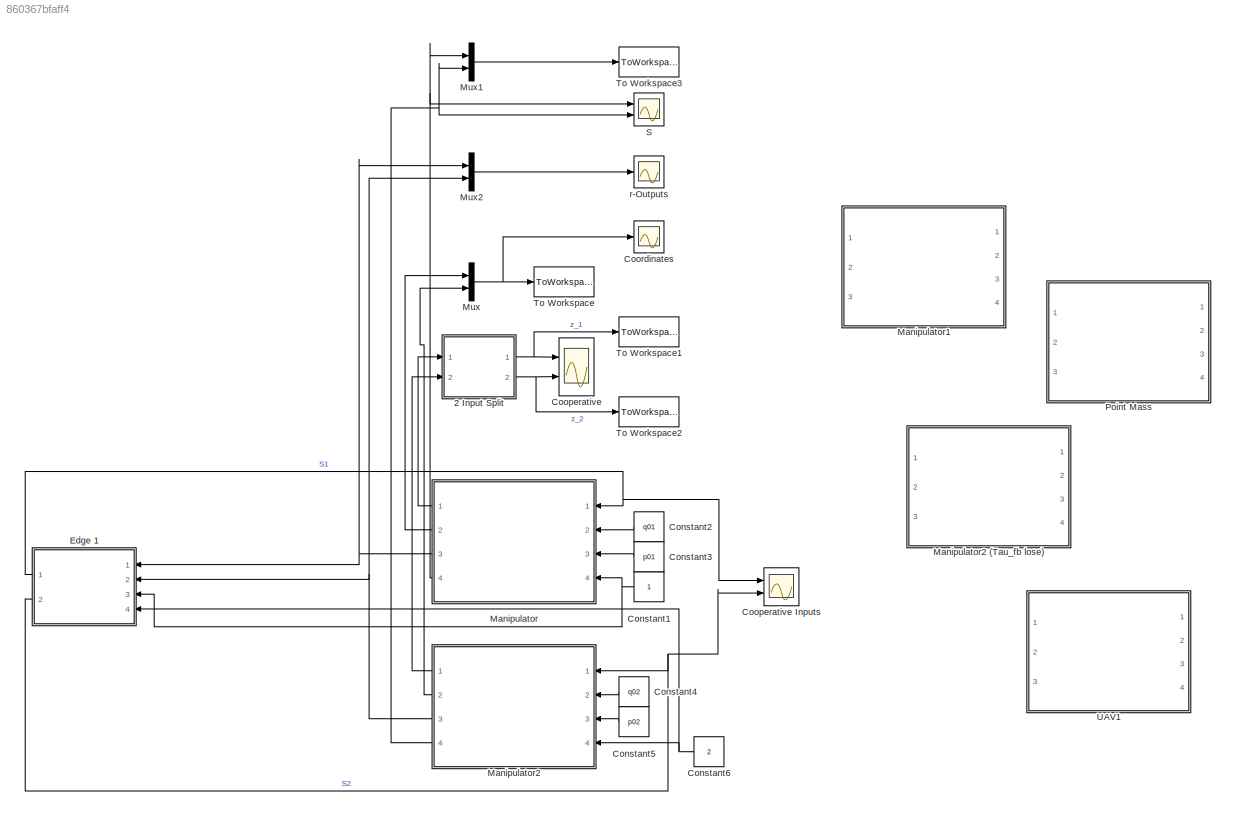
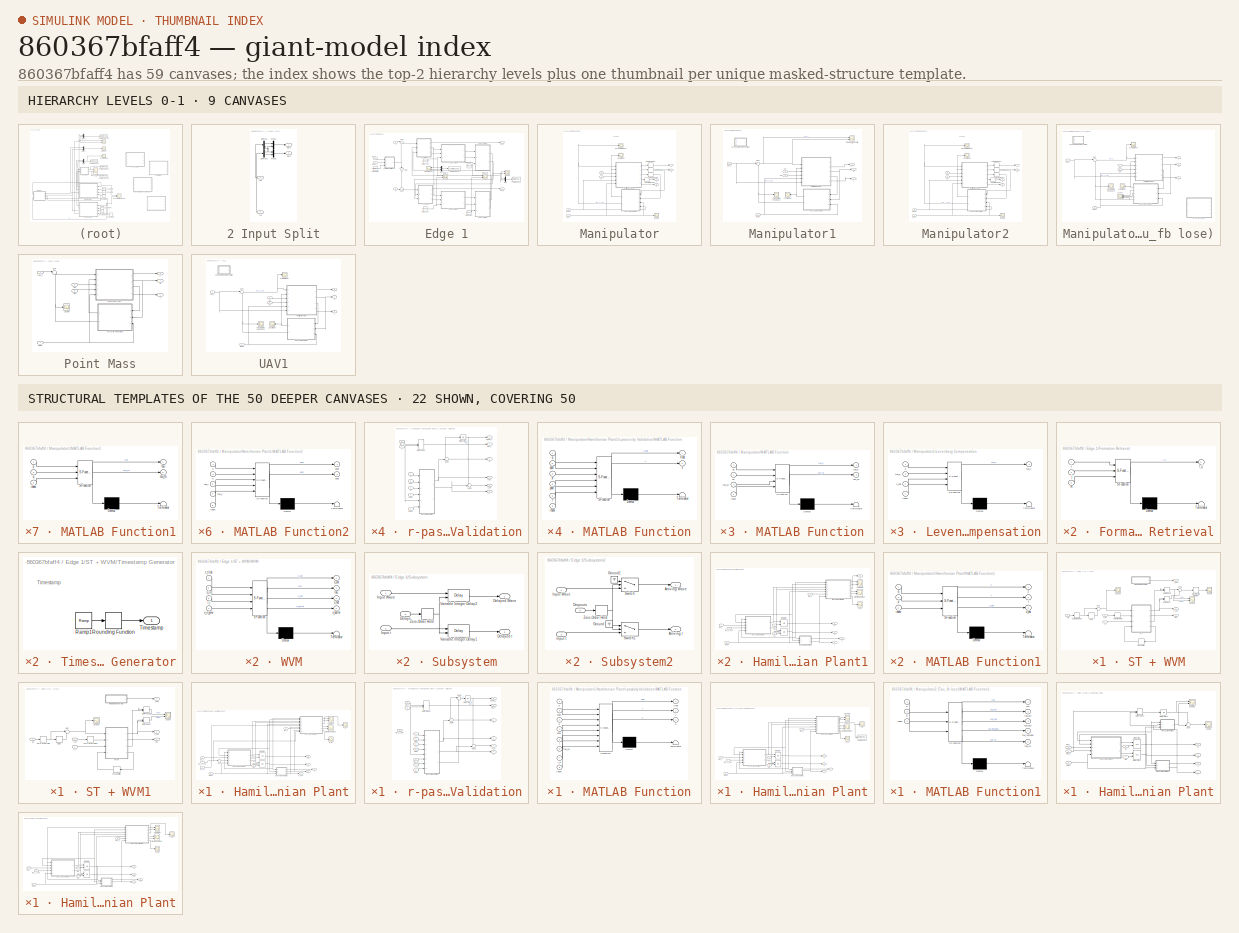
[diagram: thumbnail index - top-2 hierarchy levels (9 canvases) + 22 structural-template representatives of the remaining 50 canvases]
MODEL slx_860367bfaff4
KIND model
CONFIG AbsTol = auto
CONFIG EnableMultiTasking = off
CONFIG FixedStep = auto
CONFIG MaxStep = auto
CONFIG MinStep = auto
CONFIG RelTol = 1e-5
CONFIG SampleTimeConstraint = Unconstrained
CONFIG Solver = ode23tb
CONFIG SolverName = ode23tb
CONFIG StartTime = 0.0
CONFIG StopTime = 20
BLOCK [SubSystem] 2 Input Split
  Ports = [2, 2]
  RequestExecContextInheritance = off
BLOCK [Demux] 2 Input Split/Demux
  DisplayOption = bar
  Outputs = 2
  Ports = [1, 2]
BLOCK [Demux] 2 Input Split/Demux1
  DisplayOption = bar
  Outputs = 2
  Ports = [1, 2]
BLOCK [Inport] 2 Input Split/In1
  IconDisplay = Port number
BLOCK [Inport] 2 Input Split/In2
  IconDisplay = Port number
  Port = 2
BLOCK [Mux] 2 Input Split/Mux1
  DisplayOption = bar
  Inputs = 2
  Ports = [2, 1]
BLOCK [Mux] 2 Input Split/Mux3
  DisplayOption = bar
  Inputs = 2
  Ports = [2, 1]
BLOCK [Outport] 2 Input Split/Out1
  IconDisplay = Port number
BLOCK [Outport] 2 Input Split/Out2
  IconDisplay = Port number
  Port = 2
BLOCK [Constant] Constant1
BLOCK [Constant] Constant2
  Value = q01
BLOCK [Constant] Constant3
  Value = p01
BLOCK [Constant] Constant4
  Value = q02
BLOCK [Constant] Constant5
  Value = p02
BLOCK [Constant] Constant6
  Value = 2
BLOCK [Scope] Cooperative
  Floating = off
  NumInputPorts = 2
  Ports = [2]
  ScopeSpecificationString = Simulink.scopes.TimeScopeBlockCfg('CurrentConfiguration', extmgr.ConfigurationSet(extmgr.Configuration('Core','General UI',true),extmgr.Configuration('Core','Source UI',true),extmgr.Configuration('Sources','WiredSimulink',true,'DataLoggingVariableName','ScopeData1'),extmgr.Configuration('Visuals','Time Domain',true,'SerializedDisplays',{struct('MinYLimReal','-1.35219','MaxYLimReal','2.36969','YLab...<+2118ch>
BLOCK [Scope] Cooperative Inputs
  Floating = off
  NumInputPorts = 2
  Ports = [2]
  ScopeSpecificationString = Simulink.scopes.TimeScopeBlockCfg('CurrentConfiguration', extmgr.ConfigurationSet(extmgr.Configuration('Core','General UI',true),extmgr.Configuration('Core','Source UI',true),extmgr.Configuration('Sources','WiredSimulink',true,'DataLoggingVariableName','ScopeData2'),extmgr.Configuration('Visuals','Time Domain',true,'SerializedDisplays',{struct('MinYLimReal','-11.98986','MaxYLimReal','7.32164','YLa...<+2096ch>
BLOCK [Scope] Coordinates
  Floating = off
  NumInputPorts = 1
  Ports = [1]
  ScopeSpecificationString = Simulink.scopes.TimeScopeBlockCfg('CurrentConfiguration', extmgr.ConfigurationSet(extmgr.Configuration('Core','General UI',true),extmgr.Configuration('Core','Source UI',true),extmgr.Configuration('Sources','WiredSimulink',true,'DataLoggingVariableName','ScopeData2'),extmgr.Configuration('Visuals','Time Domain',true,'SerializedDisplays',{struct('MinYLimReal','-5.87545','MaxYLimReal','9.0007','YLabe...<+2036ch>
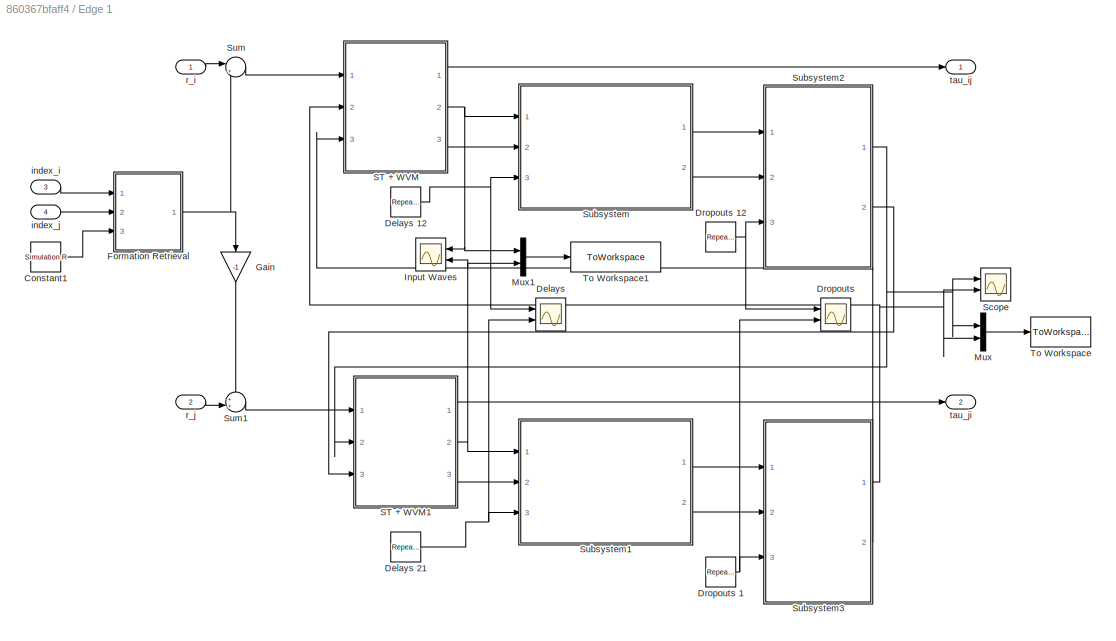
BLOCK [SubSystem] Edge 1
  Ports = [4, 2]
  RequestExecContextInheritance = off
BLOCK [Constant] Edge 1/Constant1
  Value = Simulation.R
BLOCK [Scope] Edge 1/Delays
  Floating = off
  NumInputPorts = 2
  Ports = [2]
  ScopeSpecificationString = Simulink.scopes.TimeScopeBlockCfg('CurrentConfiguration', extmgr.ConfigurationSet(extmgr.Configuration('Core','General UI',true),extmgr.Configuration('Core','Source UI',true),extmgr.Configuration('Sources','WiredSimulink',true,'DataLoggingVariableName','ScopeData1'),extmgr.Configuration('Visuals','Time Domain',true,'SerializedDisplays',{struct('MinYLimReal','9.00000','MaxYLimReal','11.00000','YLab...<+2115ch>
BLOCK [Reference] Edge 1/Delays 12  REF=simulink/Sources/Repeating
Sequence
  Ports = [0, 1]
  SourceBlock = simulink/Sources/Repeating\nSequence
  SourceProductBaseCode = SL
  SourceProductName = Simulink
  SourceType = Repeating table
BLOCK [Reference] Edge 1/Delays 21  REF=simulink/Sources/Repeating
Sequence
  Ports = [0, 1]
  SourceBlock = simulink/Sources/Repeating\nSequence
  SourceProductBaseCode = SL
  SourceProductName = Simulink
  SourceType = Repeating table
BLOCK [Scope] Edge 1/Dropouts
  Floating = off
  NumInputPorts = 2
  Ports = [2]
  ScopeSpecificationString = Simulink.scopes.TimeScopeBlockCfg('CurrentConfiguration', extmgr.ConfigurationSet(extmgr.Configuration('Core','General UI',true),extmgr.Configuration('Core','Source UI',true),extmgr.Configuration('Sources','WiredSimulink',true,'DataLoggingVariableName','ScopeData3'),extmgr.Configuration('Visuals','Time Domain',true,'SerializedDisplays',{struct('MinYLimReal','-0.125','MaxYLimReal','1.125','YLabelRe...<+2106ch>
BLOCK [Reference] Edge 1/Dropouts 1  REF=simulink/Sources/Repeating
Sequence
  Ports = [0, 1]
  SourceBlock = simulink/Sources/Repeating\nSequence
  SourceProductBaseCode = SL
  SourceProductName = Simulink
  SourceType = Repeating table
BLOCK [Reference] Edge 1/Dropouts 12  REF=simulink/Sources/Repeating
Sequence
  Ports = [0, 1]
  SourceBlock = simulink/Sources/Repeating\nSequence
  SourceProductBaseCode = SL
  SourceProductName = Simulink
  SourceType = Repeating table
BLOCK [SubSystem] Edge 1/Formation Retrieval
  ErrorFcn = Stateflow.Translate.translate
  PermitHierarchicalResolution = ExplicitOnly
  Ports = [3, 1]
  RequestExecContextInheritance = off
  SFBlockType = MATLAB Function
  TreatAsAtomicUnit = on
BLOCK [Demux] Edge 1/Formation Retrieval/ Demux 
  Outputs = 1
  Ports = [1, 1]
BLOCK [S-Function] Edge 1/Formation Retrieval/ SFunction 
  EnableBusSupport = on
  FunctionName = sf_sfun
  PortCounts = [3 2]
  Ports = [3, 2]
  SFcnIsStateOwnerBlock = off
  SFunctionDeploymentMode = off
  Tag = Stateflow S-Function Model_2Systems_Opt 11
BLOCK [Terminator] Edge 1/Formation Retrieval/ Terminator 
BLOCK [Inport] Edge 1/Formation Retrieval/R
  IconDisplay = Port number
  Port = 3
BLOCK [Inport] Edge 1/Formation Retrieval/i
  IconDisplay = Port number
BLOCK [Inport] Edge 1/Formation Retrieval/j
  IconDisplay = Port number
  Port = 2
BLOCK [Outport] Edge 1/Formation Retrieval/r_ij
  IconDisplay = Port number
BLOCK [Gain] Edge 1/Gain
  Gain = -1
  OutDataTypeStr = Inherit: Inherit via internal rule
  ParamDataTypeStr = Inherit: Inherit via internal rule
  SaturateOnIntegerOverflow = off
BLOCK [Scope] Edge 1/Input Waves
  Floating = off
  NumInputPorts = 2
  Ports = [2]
  ScopeSpecificationString = Simulink.scopes.TimeScopeBlockCfg('CurrentConfiguration', extmgr.ConfigurationSet(extmgr.Configuration('Core','General UI',true),extmgr.Configuration('Core','Source UI',true),extmgr.Configuration('Sources','WiredSimulink',true,'DataLoggingVariableName','ScopeData6'),extmgr.Configuration('Visuals','Time Domain',true,'SerializedDisplays',{struct('MinYLimReal','-0.82108','MaxYLimReal','9.50755','YLab...<+2091ch>
BLOCK [Mux] Edge 1/Mux
  DisplayOption = bar
  Inputs = 2
  Ports = [2, 1]
BLOCK [Mux] Edge 1/Mux1
  DisplayOption = bar
  Inputs = 2
  Ports = [2, 1]
BLOCK [SubSystem] Edge 1/ST + WVM
  Ports = [3, 3]
  RequestExecContextInheritance = off
  TreatAsAtomicUnit = on
BLOCK [Delay] Edge 1/ST + WVM/Delay
  DelayLength = 1
  InputPortMap = u0
  Ports = [1, 1]
  SampleTime = Ts
BLOCK [DiscreteIntegrator] Edge 1/ST + WVM/Discrete-Time Integrator
  ICPrevOutput = DiscIntNeverNeededParam
  ICPrevScaledInput = DiscIntNeverNeededParam
  InitialConditionSetting = Auto
  Ports = [1, 1]
  SampleTime = -1
BLOCK [DotProduct] Edge 1/ST + WVM/Dot Product
  OutDataTypeStr = Inherit: Inherit via internal rule
BLOCK [DotProduct] Edge 1/ST + WVM/Dot Product1
  OutDataTypeStr = Inherit: Inherit via internal rule
BLOCK [Scope] Edge 1/ST + WVM/Scope
  Floating = off
  NumInputPorts = 1
  Ports = [1]
  ScopeSpecificationString = Simulink.scopes.TimeScopeBlockCfg('CurrentConfiguration', extmgr.ConfigurationSet(extmgr.Configuration('Core','General UI',true),extmgr.Configuration('Core','Source UI',true),extmgr.Configuration('Sources','WiredSimulink',true,'DataLoggingVariableName','ScopeData12'),extmgr.Configuration('Visuals','Time Domain',true,'SerializedDisplays',{struct('MinYLimReal','-8.94198','MaxYLimReal','80.47784','YL...<+1459ch>
BLOCK [Scope] Edge 1/ST + WVM/Scope1
  Floating = off
  NumInputPorts = 1
  Ports = [1]
  ScopeSpecificationString = Simulink.scopes.TimeScopeBlockCfg('CurrentConfiguration', extmgr.ConfigurationSet(extmgr.Configuration('Core','General UI',true),extmgr.Configuration('Core','Source UI',true),extmgr.Configuration('Sources','WiredSimulink',true,'DataLoggingVariableName','ScopeData1'),extmgr.Configuration('Visuals','Time Domain',true,'SerializedDisplays',{struct('MinYLimReal','-1.00000','MaxYLimReal','1.00000','YLab...<+1391ch>
BLOCK [Scope] Edge 1/ST + WVM/Scope2
  Floating = off
  NumInputPorts = 2
  Ports = [2]
  ScopeSpecificationString = Simulink.scopes.TimeScopeBlockCfg('CurrentConfiguration', extmgr.ConfigurationSet(extmgr.Configuration('Core','General UI',true),extmgr.Configuration('Core','Source UI',true),extmgr.Configuration('Sources','WiredSimulink',true,'DataLoggingVariableName','ScopeData2'),extmgr.Configuration('Visuals','Time Domain',true,'SerializedDisplays',{struct('MinYLimReal','-8.98314','MaxYLimReal','80.84825','YLa...<+1448ch>
BLOCK [Sum] Edge 1/ST + WVM/Sum
  IconShape = round
  InputSameDT = off
  Inputs = |+-
  OutDataTypeStr = Inherit: Inherit via internal rule
  Ports = [2, 1]
  SaturateOnIntegerOverflow = off
BLOCK [Sum] Edge 1/ST + WVM/Sum1
  IconShape = round
  InputSameDT = off
  Inputs = |-+
  OutDataTypeStr = Inherit: Inherit via internal rule
  Ports = [2, 1]
  SaturateOnIntegerOverflow = off
BLOCK [SubSystem] Edge 1/ST + WVM/Timestamp Generator
  Ports = [0, 1]
  RequestExecContextInheritance = off
BLOCK [Reference] Edge 1/ST + WVM/Timestamp Generator/Ramp1  REF=simulink/Sources/Ramp
  Ports = [0, 1]
  SourceBlock = simulink/Sources/Ramp
  SourceProductBaseCode = SL
  SourceProductName = Simulink
  SourceType = Ramp
BLOCK [Rounding] Edge 1/ST + WVM/Timestamp Generator/Rounding Function
BLOCK [Outport] Edge 1/ST + WVM/Timestamp Generator/Timestamp
  IconDisplay = Port number
BLOCK [SubSystem] Edge 1/ST + WVM/WVM
  ErrorFcn = Stateflow.Translate.translate
  PermitHierarchicalResolution = ExplicitOnly
  Ports = [4, 4]
  RequestExecContextInheritance = off
  SFBlockType = MATLAB Function
  TreatAsAtomicUnit = on
BLOCK [Demux] Edge 1/ST + WVM/WVM/ Demux 
  Outputs = 1
  Ports = [1, 1]
BLOCK [S-Function] Edge 1/ST + WVM/WVM/ SFunction 
  EnableBusSupport = on
  FunctionName = sf_sfun
  Parameters = KL
  PortCounts = [4 5]
  Ports = [4, 5]
  SFcnIsStateOwnerBlock = off
  SFunctionDeploymentMode = off
  Tag = Stateflow S-Function Model_2Systems_Opt 30
BLOCK [Terminator] Edge 1/ST + WVM/WVM/ Terminator 
BLOCK [Inport] Edge 1/ST + WVM/WVM/r_i
  IconDisplay = Port number
  Port = 3
BLOCK [Outport] Edge 1/ST + WVM/WVM/s_buffer
  IconDisplay = Port number
  Port = 4
BLOCK [Outport] Edge 1/ST + WVM/WVM/s_hat
  IconDisplay = Port number
  Port = 3
BLOCK [Inport] Edge 1/ST + WVM/WVM/s_in
  IconDisplay = Port number
  Port = 2
BLOCK [Inport] Edge 1/ST + WVM/WVM/s_in_prev
  IconDisplay = Port number
  Port = 4
BLOCK [Outport] Edge 1/ST + WVM/WVM/s_out
  IconDisplay = Port number
BLOCK [Inport] Edge 1/ST + WVM/WVM/t_tilde
  IconDisplay = Port number
BLOCK [Outport] Edge 1/ST + WVM/WVM/tau
  IconDisplay = Port number
  Port = 2
BLOCK [Delay] Edge 1/ST + WVM/Wave Buffer
  DelayLength = 1
  InitialCondition = [0;0]
  InputPortMap = u0
  Ports = [1, 1]
  SampleTime = Ts
BLOCK [ZeroOrderHold] Edge 1/ST + WVM/Zero-Order Hold
  SampleTime = Ts
BLOCK [ZeroOrderHold] Edge 1/ST + WVM/Zero-Order Hold1
  SampleTime = Ts
BLOCK [Inport] Edge 1/ST + WVM/r_i
  IconDisplay = Port number
BLOCK [Inport] Edge 1/ST + WVM/s_in
  IconDisplay = Port number
  Port = 2
BLOCK [Outport] Edge 1/ST + WVM/s_out
  IconDisplay = Port number
  Port = 2
BLOCK [Inport] Edge 1/ST + WVM/t_in
  IconDisplay = Port number
  Port = 3
BLOCK [Outport] Edge 1/ST + WVM/t_out
  IconDisplay = Port number
  Port = 3
BLOCK [Outport] Edge 1/ST + WVM/tau
  IconDisplay = Port number
BLOCK [SubSystem] Edge 1/ST + WVM1
  Ports = [3, 3]
  RequestExecContextInheritance = off
  TreatAsAtomicUnit = on
BLOCK [Delay] Edge 1/ST + WVM1/Delay
  DelayLength = 1
  InputPortMap = u0
  Ports = [1, 1]
  SampleTime = Ts
BLOCK [DotProduct] Edge 1/ST + WVM1/Dot Product
  OutDataTypeStr = Inherit: Inherit via internal rule
BLOCK [DotProduct] Edge 1/ST + WVM1/Dot Product1
  OutDataTypeStr = Inherit: Inherit via internal rule
BLOCK [Scope] Edge 1/ST + WVM1/Scope
  Floating = off
  NumInputPorts = 2
  Ports = [2]
  ScopeSpecificationString = Simulink.scopes.TimeScopeBlockCfg('CurrentConfiguration', extmgr.ConfigurationSet(extmgr.Configuration('Core','General UI',true),extmgr.Configuration('Core','Source UI',true),extmgr.Configuration('Sources','WiredSimulink',true,'DataLoggingVariableName','ScopeData12'),extmgr.Configuration('Visuals','Time Domain',true,'SerializedDisplays',{struct('MinYLimReal','-2.88649','MaxYLimReal','25.97842','YL...<+1449ch>
BLOCK [Scope] Edge 1/ST + WVM1/Scope1
  Floating = off
  NumInputPorts = 1
  Ports = [1]
  ScopeSpecificationString = Simulink.scopes.TimeScopeBlockCfg('CurrentConfiguration', extmgr.ConfigurationSet(extmgr.Configuration('Core','General UI',true),extmgr.Configuration('Core','Source UI',true),extmgr.Configuration('Sources','WiredSimulink',true,'DataLoggingVariableName','ScopeData4'),extmgr.Configuration('Visuals','Time Domain',true,'SerializedDisplays',{struct('MinYLimReal','-219.00000','MaxYLimReal','221.00000','...<+1405ch>
BLOCK [Sum] Edge 1/ST + WVM1/Sum
  IconShape = round
  InputSameDT = off
  Inputs = |+-
  OutDataTypeStr = Inherit: Inherit via internal rule
  Ports = [2, 1]
  SaturateOnIntegerOverflow = off
BLOCK [SubSystem] Edge 1/ST + WVM1/Timestamp Generator
  Ports = [0, 1]
  RequestExecContextInheritance = off
BLOCK [Reference] Edge 1/ST + WVM1/Timestamp Generator/Ramp1  REF=simulink/Sources/Ramp
  Ports = [0, 1]
  SourceBlock = simulink/Sources/Ramp
  SourceProductBaseCode = SL
  SourceProductName = Simulink
  SourceType = Ramp
BLOCK [Rounding] Edge 1/ST + WVM1/Timestamp Generator/Rounding Function
BLOCK [Outport] Edge 1/ST + WVM1/Timestamp Generator/Timestamp
  IconDisplay = Port number
BLOCK [SubSystem] Edge 1/ST + WVM1/WVM
  ErrorFcn = Stateflow.Translate.translate
  PermitHierarchicalResolution = ExplicitOnly
  Ports = [4, 4]
  RequestExecContextInheritance = off
  SFBlockType = MATLAB Function
  TreatAsAtomicUnit = on
BLOCK [Demux] Edge 1/ST + WVM1/WVM/ Demux 
  Outputs = 1
  Ports = [1, 1]
BLOCK [S-Function] Edge 1/ST + WVM1/WVM/ SFunction 
  EnableBusSupport = on
  FunctionName = sf_sfun
  Parameters = KR
  PortCounts = [4 5]
  Ports = [4, 5]
  SFcnIsStateOwnerBlock = off
  SFunctionDeploymentMode = off
  Tag = Stateflow S-Function Model_2Systems_Opt 31
BLOCK [Terminator] Edge 1/ST + WVM1/WVM/ Terminator 
BLOCK [Inport] Edge 1/ST + WVM1/WVM/r_i
  IconDisplay = Port number
  Port = 3
BLOCK [Outport] Edge 1/ST + WVM1/WVM/s_buffer
  IconDisplay = Port number
  Port = 4
BLOCK [Outport] Edge 1/ST + WVM1/WVM/s_hat
  IconDisplay = Port number
  Port = 3
BLOCK [Inport] Edge 1/ST + WVM1/WVM/s_in
  IconDisplay = Port number
  Port = 2
BLOCK [Inport] Edge 1/ST + WVM1/WVM/s_in_prev
  IconDisplay = Port number
  Port = 4
BLOCK [Outport] Edge 1/ST + WVM1/WVM/s_out
  IconDisplay = Port number
BLOCK [Inport] Edge 1/ST + WVM1/WVM/t_tilde
  IconDisplay = Port number
BLOCK [Outport] Edge 1/ST + WVM1/WVM/tau
  IconDisplay = Port number
  Port = 2
BLOCK [Delay] Edge 1/ST + WVM1/Wave Buffer
  DelayLength = 1
  InitialCondition = [0;0]
  InputPortMap = u0
  Ports = [1, 1]
  SampleTime = Ts
BLOCK [ZeroOrderHold] Edge 1/ST + WVM1/Zero-Order Hold
  SampleTime = Ts
BLOCK [ZeroOrderHold] Edge 1/ST + WVM1/Zero-Order Hold1
  SampleTime = Ts
BLOCK [Inport] Edge 1/ST + WVM1/r_i
  IconDisplay = Port number
BLOCK [Inport] Edge 1/ST + WVM1/s_in
  IconDisplay = Port number
  Port = 2
BLOCK [Outport] Edge 1/ST + WVM1/s_out
  IconDisplay = Port number
  Port = 2
BLOCK [Inport] Edge 1/ST + WVM1/t_in
  IconDisplay = Port number
  Port = 3
BLOCK [Outport] Edge 1/ST + WVM1/t_out
  IconDisplay = Port number
  Port = 3
BLOCK [Outport] Edge 1/ST + WVM1/tau
  IconDisplay = Port number
BLOCK [Scope] Edge 1/Scope
  Floating = off
  NumInputPorts = 2
  Ports = [2]
  ScopeSpecificationString = Simulink.scopes.TimeScopeBlockCfg('CurrentConfiguration', extmgr.ConfigurationSet(extmgr.Configuration('Core','General UI',true),extmgr.Configuration('Core','Source UI',true),extmgr.Configuration('Sources','WiredSimulink',true,'DataLoggingVariableName','ScopeData5'),extmgr.Configuration('Visuals','Time Domain',true,'SerializedDisplays',{struct('MinYLimReal','-1.05934','MaxYLimReal','9.53402','YLab...<+2127ch>
BLOCK [SubSystem] Edge 1/Subsystem
  Ports = [3, 2]
  RequestExecContextInheritance = off
BLOCK [Outport] Edge 1/Subsystem/Delayed Wave
  IconDisplay = Port number
BLOCK [Outport] Edge 1/Subsystem/Delayed t
  IconDisplay = Port number
  Port = 2
BLOCK [Inport] Edge 1/Subsystem/Delays
  IconDisplay = Port number
  Port = 3
BLOCK [Inport] Edge 1/Subsystem/Input Wave
  IconDisplay = Port number
BLOCK [Inport] Edge 1/Subsystem/Input t
  IconDisplay = Port number
  Port = 2
BLOCK [Delay] Edge 1/Subsystem/Variable Integer Delay1
  DelayLengthSource = Input port
  InputPortMap = u0,p1
  Ports = [2, 1]
  PreventDirectFeedthrough = on
  SampleTime = Ts
BLOCK [Delay] Edge 1/Subsystem/Variable Integer Delay2
  DelayLengthSource = Input port
  InputPortMap = u0,p1
  Ports = [2, 1]
  PreventDirectFeedthrough = on
  SampleTime = Ts
BLOCK [ZeroOrderHold] Edge 1/Subsystem/Zero-Order Hold
  SampleTime = Ts
BLOCK [SubSystem] Edge 1/Subsystem1
  Ports = [3, 2]
  RequestExecContextInheritance = off
BLOCK [Outport] Edge 1/Subsystem1/Delayed Wave
  IconDisplay = Port number
BLOCK [Outport] Edge 1/Subsystem1/Delayed t
  IconDisplay = Port number
  Port = 2
BLOCK [Inport] Edge 1/Subsystem1/Delays
  IconDisplay = Port number
  Port = 3
BLOCK [Inport] Edge 1/Subsystem1/Input Wave
  IconDisplay = Port number
BLOCK [Inport] Edge 1/Subsystem1/Input t
  IconDisplay = Port number
  Port = 2
BLOCK [Delay] Edge 1/Subsystem1/Variable Integer Delay1
  DelayLengthSource = Input port
  InputPortMap = u0,p1
  Ports = [2, 1]
  PreventDirectFeedthrough = on
  SampleTime = Ts
BLOCK [Delay] Edge 1/Subsystem1/Variable Integer Delay2
  DelayLengthSource = Input port
  InputPortMap = u0,p1
  Ports = [2, 1]
  PreventDirectFeedthrough = on
  SampleTime = Ts
BLOCK [ZeroOrderHold] Edge 1/Subsystem1/Zero-Order Hold
  SampleTime = Ts
BLOCK [SubSystem] Edge 1/Subsystem2
  Ports = [3, 2]
  RequestExecContextInheritance = off
BLOCK [Outport] Edge 1/Subsystem2/Arriving Wave
  IconDisplay = Port number
BLOCK [Outport] Edge 1/Subsystem2/Arriving t
  IconDisplay = Port number
  Port = 2
BLOCK [Inport] Edge 1/Subsystem2/Dropouts
  IconDisplay = Port number
  Port = 3
BLOCK [Ground] Edge 1/Subsystem2/Ground
BLOCK [Ground] Edge 1/Subsystem2/Ground1
BLOCK [Inport] Edge 1/Subsystem2/Input Wave
  IconDisplay = Port number
BLOCK [Inport] Edge 1/Subsystem2/Input t
  IconDisplay = Port number
  Port = 2
BLOCK [Switch] Edge 1/Subsystem2/Switch
  Criteria = u2 > Threshold
  InputSameDT = off
  SaturateOnIntegerOverflow = off
BLOCK [Switch] Edge 1/Subsystem2/Switch1
  Criteria = u2 > Threshold
  InputSameDT = off
  SaturateOnIntegerOverflow = off
BLOCK [ZeroOrderHold] Edge 1/Subsystem2/Zero-Order Hold
  SampleTime = Ts
BLOCK [SubSystem] Edge 1/Subsystem3
  Ports = [3, 2]
  RequestExecContextInheritance = off
BLOCK [Outport] Edge 1/Subsystem3/Arriving Wave
  IconDisplay = Port number
BLOCK [Outport] Edge 1/Subsystem3/Arriving t
  IconDisplay = Port number
  Port = 2
BLOCK [Inport] Edge 1/Subsystem3/Dropouts
  IconDisplay = Port number
  Port = 3
BLOCK [Ground] Edge 1/Subsystem3/Ground1
BLOCK [Ground] Edge 1/Subsystem3/Ground2
BLOCK [Inport] Edge 1/Subsystem3/Input Wave
  IconDisplay = Port number
BLOCK [Inport] Edge 1/Subsystem3/Input t
  IconDisplay = Port number
  Port = 2
BLOCK [Switch] Edge 1/Subsystem3/Switch
  Criteria = u2 > Threshold
  InputSameDT = off
  SaturateOnIntegerOverflow = off
BLOCK [Switch] Edge 1/Subsystem3/Switch1
  Criteria = u2 > Threshold
  InputSameDT = off
  SaturateOnIntegerOverflow = off
BLOCK [ZeroOrderHold] Edge 1/Subsystem3/Zero-Order Hold
  SampleTime = Ts
BLOCK [Sum] Edge 1/Sum
  IconShape = round
  InputSameDT = off
  Inputs = |++
  OutDataTypeStr = Inherit: Inherit via internal rule
  Ports = [2, 1]
  SaturateOnIntegerOverflow = off
BLOCK [Sum] Edge 1/Sum1
  IconShape = round
  InputSameDT = off
  Inputs = ++|
  OutDataTypeStr = Inherit: Inherit via internal rule
  Ports = [2, 1]
  SaturateOnIntegerOverflow = off
BLOCK [ToWorkspace] Edge 1/To Workspace
  FixptAsFi = on
  MaxDataPoints = inf
  Ports = [1]
  SampleTime = Ts
  Save2DSignal = 3-D array (concatenate along third dimension)
  SaveFormat = Timeseries
  VariableName = Output_Waves
BLOCK [ToWorkspace] Edge 1/To Workspace1
  FixptAsFi = on
  MaxDataPoints = inf
  Ports = [1]
  SampleTime = Ts
  Save2DSignal = 3-D array (concatenate along third dimension)
  SaveFormat = Timeseries
  VariableName = Input_Waves
BLOCK [Inport] Edge 1/index_i
  IconDisplay = Port number
  Port = 3
BLOCK [Inport] Edge 1/index_j
  IconDisplay = Port number
  Port = 4
BLOCK [Inport] Edge 1/r_i
  IconDisplay = Port number
BLOCK [Inport] Edge 1/r_j
  IconDisplay = Port number
  Port = 2
BLOCK [Outport] Edge 1/tau_ij
  IconDisplay = Port number
BLOCK [Outport] Edge 1/tau_ji
  IconDisplay = Port number
  Port = 2
BLOCK [SubSystem] Manipulator
  Ports = [4, 4]
  RequestExecContextInheritance = off
BLOCK [Scope] Manipulator/Cooperative Input
  Floating = off
  NumInputPorts = 1
  Ports = [1]
  ScopeSpecificationString = Simulink.scopes.TimeScopeBlockCfg('CurrentConfiguration', extmgr.ConfigurationSet(extmgr.Configuration('Core','General UI',true),extmgr.Configuration('Core','Source UI',true),extmgr.Configuration('Sources','WiredSimulink',true,'DataLoggingVariableName','ScopeData1'),extmgr.Configuration('Visuals','Time Domain',true,'SerializedDisplays',{struct('MinYLimReal','-7.38843','MaxYLimReal','6.57084','YLab...<+1439ch>
BLOCK [SubSystem] Manipulator/Hamiltonian Plant1
  Ports = [6, 5]
  RequestExecContextInheritance = off
BLOCK [Scope] Manipulator/Hamiltonian Plant1/Integral Vdot + tau'r
  Floating = off
  NumInputPorts = 2
  Ports = [2]
  ScopeSpecificationString = Simulink.scopes.TimeScopeBlockCfg('CurrentConfiguration', extmgr.ConfigurationSet(extmgr.Configuration('Core','General UI',true),extmgr.Configuration('Core','Source UI',true),extmgr.Configuration('Sources','WiredSimulink',true,'DataLoggingVariableName','ScopeData5'),extmgr.Configuration('Visuals','Time Domain',true,'SerializedDisplays',{struct('MinYLimReal','-31.59653','MaxYLimReal','3.94405','YLa...<+1578ch>  <repeated x5 — deduplicated; at blocks: Integral Vdot + tau'r>
BLOCK [Integrator] Manipulator/Hamiltonian Plant1/Integrator
  InitialCondition = q01
  InitialConditionSource = external
  Ports = [2, 1]
BLOCK [Integrator] Manipulator/Hamiltonian Plant1/Integrator1
  InitialCondition = p02
  InitialConditionSource = external
  Ports = [2, 1]
BLOCK [SubSystem] Manipulator/Hamiltonian Plant1/MATLAB Function1
  ErrorFcn = Stateflow.Translate.translate
  PermitHierarchicalResolution = ExplicitOnly
  Ports = [3, 2]
  RequestExecContextInheritance = off
  SFBlockType = MATLAB Function
  TreatAsAtomicUnit = on
BLOCK [Demux] Manipulator/Hamiltonian Plant1/MATLAB Function1/ Demux 
  Outputs = 1
  Ports = [1, 1]
BLOCK [S-Function] Manipulator/Hamiltonian Plant1/MATLAB Function1/ SFunction 
  EnableBusSupport = on
  FunctionName = sf_sfun
  PortCounts = [3 3]
  Ports = [3, 3]
  SFcnIsStateOwnerBlock = off
  SFunctionDeploymentMode = off
  Tag = Stateflow S-Function Model_2Systems_Opt 22
BLOCK [Terminator] Manipulator/Hamiltonian Plant1/MATLAB Function1/ Terminator 
BLOCK [Inport] Manipulator/Hamiltonian Plant1/MATLAB Function1/index
  IconDisplay = Port number
  Port = 3
BLOCK [Inport] Manipulator/Hamiltonian Plant1/MATLAB Function1/p
  IconDisplay = Port number
  Port = 2
BLOCK [Inport] Manipulator/Hamiltonian Plant1/MATLAB Function1/q
  IconDisplay = Port number
BLOCK [Outport] Manipulator/Hamiltonian Plant1/MATLAB Function1/r
  IconDisplay = Port number
  Port = 2
BLOCK [Outport] Manipulator/Hamiltonian Plant1/MATLAB Function1/z
  IconDisplay = Port number
BLOCK [SubSystem] Manipulator/Hamiltonian Plant1/MATLAB Function2
  ErrorFcn = Stateflow.Translate.translate
  PermitHierarchicalResolution = ExplicitOnly
  Ports = [5, 2]
  RequestExecContextInheritance = off
  SFBlockType = MATLAB Function
  TreatAsAtomicUnit = on
BLOCK [Demux] Manipulator/Hamiltonian Plant1/MATLAB Function2/ Demux 
  Outputs = 1
  Ports = [1, 1]
BLOCK [S-Function] Manipulator/Hamiltonian Plant1/MATLAB Function2/ SFunction 
  EnableBusSupport = on
  FunctionName = sf_sfun
  PortCounts = [5 3]
  Ports = [5, 3]
  SFcnIsStateOwnerBlock = off
  SFunctionDeploymentMode = off
  Tag = Stateflow S-Function Model_2Systems_Opt 23
BLOCK [Terminator] Manipulator/Hamiltonian Plant1/MATLAB Function2/ Terminator 
BLOCK [Inport] Manipulator/Hamiltonian Plant1/MATLAB Function2/index
  IconDisplay = Port number
  Port = 5
BLOCK [Inport] Manipulator/Hamiltonian Plant1/MATLAB Function2/p
  IconDisplay = Port number
  Port = 2
BLOCK [Outport] Manipulator/Hamiltonian Plant1/MATLAB Function2/pdot
  IconDisplay = Port number
  Port = 2
BLOCK [Inport] Manipulator/Hamiltonian Plant1/MATLAB Function2/q
  IconDisplay = Port number
BLOCK [Outport] Manipulator/Hamiltonian Plant1/MATLAB Function2/qdot
  IconDisplay = Port number
BLOCK [Inport] Manipulator/Hamiltonian Plant1/MATLAB Function2/tau_c
  IconDisplay = Port number
  Port = 4
BLOCK [Inport] Manipulator/Hamiltonian Plant1/MATLAB Function2/tau_l
  IconDisplay = Port number
  Port = 3
BLOCK [Outport] Manipulator/Hamiltonian Plant1/S
  IconDisplay = Port number
  Port = 5
BLOCK [Scope] Manipulator/Hamiltonian Plant1/S_Int
  Floating = off
  NumInputPorts = 1
  Ports = [1]
  ScopeSpecificationString = Simulink.scopes.TimeScopeBlockCfg('CurrentConfiguration', extmgr.ConfigurationSet(extmgr.Configuration('Core','General UI',true),extmgr.Configuration('Core','Source UI',true),extmgr.Configuration('Sources','WiredSimulink',true,'DataLoggingVariableName','ScopeData1'),extmgr.Configuration('Visuals','Time Domain',true,'SerializedDisplays',{struct('MinYLimReal','-327.91107','MaxYLimReal','36.43456','Y...<+1511ch>  <repeated x4 — deduplicated; at blocks: S_Int>
BLOCK [Inport] Manipulator/Hamiltonian Plant1/index
  IconDisplay = Port number
  Port = 5
BLOCK [Outport] Manipulator/Hamiltonian Plant1/p
  IconDisplay = Port number
  Port = 3
BLOCK [Inport] Manipulator/Hamiltonian Plant1/p0
  IconDisplay = Port number
  Port = 4
BLOCK [Outport] Manipulator/Hamiltonian Plant1/q
  IconDisplay = Port number
  Port = 2
BLOCK [Inport] Manipulator/Hamiltonian Plant1/q0
  IconDisplay = Port number
  Port = 3
BLOCK [Outport] Manipulator/Hamiltonian Plant1/r
  IconDisplay = Port number
BLOCK [SubSystem] Manipulator/Hamiltonian Plant1/r-passivity Validation
  Ports = [7, 6]
  RequestExecContextInheritance = off
BLOCK [DotProduct] Manipulator/Hamiltonian Plant1/r-passivity Validation/Dot Product
  OutDataTypeStr = Inherit: Inherit via internal rule
BLOCK [Integrator] Manipulator/Hamiltonian Plant1/r-passivity Validation/Integrator2
  Ports = [1, 1]
BLOCK [SubSystem] Manipulator/Hamiltonian Plant1/r-passivity Validation/MATLAB Function
  ErrorFcn = Stateflow.Translate.translate
  PermitHierarchicalResolution = ExplicitOnly
  Ports = [6, 2]
  RequestExecContextInheritance = off
  SFBlockType = MATLAB Function
  TreatAsAtomicUnit = on
BLOCK [Demux] Manipulator/Hamiltonian Plant1/r-passivity Validation/MATLAB Function/ Demux 
  Outputs = 1
  Ports = [1, 1]
BLOCK [S-Function] Manipulator/Hamiltonian Plant1/r-passivity Validation/MATLAB Function/ SFunction 
  EnableBusSupport = on
  FunctionName = sf_sfun
  PortCounts = [6 3]
  Ports = [6, 3]
  SFcnIsStateOwnerBlock = off
  SFunctionDeploymentMode = off
  Tag = Stateflow S-Function Model_2Systems_Opt 24
BLOCK [Terminator] Manipulator/Hamiltonian Plant1/r-passivity Validation/MATLAB Function/ Terminator 
BLOCK [Outport] Manipulator/Hamiltonian Plant1/r-passivity Validation/MATLAB Function/V
  IconDisplay = Port number
  Port = 2
BLOCK [Outport] Manipulator/Hamiltonian Plant1/r-passivity Validation/MATLAB Function/Vdot
  IconDisplay = Port number
BLOCK [Inport] Manipulator/Hamiltonian Plant1/r-passivity Validation/MATLAB Function/index
  IconDisplay = Port number
  Port = 6
BLOCK [Inport] Manipulator/Hamiltonian Plant1/r-passivity Validation/MATLAB Function/p
  IconDisplay = Port number
  Port = 3
BLOCK [Inport] Manipulator/Hamiltonian Plant1/r-passivity Validation/MATLAB Function/pdot
  IconDisplay = Port number
  Port = 4
BLOCK [Inport] Manipulator/Hamiltonian Plant1/r-passivity Validation/MATLAB Function/q
  IconDisplay = Port number
BLOCK [Inport] Manipulator/Hamiltonian Plant1/r-passivity Validation/MATLAB Function/qdot
  IconDisplay = Port number
  Port = 2
BLOCK [Inport] Manipulator/Hamiltonian Plant1/r-passivity Validation/MATLAB Function/r
  IconDisplay = Port number
  Port = 5
BLOCK [Outport] Manipulator/Hamiltonian Plant1/r-passivity Validation/S
  IconDisplay = Port number
  Port = 3
BLOCK [Outport] Manipulator/Hamiltonian Plant1/r-passivity Validation/S_Int
  IconDisplay = Port number
  Port = 6
BLOCK [Sum] Manipulator/Hamiltonian Plant1/r-passivity Validation/Sum2
  IconShape = round
  InputSameDT = off
  Inputs = +-|
  OutDataTypeStr = Inherit: Inherit via internal rule
  Ports = [2, 1]
  SaturateOnIntegerOverflow = off
BLOCK [Sum] Manipulator/Hamiltonian Plant1/r-passivity Validation/Sum4
  IconShape = round
  InputSameDT = off
  Inputs = +-|
  OutDataTypeStr = Inherit: Inherit via internal rule
  Ports = [2, 1]
  SaturateOnIntegerOverflow = off
BLOCK [Outport] Manipulator/Hamiltonian Plant1/r-passivity Validation/V
  IconDisplay = Port number
  Port = 4
BLOCK [Inport] Manipulator/Hamiltonian Plant1/r-passivity Validation/index
  IconDisplay = Port number
  Port = 5
BLOCK [Outport] Manipulator/Hamiltonian Plant1/r-passivity Validation/int_tau_r
  IconDisplay = Port number
  Port = 5
BLOCK [Inport] Manipulator/Hamiltonian Plant1/r-passivity Validation/p
  IconDisplay = Port number
  Port = 2
BLOCK [Inport] Manipulator/Hamiltonian Plant1/r-passivity Validation/pdot
  IconDisplay = Port number
  Port = 4
BLOCK [Inport] Manipulator/Hamiltonian Plant1/r-passivity Validation/q
  IconDisplay = Port number
BLOCK [Inport] Manipulator/Hamiltonian Plant1/r-passivity Validation/qdot
  IconDisplay = Port number
  Port = 3
BLOCK [Inport] Manipulator/Hamiltonian Plant1/r-passivity Validation/r
  IconDisplay = Port number
  Port = 7
BLOCK [Inport] Manipulator/Hamiltonian Plant1/r-passivity Validation/tau_c
  IconDisplay = Port number
  Port = 6
BLOCK [Outport] Manipulator/Hamiltonian Plant1/r-passivity Validation/tau_r
  IconDisplay = Port number
  Port = 2
BLOCK [Outport] Manipulator/Hamiltonian Plant1/r-passivity Validation/vdot
  IconDisplay = Port number
BLOCK [Inport] Manipulator/Hamiltonian Plant1/tau_c
  IconDisplay = Port number
  Port = 6
BLOCK [Inport] Manipulator/Hamiltonian Plant1/tau_c_hat
  IconDisplay = Port number
BLOCK [Inport] Manipulator/Hamiltonian Plant1/tau_l
  IconDisplay = Port number
  Port = 2
BLOCK [Scope] Manipulator/Hamiltonian Plant1/vdot + tau'r
  Floating = off
  NumInputPorts = 2
  Ports = [2]
  ScopeSpecificationString = Simulink.scopes.TimeScopeBlockCfg('CurrentConfiguration', extmgr.ConfigurationSet(extmgr.Configuration('Core','General UI',true),extmgr.Configuration('Core','Source UI',true),extmgr.Configuration('Sources','WiredSimulink',true,'DataLoggingVariableName','ScopeData3'),extmgr.Configuration('Visuals','Time Domain',true,'SerializedDisplays',{struct('MinYLimReal','-163.17397','MaxYLimReal','27.52284','Y...<+1541ch>  <repeated x5 — deduplicated; at blocks: vdot + tau'r>
BLOCK [Outport] Manipulator/Hamiltonian Plant1/z
  IconDisplay = Port number
  Port = 4
BLOCK [Scope] Manipulator/Local Input
  Floating = off
  NumInputPorts = 1
  Ports = [1]
  ScopeSpecificationString = Simulink.scopes.TimeScopeBlockCfg('CurrentConfiguration', extmgr.ConfigurationSet(extmgr.Configuration('Core','General UI',true),extmgr.Configuration('Core','Source UI',true),extmgr.Configuration('Sources','WiredSimulink',true,'DataLoggingVariableName','ScopeData2'),extmgr.Configuration('Visuals','Time Domain',true,'SerializedDisplays',{struct('MinYLimReal','-73.31509','MaxYLimReal','113.12199','Y...<+1543ch>
BLOCK [SubSystem] Manipulator/MATLAB Function
  ErrorFcn = Stateflow.Translate.translate
  PermitHierarchicalResolution = ExplicitOnly
  Ports = [4, 2]
  RequestExecContextInheritance = off
  SFBlockType = MATLAB Function
  TreatAsAtomicUnit = on
BLOCK [Demux] Manipulator/MATLAB Function/ Demux 
  Outputs = 1
  Ports = [1, 1]
BLOCK [S-Function] Manipulator/MATLAB Function/ SFunction 
  EnableBusSupport = on
  FunctionName = sf_sfun
  Parameters = Ts
  PortCounts = [4 3]
  Ports = [4, 3]
  SFcnIsStateOwnerBlock = off
  SFunctionDeploymentMode = off
  Tag = Stateflow S-Function Model_2Systems_Opt 26
BLOCK [Terminator] Manipulator/MATLAB Function/ Terminator 
BLOCK [Inport] Manipulator/MATLAB Function/index
  IconDisplay = Port number
  Port = 4
BLOCK [Inport] Manipulator/MATLAB Function/pk
  IconDisplay = Port number
  Port = 2
BLOCK [Inport] Manipulator/MATLAB Function/qk
  IconDisplay = Port number
BLOCK [Inport] Manipulator/MATLAB Function/tau_ck
  IconDisplay = Port number
  Port = 3
BLOCK [Outport] Manipulator/MATLAB Function/tau_fb
  IconDisplay = Port number
  Port = 2
BLOCK [Outport] Manipulator/MATLAB Function/tau_k
  IconDisplay = Port number
BLOCK [Outport] Manipulator/S
  IconDisplay = Port number
  Port = 4
BLOCK [Scope] Manipulator/Scope
  Floating = off
  NumInputPorts = 1
  Ports = [1]
  ScopeSpecificationString = Simulink.scopes.TimeScopeBlockCfg('CurrentConfiguration', extmgr.ConfigurationSet(extmgr.Configuration('Core','General UI',true),extmgr.Configuration('Core','Source UI',true),extmgr.Configuration('Sources','WiredSimulink',true,'DataLoggingVariableName','ScopeData1'),extmgr.Configuration('Visuals','Time Domain',true,'SerializedDisplays',{struct('MinYLimReal','-7.38843','MaxYLimReal','6.57084','YLab...<+1402ch>
BLOCK [ZeroOrderHold] Manipulator/Zero-Order Hold1
  SampleTime = Ts
BLOCK [ZeroOrderHold] Manipulator/Zero-Order Hold2
  SampleTime = Ts
BLOCK [ZeroOrderHold] Manipulator/Zero-Order Hold4
  SampleTime = Ts
BLOCK [ZeroOrderHold] Manipulator/Zero-Order Hold5
  SampleTime = Ts
BLOCK [Inport] Manipulator/index
  IconDisplay = Port number
  Port = 4
BLOCK [Inport] Manipulator/p0
  IconDisplay = Port number
  Port = 3
BLOCK [Outport] Manipulator/q
  IconDisplay = Port number
  Port = 2
BLOCK [Inport] Manipulator/q0
  IconDisplay = Port number
  Port = 2
BLOCK [Outport] Manipulator/r
  IconDisplay = Port number
  Port = 3
BLOCK [Inport] Manipulator/tau_c
  IconDisplay = Port number
BLOCK [Outport] Manipulator/z
  IconDisplay = Port number
BLOCK [SubSystem] Manipulator1
  Commented = on
  Ports = [4, 3]
  RequestExecContextInheritance = off
BLOCK [SubSystem] Manipulator1/Hamiltonian Plant
  Ports = [7, 5]
  RequestExecContextInheritance = off
BLOCK [Scope] Manipulator1/Hamiltonian Plant/Integral Vdot + tau'r
  Floating = off
  NumInputPorts = 2
  Ports = [2]
BLOCK [Integrator] Manipulator1/Hamiltonian Plant/Integrator
  InitialCondition = q01
  InitialConditionSource = external
  Ports = [2, 1]
BLOCK [Integrator] Manipulator1/Hamiltonian Plant/Integrator1
  InitialCondition = p02
  InitialConditionSource = external
  Ports = [2, 1]
BLOCK [SubSystem] Manipulator1/Hamiltonian Plant/MATLAB Function1
  ErrorFcn = Stateflow.Translate.translate
  PermitHierarchicalResolution = ExplicitOnly
  Ports = [3, 3]
  RequestExecContextInheritance = off
  SFBlockType = MATLAB Function
  TreatAsAtomicUnit = on
BLOCK [Demux] Manipulator1/Hamiltonian Plant/MATLAB Function1/ Demux 
  Outputs = 1
  Ports = [1, 1]
BLOCK [S-Function] Manipulator1/Hamiltonian Plant/MATLAB Function1/ SFunction 
  EnableBusSupport = on
  FunctionName = sf_sfun
  PortCounts = [3 4]
  Ports = [3, 4]
  SFcnIsStateOwnerBlock = off
  SFunctionDeploymentMode = off
  Tag = Stateflow S-Function Model_2Systems_Opt 7
BLOCK [Terminator] Manipulator1/Hamiltonian Plant/MATLAB Function1/ Terminator 
BLOCK [Inport] Manipulator1/Hamiltonian Plant/MATLAB Function1/index
  IconDisplay = Port number
  Port = 3
BLOCK [Inport] Manipulator1/Hamiltonian Plant/MATLAB Function1/p
  IconDisplay = Port number
  Port = 2
BLOCK [Inport] Manipulator1/Hamiltonian Plant/MATLAB Function1/q
  IconDisplay = Port number
BLOCK [Outport] Manipulator1/Hamiltonian Plant/MATLAB Function1/r
  IconDisplay = Port number
  Port = 2
BLOCK [Outport] Manipulator1/Hamiltonian Plant/MATLAB Function1/z
  IconDisplay = Port number
BLOCK [Outport] Manipulator1/Hamiltonian Plant/MATLAB Function1/z_dot
  IconDisplay = Port number
  Port = 3
BLOCK [SubSystem] Manipulator1/Hamiltonian Plant/MATLAB Function2
  ErrorFcn = Stateflow.Translate.translate
  PermitHierarchicalResolution = ExplicitOnly
  Ports = [5, 2]
  RequestExecContextInheritance = off
  SFBlockType = MATLAB Function
  TreatAsAtomicUnit = on
BLOCK [Demux] Manipulator1/Hamiltonian Plant/MATLAB Function2/ Demux 
  Outputs = 1
  Ports = [1, 1]
BLOCK [S-Function] Manipulator1/Hamiltonian Plant/MATLAB Function2/ SFunction 
  EnableBusSupport = on
  FunctionName = sf_sfun
  PortCounts = [5 3]
  Ports = [5, 3]
  SFcnIsStateOwnerBlock = off
  SFunctionDeploymentMode = off
  Tag = Stateflow S-Function Model_2Systems_Opt 8
BLOCK [Terminator] Manipulator1/Hamiltonian Plant/MATLAB Function2/ Terminator 
BLOCK [Inport] Manipulator1/Hamiltonian Plant/MATLAB Function2/index
  IconDisplay = Port number
  Port = 5
BLOCK [Inport] Manipulator1/Hamiltonian Plant/MATLAB Function2/p
  IconDisplay = Port number
  Port = 2
BLOCK [Outport] Manipulator1/Hamiltonian Plant/MATLAB Function2/pdot
  IconDisplay = Port number
  Port = 2
BLOCK [Inport] Manipulator1/Hamiltonian Plant/MATLAB Function2/q
  IconDisplay = Port number
BLOCK [Outport] Manipulator1/Hamiltonian Plant/MATLAB Function2/qdot
  IconDisplay = Port number
BLOCK [Inport] Manipulator1/Hamiltonian Plant/MATLAB Function2/tau_c
  IconDisplay = Port number
  Port = 4
BLOCK [Inport] Manipulator1/Hamiltonian Plant/MATLAB Function2/tau_l
  IconDisplay = Port number
  Port = 3
BLOCK [Scope] Manipulator1/Hamiltonian Plant/S
  Floating = off
  NumInputPorts = 1
  Ports = [1]
  ScopeSpecificationString = Simulink.scopes.TimeScopeBlockCfg('CurrentConfiguration', extmgr.ConfigurationSet(extmgr.Configuration('Core','General UI',true),extmgr.Configuration('Core','Source UI',true),extmgr.Configuration('Sources','WiredSimulink',true,'DataLoggingVariableName','ScopeData4'),extmgr.Configuration('Visuals','Time Domain',true,'SerializedDisplays',{struct('MinYLimReal','-5.97699','MaxYLimReal','11.50288','YLa...<+1479ch>
BLOCK [Scope] Manipulator1/Hamiltonian Plant/S_Int
  Floating = off
  NumInputPorts = 1
  Ports = [1]
  ScopeSpecificationString = Simulink.scopes.TimeScopeBlockCfg('CurrentConfiguration', extmgr.ConfigurationSet(extmgr.Configuration('Core','General UI',true),extmgr.Configuration('Core','Source UI',true),extmgr.Configuration('Sources','WiredSimulink',true,'DataLoggingVariableName','ScopeData1'),extmgr.Configuration('Visuals','Time Domain',true,'SerializedDisplays',{struct('MinYLimReal','-327.91107','MaxYLimReal','36.43456','Y...<+1487ch>
BLOCK [Sum] Manipulator1/Hamiltonian Plant/Sum1
  IconShape = round
  InputSameDT = off
  Inputs = |++
  OutDataTypeStr = Inherit: Inherit via internal rule
  Ports = [2, 1]
  SaturateOnIntegerOverflow = off
BLOCK [Inport] Manipulator1/Hamiltonian Plant/index
  IconDisplay = Port number
  Port = 6
BLOCK [Outport] Manipulator1/Hamiltonian Plant/p
  IconDisplay = Port number
  Port = 4
BLOCK [Inport] Manipulator1/Hamiltonian Plant/p0
  IconDisplay = Port number
  Port = 5
BLOCK [Outport] Manipulator1/Hamiltonian Plant/q
  IconDisplay = Port number
  Port = 3
BLOCK [Inport] Manipulator1/Hamiltonian Plant/q0
  IconDisplay = Port number
  Port = 4
BLOCK [Outport] Manipulator1/Hamiltonian Plant/r
  IconDisplay = Port number
  Port = 2
BLOCK [SubSystem] Manipulator1/Hamiltonian Plant/r-passivity Validation
  Ports = [10, 6]
  RequestExecContextInheritance = off
BLOCK [DotProduct] Manipulator1/Hamiltonian Plant/r-passivity Validation/Dot Product
  OutDataTypeStr = Inherit: Inherit via internal rule
BLOCK [Integrator] Manipulator1/Hamiltonian Plant/r-passivity Validation/Integrator2
  Ports = [1, 1]
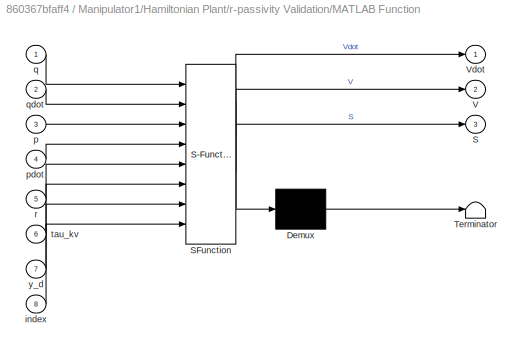
BLOCK [SubSystem] Manipulator1/Hamiltonian Plant/r-passivity Validation/MATLAB Function
  ErrorFcn = Stateflow.Translate.translate
  PermitHierarchicalResolution = ExplicitOnly
  Ports = [8, 3]
  RequestExecContextInheritance = off
  SFBlockType = MATLAB Function
  TreatAsAtomicUnit = on
BLOCK [Demux] Manipulator1/Hamiltonian Plant/r-passivity Validation/MATLAB Function/ Demux 
  Outputs = 1
  Ports = [1, 1]
BLOCK [S-Function] Manipulator1/Hamiltonian Plant/r-passivity Validation/MATLAB Function/ SFunction 
  EnableBusSupport = on
  FunctionName = sf_sfun
  Parameters = Kv,Vr0
  PortCounts = [8 4]
  Ports = [8, 4]
  SFcnIsStateOwnerBlock = off
  SFunctionDeploymentMode = off
  Tag = Stateflow S-Function Model_2Systems_Opt 9
BLOCK [Terminator] Manipulator1/Hamiltonian Plant/r-passivity Validation/MATLAB Function/ Terminator 
BLOCK [Outport] Manipulator1/Hamiltonian Plant/r-passivity Validation/MATLAB Function/S
  IconDisplay = Port number
  Port = 3
BLOCK [Outport] Manipulator1/Hamiltonian Plant/r-passivity Validation/MATLAB Function/V
  IconDisplay = Port number
  Port = 2
BLOCK [Outport] Manipulator1/Hamiltonian Plant/r-passivity Validation/MATLAB Function/Vdot
  IconDisplay = Port number
BLOCK [Inport] Manipulator1/Hamiltonian Plant/r-passivity Validation/MATLAB Function/index
  IconDisplay = Port number
  Port = 8
BLOCK [Inport] Manipulator1/Hamiltonian Plant/r-passivity Validation/MATLAB Function/p
  IconDisplay = Port number
  Port = 3
BLOCK [Inport] Manipulator1/Hamiltonian Plant/r-passivity Validation/MATLAB Function/pdot
  IconDisplay = Port number
  Port = 4
BLOCK [Inport] Manipulator1/Hamiltonian Plant/r-passivity Validation/MATLAB Function/q
  IconDisplay = Port number
BLOCK [Inport] Manipulator1/Hamiltonian Plant/r-passivity Validation/MATLAB Function/qdot
  IconDisplay = Port number
  Port = 2
BLOCK [Inport] Manipulator1/Hamiltonian Plant/r-passivity Validation/MATLAB Function/r
  IconDisplay = Port number
  Port = 5
BLOCK [Inport] Manipulator1/Hamiltonian Plant/r-passivity Validation/MATLAB Function/tau_kv
  IconDisplay = Port number
  Port = 6
BLOCK [Inport] Manipulator1/Hamiltonian Plant/r-passivity Validation/MATLAB Function/y_d
  IconDisplay = Port number
  Port = 7
BLOCK [Outport] Manipulator1/Hamiltonian Plant/r-passivity Validation/S
  IconDisplay = Port number
  Port = 3
BLOCK [Outport] Manipulator1/Hamiltonian Plant/r-passivity Validation/S_Int
  IconDisplay = Port number
  Port = 6
BLOCK [Sum] Manipulator1/Hamiltonian Plant/r-passivity Validation/Sum2
  IconShape = round
  InputSameDT = off
  Inputs = +-|
  OutDataTypeStr = Inherit: Inherit via internal rule
  Ports = [2, 1]
  SaturateOnIntegerOverflow = off
BLOCK [Sum] Manipulator1/Hamiltonian Plant/r-passivity Validation/Sum3
  IconShape = round
  InputSameDT = off
  Inputs = |+-
  OutDataTypeStr = Inherit: Inherit via internal rule
  Ports = [2, 1]
  SaturateOnIntegerOverflow = off
BLOCK [Sum] Manipulator1/Hamiltonian Plant/r-passivity Validation/Sum4
  IconShape = round
  InputSameDT = off
  Inputs = +-|
  OutDataTypeStr = Inherit: Inherit via internal rule
  Ports = [2, 1]
  SaturateOnIntegerOverflow = off
BLOCK [Outport] Manipulator1/Hamiltonian Plant/r-passivity Validation/V
  IconDisplay = Port number
  Port = 4
BLOCK [Inport] Manipulator1/Hamiltonian Plant/r-passivity Validation/index
  IconDisplay = Port number
  Port = 5
BLOCK [Outport] Manipulator1/Hamiltonian Plant/r-passivity Validation/int_tau_r
  IconDisplay = Port number
  Port = 5
BLOCK [Inport] Manipulator1/Hamiltonian Plant/r-passivity Validation/p
  IconDisplay = Port number
  Port = 2
BLOCK [Inport] Manipulator1/Hamiltonian Plant/r-passivity Validation/pdot
  IconDisplay = Port number
  Port = 4
BLOCK [Inport] Manipulator1/Hamiltonian Plant/r-passivity Validation/q
  IconDisplay = Port number
BLOCK [Inport] Manipulator1/Hamiltonian Plant/r-passivity Validation/qdot
  IconDisplay = Port number
  Port = 3
BLOCK [Inport] Manipulator1/Hamiltonian Plant/r-passivity Validation/r
  IconDisplay = Port number
  Port = 9
BLOCK [Inport] Manipulator1/Hamiltonian Plant/r-passivity Validation/tau_Kv
  IconDisplay = Port number
  Port = 6
BLOCK [Inport] Manipulator1/Hamiltonian Plant/r-passivity Validation/tau_c
  IconDisplay = Port number
  Port = 8
BLOCK [Inport] Manipulator1/Hamiltonian Plant/r-passivity Validation/tau_c_hat
  IconDisplay = Port number
  Port = 10
BLOCK [Outport] Manipulator1/Hamiltonian Plant/r-passivity Validation/tau_r
  IconDisplay = Port number
  Port = 2
BLOCK [Outport] Manipulator1/Hamiltonian Plant/r-passivity Validation/vdot
  IconDisplay = Port number
BLOCK [Inport] Manipulator1/Hamiltonian Plant/r-passivity Validation/y_d
  IconDisplay = Port number
  Port = 7
BLOCK [Inport] Manipulator1/Hamiltonian Plant/tau_Kv
  IconDisplay = Port number
BLOCK [Inport] Manipulator1/Hamiltonian Plant/tau_c
  IconDisplay = Port number
  Port = 7
BLOCK [Inport] Manipulator1/Hamiltonian Plant/tau_c_hat
  IconDisplay = Port number
  Port = 2
BLOCK [Inport] Manipulator1/Hamiltonian Plant/tau_l
  IconDisplay = Port number
  Port = 3
BLOCK [Scope] Manipulator1/Hamiltonian Plant/vdot + tau'r
  Floating = off
  NumInputPorts = 2
  Ports = [2]
BLOCK [Outport] Manipulator1/Hamiltonian Plant/z
  IconDisplay = Port number
  Port = 5
BLOCK [Outport] Manipulator1/Hamiltonian Plant/z_dot
  IconDisplay = Port number
BLOCK [Scope] Manipulator1/Input Compensation
  Floating = off
  NumInputPorts = 2
  Ports = [2]
  ScopeSpecificationString = Simulink.scopes.TimeScopeBlockCfg('CurrentConfiguration', extmgr.ConfigurationSet(extmgr.Configuration('Core','General UI',true),extmgr.Configuration('Core','Source UI',true),extmgr.Configuration('Sources','WiredSimulink',true,'DataLoggingVariableName','ScopeData1'),extmgr.Configuration('Visuals','Time Domain',true,'SerializedDisplays',{struct('MinYLimReal','-0.07525','MaxYLimReal','23.89324','YLa...<+1531ch>
BLOCK [SubSystem] Manipulator1/Levenberg Compensation
  Commented = on
  ErrorFcn = Stateflow.Translate.translate
  PermitHierarchicalResolution = ExplicitOnly
  Ports = [4, 1]
  RequestExecContextInheritance = off
  SFBlockType = MATLAB Function
  TreatAsAtomicUnit = on
BLOCK [Demux] Manipulator1/Levenberg Compensation/ Demux 
  Outputs = 1
  Ports = [1, 1]
BLOCK [S-Function] Manipulator1/Levenberg Compensation/ SFunction 
  EnableBusSupport = on
  FunctionName = sf_sfun
  PortCounts = [4 2]
  Ports = [4, 2]
  SFcnIsStateOwnerBlock = off
  SFunctionDeploymentMode = off
  Tag = Stateflow S-Function Model_2Systems_Opt 10
BLOCK [Terminator] Manipulator1/Levenberg Compensation/ Terminator 
BLOCK [Inport] Manipulator1/Levenberg Compensation/index
  IconDisplay = Port number
  Port = 4
BLOCK [Inport] Manipulator1/Levenberg Compensation/q
  IconDisplay = Port number
BLOCK [Outport] Manipulator1/Levenberg Compensation/tau_c
  IconDisplay = Port number
BLOCK [Inport] Manipulator1/Levenberg Compensation/tau_k
  IconDisplay = Port number
  Port = 2
BLOCK [Inport] Manipulator1/Levenberg Compensation/z_dot
  IconDisplay = Port number
  Port = 3
BLOCK [Scope] Manipulator1/Local Input
  Floating = off
  NumInputPorts = 1
  Ports = [1]
  ScopeSpecificationString = Simulink.scopes.TimeScopeBlockCfg('CurrentConfiguration', extmgr.ConfigurationSet(extmgr.Configuration('Core','General UI',true),extmgr.Configuration('Core','Source UI',true),extmgr.Configuration('Sources','WiredSimulink',true,'DataLoggingVariableName','ScopeData1'),extmgr.Configuration('Visuals','Time Domain',true,'SerializedDisplays',{struct('MinYLimReal','-2.28794','MaxYLimReal','20.59146','YLa...<+1489ch>
BLOCK [SubSystem] Manipulator1/MATLAB Function1
  ErrorFcn = Stateflow.Translate.translate
  PermitHierarchicalResolution = ExplicitOnly
  Ports = [3, 2]
  RequestExecContextInheritance = off
  SFBlockType = MATLAB Function
  TreatAsAtomicUnit = on
BLOCK [Demux] Manipulator1/MATLAB Function1/ Demux 
  Outputs = 1
  Ports = [1, 1]
BLOCK [S-Function] Manipulator1/MATLAB Function1/ SFunction 
  EnableBusSupport = on
  FunctionName = sf_sfun
  PortCounts = [3 3]
  Ports = [3, 3]
  SFcnIsStateOwnerBlock = off
  SFunctionDeploymentMode = off
  Tag = Stateflow S-Function Model_2Systems_Opt 15
BLOCK [Terminator] Manipulator1/MATLAB Function1/ Terminator 
BLOCK [Inport] Manipulator1/MATLAB Function1/index
  IconDisplay = Port number
  Port = 3
BLOCK [Inport] Manipulator1/MATLAB Function1/p
  IconDisplay = Port number
BLOCK [Inport] Manipulator1/MATLAB Function1/q
  IconDisplay = Port number
  Port = 2
BLOCK [Outport] Manipulator1/MATLAB Function1/tau
  IconDisplay = Port number
BLOCK [Outport] Manipulator1/MATLAB Function1/tau_fb
  IconDisplay = Port number
  Port = 2
BLOCK [Scope] Manipulator1/Passivating Feedback
  Floating = off
  NumInputPorts = 1
  Ports = [1]
  ScopeSpecificationString = Simulink.scopes.TimeScopeBlockCfg('CurrentConfiguration', extmgr.ConfigurationSet(extmgr.Configuration('Core','General UI',true),extmgr.Configuration('Core','Source UI',true),extmgr.Configuration('Sources','WiredSimulink',true,'DataLoggingVariableName','ScopeData1'),extmgr.Configuration('Visuals','Time Domain',true,'SerializedDisplays',{struct('MinYLimReal','-0.20285','MaxYLimReal','1.82564','YLab...<+1441ch>
BLOCK [Sum] Manipulator1/Sum
  IconShape = round
  InputSameDT = off
  Inputs = |++
  OutDataTypeStr = Inherit: Inherit via internal rule
  Ports = [2, 1]
  SaturateOnIntegerOverflow = off
BLOCK [Inport] Manipulator1/index
  IconDisplay = Port number
  Port = 4
BLOCK [Inport] Manipulator1/p0
  IconDisplay = Port number
  Port = 3
BLOCK [Outport] Manipulator1/q
  IconDisplay = Port number
  Port = 2
BLOCK [Inport] Manipulator1/q0
  IconDisplay = Port number
  Port = 2
BLOCK [Outport] Manipulator1/r
  IconDisplay = Port number
  Port = 3
BLOCK [Inport] Manipulator1/tau_c
  IconDisplay = Port number
BLOCK [Outport] Manipulator1/z
  IconDisplay = Port number
BLOCK [SubSystem] Manipulator2
  Ports = [4, 4]
  RequestExecContextInheritance = off
BLOCK [SubSystem] Manipulator2 (Tau_fb lose)
  Commented = on
  Ports = [4, 3]
  RequestExecContextInheritance = off
BLOCK [SubSystem] Manipulator2 (Tau_fb lose)/Hamiltonian Plant
  Ports = [6, 4]
  RequestExecContextInheritance = off
BLOCK [Scope] Manipulator2 (Tau_fb lose)/Hamiltonian Plant/Integral Vdot + tau'r
  Floating = off
  NumInputPorts = 2
  Ports = [2]
BLOCK [Integrator] Manipulator2 (Tau_fb lose)/Hamiltonian Plant/Integrator
  InitialCondition = q01
  InitialConditionSource = external
  Ports = [2, 1]
BLOCK [Integrator] Manipulator2 (Tau_fb lose)/Hamiltonian Plant/Integrator1
  InitialCondition = p02
  InitialConditionSource = external
  Ports = [2, 1]
BLOCK [SubSystem] Manipulator2 (Tau_fb lose)/Hamiltonian Plant/MATLAB Function1
  ErrorFcn = Stateflow.Translate.translate
  PermitHierarchicalResolution = ExplicitOnly
  Ports = [3, 2]
  RequestExecContextInheritance = off
  SFBlockType = MATLAB Function
  TreatAsAtomicUnit = on
BLOCK [Demux] Manipulator2 (Tau_fb lose)/Hamiltonian Plant/MATLAB Function1/ Demux 
  Outputs = 1
  Ports = [1, 1]
BLOCK [S-Function] Manipulator2 (Tau_fb lose)/Hamiltonian Plant/MATLAB Function1/ SFunction 
  EnableBusSupport = on
  FunctionName = sf_sfun
  PortCounts = [3 3]
  Ports = [3, 3]
  SFcnIsStateOwnerBlock = off
  SFunctionDeploymentMode = off
  Tag = Stateflow S-Function Model_2Systems_Opt 16
BLOCK [Terminator] Manipulator2 (Tau_fb lose)/Hamiltonian Plant/MATLAB Function1/ Terminator 
BLOCK [Inport] Manipulator2 (Tau_fb lose)/Hamiltonian Plant/MATLAB Function1/index
  IconDisplay = Port number
  Port = 3
BLOCK [Inport] Manipulator2 (Tau_fb lose)/Hamiltonian Plant/MATLAB Function1/p
  IconDisplay = Port number
  Port = 2
BLOCK [Inport] Manipulator2 (Tau_fb lose)/Hamiltonian Plant/MATLAB Function1/q
  IconDisplay = Port number
BLOCK [Outport] Manipulator2 (Tau_fb lose)/Hamiltonian Plant/MATLAB Function1/r
  IconDisplay = Port number
  Port = 2
BLOCK [Outport] Manipulator2 (Tau_fb lose)/Hamiltonian Plant/MATLAB Function1/z
  IconDisplay = Port number
BLOCK [SubSystem] Manipulator2 (Tau_fb lose)/Hamiltonian Plant/MATLAB Function2
  ErrorFcn = Stateflow.Translate.translate
  PermitHierarchicalResolution = ExplicitOnly
  Ports = [5, 2]
  RequestExecContextInheritance = off
  SFBlockType = MATLAB Function
  TreatAsAtomicUnit = on
BLOCK [Demux] Manipulator2 (Tau_fb lose)/Hamiltonian Plant/MATLAB Function2/ Demux 
  Outputs = 1
  Ports = [1, 1]
BLOCK [S-Function] Manipulator2 (Tau_fb lose)/Hamiltonian Plant/MATLAB Function2/ SFunction 
  EnableBusSupport = on
  FunctionName = sf_sfun
  PortCounts = [5 3]
  Ports = [5, 3]
  SFcnIsStateOwnerBlock = off
  SFunctionDeploymentMode = off
  Tag = Stateflow S-Function Model_2Systems_Opt 17
BLOCK [Terminator] Manipulator2 (Tau_fb lose)/Hamiltonian Plant/MATLAB Function2/ Terminator 
BLOCK [Inport] Manipulator2 (Tau_fb lose)/Hamiltonian Plant/MATLAB Function2/index
  IconDisplay = Port number
  Port = 5
BLOCK [Inport] Manipulator2 (Tau_fb lose)/Hamiltonian Plant/MATLAB Function2/p
  IconDisplay = Port number
  Port = 2
BLOCK [Outport] Manipulator2 (Tau_fb lose)/Hamiltonian Plant/MATLAB Function2/pdot
  IconDisplay = Port number
  Port = 2
BLOCK [Inport] Manipulator2 (Tau_fb lose)/Hamiltonian Plant/MATLAB Function2/q
  IconDisplay = Port number
BLOCK [Outport] Manipulator2 (Tau_fb lose)/Hamiltonian Plant/MATLAB Function2/qdot
  IconDisplay = Port number
BLOCK [Inport] Manipulator2 (Tau_fb lose)/Hamiltonian Plant/MATLAB Function2/tau_c
  IconDisplay = Port number
  Port = 4
BLOCK [Inport] Manipulator2 (Tau_fb lose)/Hamiltonian Plant/MATLAB Function2/tau_l
  IconDisplay = Port number
  Port = 3
BLOCK [Scope] Manipulator2 (Tau_fb lose)/Hamiltonian Plant/S
  Floating = off
  NumInputPorts = 1
  Ports = [1]
  ScopeSpecificationString = Simulink.scopes.TimeScopeBlockCfg('CurrentConfiguration', extmgr.ConfigurationSet(extmgr.Configuration('Core','General UI',true),extmgr.Configuration('Core','Source UI',true),extmgr.Configuration('Sources','WiredSimulink',true,'DataLoggingVariableName','ScopeData4'),extmgr.Configuration('Visuals','Time Domain',true,'SerializedDisplays',{struct('MinYLimReal','-0.04069','MaxYLimReal','0.36619','YLab...<+1499ch>
BLOCK [Scope] Manipulator2 (Tau_fb lose)/Hamiltonian Plant/S_Int
  Floating = off
  NumInputPorts = 1
  Ports = [1]
BLOCK [ToWorkspace] Manipulator2 (Tau_fb lose)/Hamiltonian Plant/To Workspace
  FixptAsFi = on
  MaxDataPoints = inf
  Ports = [1]
  SampleTime = -1
  Save2DSignal = 3-D array (concatenate along third dimension)
  SaveFormat = Timeseries
  VariableName = S_1
BLOCK [Inport] Manipulator2 (Tau_fb lose)/Hamiltonian Plant/index
  IconDisplay = Port number
  Port = 5
BLOCK [Outport] Manipulator2 (Tau_fb lose)/Hamiltonian Plant/p
  IconDisplay = Port number
  Port = 3
BLOCK [Inport] Manipulator2 (Tau_fb lose)/Hamiltonian Plant/p0
  IconDisplay = Port number
  Port = 4
BLOCK [Outport] Manipulator2 (Tau_fb lose)/Hamiltonian Plant/q
  IconDisplay = Port number
  Port = 2
BLOCK [Inport] Manipulator2 (Tau_fb lose)/Hamiltonian Plant/q0
  IconDisplay = Port number
  Port = 3
BLOCK [Outport] Manipulator2 (Tau_fb lose)/Hamiltonian Plant/r
  IconDisplay = Port number
BLOCK [SubSystem] Manipulator2 (Tau_fb lose)/Hamiltonian Plant/r-passivity Validation
  Ports = [7, 6]
  RequestExecContextInheritance = off
BLOCK [DotProduct] Manipulator2 (Tau_fb lose)/Hamiltonian Plant/r-passivity Validation/Dot Product
  OutDataTypeStr = Inherit: Inherit via internal rule
BLOCK [Integrator] Manipulator2 (Tau_fb lose)/Hamiltonian Plant/r-passivity Validation/Integrator2
  Ports = [1, 1]
BLOCK [SubSystem] Manipulator2 (Tau_fb lose)/Hamiltonian Plant/r-passivity Validation/MATLAB Function
  ErrorFcn = Stateflow.Translate.translate
  PermitHierarchicalResolution = ExplicitOnly
  Ports = [6, 2]
  RequestExecContextInheritance = off
  SFBlockType = MATLAB Function
  TreatAsAtomicUnit = on
BLOCK [Demux] Manipulator2 (Tau_fb lose)/Hamiltonian Plant/r-passivity Validation/MATLAB Function/ Demux 
  Outputs = 1
  Ports = [1, 1]
BLOCK [S-Function] Manipulator2 (Tau_fb lose)/Hamiltonian Plant/r-passivity Validation/MATLAB Function/ SFunction 
  EnableBusSupport = on
  FunctionName = sf_sfun
  Parameters = Vr0
  PortCounts = [6 3]
  Ports = [6, 3]
  SFcnIsStateOwnerBlock = off
  SFunctionDeploymentMode = off
  Tag = Stateflow S-Function Model_2Systems_Opt 18
BLOCK [Terminator] Manipulator2 (Tau_fb lose)/Hamiltonian Plant/r-passivity Validation/MATLAB Function/ Terminator 
BLOCK [Outport] Manipulator2 (Tau_fb lose)/Hamiltonian Plant/r-passivity Validation/MATLAB Function/V
  IconDisplay = Port number
  Port = 2
BLOCK [Outport] Manipulator2 (Tau_fb lose)/Hamiltonian Plant/r-passivity Validation/MATLAB Function/Vdot
  IconDisplay = Port number
BLOCK [Inport] Manipulator2 (Tau_fb lose)/Hamiltonian Plant/r-passivity Validation/MATLAB Function/index
  IconDisplay = Port number
  Port = 6
BLOCK [Inport] Manipulator2 (Tau_fb lose)/Hamiltonian Plant/r-passivity Validation/MATLAB Function/p
  IconDisplay = Port number
  Port = 3
BLOCK [Inport] Manipulator2 (Tau_fb lose)/Hamiltonian Plant/r-passivity Validation/MATLAB Function/pdot
  IconDisplay = Port number
  Port = 4
BLOCK [Inport] Manipulator2 (Tau_fb lose)/Hamiltonian Plant/r-passivity Validation/MATLAB Function/q
  IconDisplay = Port number
BLOCK [Inport] Manipulator2 (Tau_fb lose)/Hamiltonian Plant/r-passivity Validation/MATLAB Function/qdot
  IconDisplay = Port number
  Port = 2
BLOCK [Inport] Manipulator2 (Tau_fb lose)/Hamiltonian Plant/r-passivity Validation/MATLAB Function/r
  IconDisplay = Port number
  Port = 5
BLOCK [Outport] Manipulator2 (Tau_fb lose)/Hamiltonian Plant/r-passivity Validation/S
  IconDisplay = Port number
  Port = 3
BLOCK [Outport] Manipulator2 (Tau_fb lose)/Hamiltonian Plant/r-passivity Validation/S_Int
  IconDisplay = Port number
  Port = 6
BLOCK [Sum] Manipulator2 (Tau_fb lose)/Hamiltonian Plant/r-passivity Validation/Sum2
  IconShape = round
  InputSameDT = off
  Inputs = +-|
  OutDataTypeStr = Inherit: Inherit via internal rule
  Ports = [2, 1]
  SaturateOnIntegerOverflow = off
BLOCK [Sum] Manipulator2 (Tau_fb lose)/Hamiltonian Plant/r-passivity Validation/Sum4
  IconShape = round
  InputSameDT = off
  Inputs = +-|
  OutDataTypeStr = Inherit: Inherit via internal rule
  Ports = [2, 1]
  SaturateOnIntegerOverflow = off
BLOCK [Outport] Manipulator2 (Tau_fb lose)/Hamiltonian Plant/r-passivity Validation/V
  IconDisplay = Port number
  Port = 4
BLOCK [Inport] Manipulator2 (Tau_fb lose)/Hamiltonian Plant/r-passivity Validation/index
  IconDisplay = Port number
  Port = 5
BLOCK [Outport] Manipulator2 (Tau_fb lose)/Hamiltonian Plant/r-passivity Validation/int_tau_r
  IconDisplay = Port number
  Port = 5
BLOCK [Inport] Manipulator2 (Tau_fb lose)/Hamiltonian Plant/r-passivity Validation/p
  IconDisplay = Port number
  Port = 2
BLOCK [Inport] Manipulator2 (Tau_fb lose)/Hamiltonian Plant/r-passivity Validation/pdot
  IconDisplay = Port number
  Port = 4
BLOCK [Inport] Manipulator2 (Tau_fb lose)/Hamiltonian Plant/r-passivity Validation/q
  IconDisplay = Port number
BLOCK [Inport] Manipulator2 (Tau_fb lose)/Hamiltonian Plant/r-passivity Validation/qdot
  IconDisplay = Port number
  Port = 3
BLOCK [Inport] Manipulator2 (Tau_fb lose)/Hamiltonian Plant/r-passivity Validation/r
  IconDisplay = Port number
  Port = 7
BLOCK [Inport] Manipulator2 (Tau_fb lose)/Hamiltonian Plant/r-passivity Validation/tau_c
  IconDisplay = Port number
  Port = 6
BLOCK [Outport] Manipulator2 (Tau_fb lose)/Hamiltonian Plant/r-passivity Validation/tau_r
  IconDisplay = Port number
  Port = 2
BLOCK [Outport] Manipulator2 (Tau_fb lose)/Hamiltonian Plant/r-passivity Validation/vdot
  IconDisplay = Port number
BLOCK [Inport] Manipulator2 (Tau_fb lose)/Hamiltonian Plant/tau_c
  IconDisplay = Port number
  Port = 6
BLOCK [Inport] Manipulator2 (Tau_fb lose)/Hamiltonian Plant/tau_c_hat
  IconDisplay = Port number
BLOCK [Inport] Manipulator2 (Tau_fb lose)/Hamiltonian Plant/tau_l
  IconDisplay = Port number
  Port = 2
BLOCK [Scope] Manipulator2 (Tau_fb lose)/Hamiltonian Plant/vdot + tau'r
  Floating = off
  NumInputPorts = 2
  Ports = [2]
BLOCK [Outport] Manipulator2 (Tau_fb lose)/Hamiltonian Plant/z
  IconDisplay = Port number
  Port = 4
BLOCK [SubSystem] Manipulator2 (Tau_fb lose)/Levenberg Compensation
  Commented = on
  ErrorFcn = Stateflow.Translate.translate
  PermitHierarchicalResolution = ExplicitOnly
  Ports = [4, 1]
  RequestExecContextInheritance = off
  SFBlockType = MATLAB Function
  TreatAsAtomicUnit = on
BLOCK [Demux] Manipulator2 (Tau_fb lose)/Levenberg Compensation/ Demux 
  Outputs = 1
  Ports = [1, 1]
BLOCK [S-Function] Manipulator2 (Tau_fb lose)/Levenberg Compensation/ SFunction 
  EnableBusSupport = on
  FunctionName = sf_sfun
  PortCounts = [4 2]
  Ports = [4, 2]
  SFcnIsStateOwnerBlock = off
  SFunctionDeploymentMode = off
  Tag = Stateflow S-Function Model_2Systems_Opt 19
BLOCK [Terminator] Manipulator2 (Tau_fb lose)/Levenberg Compensation/ Terminator 
BLOCK [Inport] Manipulator2 (Tau_fb lose)/Levenberg Compensation/index
  IconDisplay = Port number
  Port = 4
BLOCK [Inport] Manipulator2 (Tau_fb lose)/Levenberg Compensation/q
  IconDisplay = Port number
BLOCK [Outport] Manipulator2 (Tau_fb lose)/Levenberg Compensation/tau_c
  IconDisplay = Port number
BLOCK [Inport] Manipulator2 (Tau_fb lose)/Levenberg Compensation/tau_k
  IconDisplay = Port number
  Port = 2
BLOCK [Inport] Manipulator2 (Tau_fb lose)/Levenberg Compensation/z_dot
  IconDisplay = Port number
  Port = 3
BLOCK [Scope] Manipulator2 (Tau_fb lose)/Local Input
  Floating = off
  NumInputPorts = 1
  Ports = [1]
  ScopeSpecificationString = Simulink.scopes.TimeScopeBlockCfg('CurrentConfiguration', extmgr.ConfigurationSet(extmgr.Configuration('Core','General UI',true),extmgr.Configuration('Core','Source UI',true),extmgr.Configuration('Sources','WiredSimulink',true,'DataLoggingVariableName','ScopeData1'),extmgr.Configuration('Visuals','Time Domain',true,'SerializedDisplays',{struct('MinYLimReal','-39.16312','MaxYLimReal','14.98097','YL...<+1425ch>
BLOCK [SubSystem] Manipulator2 (Tau_fb lose)/MATLAB Function1
  ErrorFcn = Stateflow.Translate.translate
  PermitHierarchicalResolution = ExplicitOnly
  Ports = [3, 5]
  RequestExecContextInheritance = off
  SFBlockType = MATLAB Function
  TreatAsAtomicUnit = on
BLOCK [Demux] Manipulator2 (Tau_fb lose)/MATLAB Function1/ Demux 
  Outputs = 1
  Ports = [1, 1]
BLOCK [S-Function] Manipulator2 (Tau_fb lose)/MATLAB Function1/ SFunction 
  EnableBusSupport = on
  FunctionName = sf_sfun
  PortCounts = [3 6]
  Ports = [3, 6]
  SFcnIsStateOwnerBlock = off
  SFunctionDeploymentMode = off
  Tag = Stateflow S-Function Model_2Systems_Opt 20
BLOCK [Terminator] Manipulator2 (Tau_fb lose)/MATLAB Function1/ Terminator 
BLOCK [Inport] Manipulator2 (Tau_fb lose)/MATLAB Function1/index
  IconDisplay = Port number
  Port = 3
BLOCK [Inport] Manipulator2 (Tau_fb lose)/MATLAB Function1/p
  IconDisplay = Port number
BLOCK [Inport] Manipulator2 (Tau_fb lose)/MATLAB Function1/q
  IconDisplay = Port number
  Port = 2
BLOCK [Outport] Manipulator2 (Tau_fb lose)/MATLAB Function1/tau
  IconDisplay = Port number
BLOCK [Outport] Manipulator2 (Tau_fb lose)/MATLAB Function1/tau_dH
  IconDisplay = Port number
  Port = 2
BLOCK [Outport] Manipulator2 (Tau_fb lose)/MATLAB Function1/tau_fb
  IconDisplay = Port number
  Port = 5
BLOCK [Outport] Manipulator2 (Tau_fb lose)/MATLAB Function1/tau_lambda
  IconDisplay = Port number
  Port = 4
BLOCK [Outport] Manipulator2 (Tau_fb lose)/MATLAB Function1/tau_null
  IconDisplay = Port number
  Port = 3
BLOCK [SubSystem] Manipulator2 (Tau_fb lose)/MATLAB Function2
  Commented = on
  ErrorFcn = Stateflow.Translate.translate
  PermitHierarchicalResolution = ExplicitOnly
  Ports = [4, 2]
  RequestExecContextInheritance = off
  SFBlockType = MATLAB Function
  TreatAsAtomicUnit = on
BLOCK [Demux] Manipulator2 (Tau_fb lose)/MATLAB Function2/ Demux 
  Outputs = 1
  Ports = [1, 1]
BLOCK [S-Function] Manipulator2 (Tau_fb lose)/MATLAB Function2/ SFunction 
  EnableBusSupport = on
  FunctionName = sf_sfun
  PortCounts = [4 3]
  Ports = [4, 3]
  SFcnIsStateOwnerBlock = off
  SFunctionDeploymentMode = off
  Tag = Stateflow S-Function Model_2Systems_Opt 21
BLOCK [Terminator] Manipulator2 (Tau_fb lose)/MATLAB Function2/ Terminator 
BLOCK [Inport] Manipulator2 (Tau_fb lose)/MATLAB Function2/index
  IconDisplay = Port number
  Port = 4
BLOCK [Inport] Manipulator2 (Tau_fb lose)/MATLAB Function2/p
  IconDisplay = Port number
BLOCK [Inport] Manipulator2 (Tau_fb lose)/MATLAB Function2/q
  IconDisplay = Port number
  Port = 2
BLOCK [Outport] Manipulator2 (Tau_fb lose)/MATLAB Function2/tau
  IconDisplay = Port number
BLOCK [Inport] Manipulator2 (Tau_fb lose)/MATLAB Function2/tau_c
  IconDisplay = Port number
  Port = 3
BLOCK [Outport] Manipulator2 (Tau_fb lose)/MATLAB Function2/tau_fb
  IconDisplay = Port number
  Port = 2
BLOCK [Scope] Manipulator2 (Tau_fb lose)/Passivating Feedback
  Floating = off
  NumInputPorts = 1
  Ports = [1]
  ScopeSpecificationString = Simulink.scopes.TimeScopeBlockCfg('CurrentConfiguration', extmgr.ConfigurationSet(extmgr.Configuration('Core','General UI',true),extmgr.Configuration('Core','Source UI',true),extmgr.Configuration('Sources','WiredSimulink',true,'DataLoggingVariableName','ScopeData1'),extmgr.Configuration('Visuals','Time Domain',true,'SerializedDisplays',{struct('MinYLimReal','-0.64767','MaxYLimReal','1.45939','YLab...<+1394ch>
BLOCK [Scope] Manipulator2 (Tau_fb lose)/Scope
  Floating = off
  NumInputPorts = 4
  Ports = [4]
  ScopeSpecificationString = Simulink.scopes.TimeScopeBlockCfg('CurrentConfiguration', extmgr.ConfigurationSet(extmgr.Configuration('Core','General UI',true),extmgr.Configuration('Core','Source UI',true),extmgr.Configuration('Sources','WiredSimulink',true,'DataLoggingVariableName','ScopeData1'),extmgr.Configuration('Visuals','Time Domain',true,'SerializedDisplays',{struct('MinYLimReal','-39.17828','MaxYLimReal','17.99861','YL...<+3426ch>
BLOCK [Sum] Manipulator2 (Tau_fb lose)/Sum
  IconShape = round
  InputSameDT = off
  Inputs = |++
  OutDataTypeStr = Inherit: Inherit via internal rule
  Ports = [2, 1]
  SaturateOnIntegerOverflow = off
BLOCK [Scope] Manipulator2 (Tau_fb lose)/System Input
  Floating = off
  NumInputPorts = 1
  Ports = [1]
  ScopeSpecificationString = Simulink.scopes.TimeScopeBlockCfg('CurrentConfiguration', extmgr.ConfigurationSet(extmgr.Configuration('Core','General UI',true),extmgr.Configuration('Core','Source UI',true),extmgr.Configuration('Sources','WiredSimulink',true,'DataLoggingVariableName','ScopeData1'),extmgr.Configuration('Visuals','Time Domain',true,'SerializedDisplays',{struct('MinYLimReal','-4.90406','MaxYLimReal','6.37979','YLab...<+1419ch>
BLOCK [Inport] Manipulator2 (Tau_fb lose)/index
  IconDisplay = Port number
  Port = 4
BLOCK [Inport] Manipulator2 (Tau_fb lose)/p0
  IconDisplay = Port number
  Port = 3
BLOCK [Outport] Manipulator2 (Tau_fb lose)/q
  IconDisplay = Port number
  Port = 2
BLOCK [Inport] Manipulator2 (Tau_fb lose)/q0
  IconDisplay = Port number
  Port = 2
BLOCK [Outport] Manipulator2 (Tau_fb lose)/r
  IconDisplay = Port number
  Port = 3
BLOCK [Inport] Manipulator2 (Tau_fb lose)/tau_c
  IconDisplay = Port number
BLOCK [Outport] Manipulator2 (Tau_fb lose)/z
  IconDisplay = Port number
BLOCK [Scope] Manipulator2/Cooperative Input
  Floating = off
  NumInputPorts = 1
  Ports = [1]
  ScopeSpecificationString = Simulink.scopes.TimeScopeBlockCfg('CurrentConfiguration', extmgr.ConfigurationSet(extmgr.Configuration('Core','General UI',true),extmgr.Configuration('Core','Source UI',true),extmgr.Configuration('Sources','WiredSimulink',true,'DataLoggingVariableName','ScopeData1'),extmgr.Configuration('Visuals','Time Domain',true,'SerializedDisplays',{struct('MinYLimReal','-9.79871','MaxYLimReal','10.56922','YLa...<+1443ch>
BLOCK [SubSystem] Manipulator2/Hamiltonian Plant1
  Ports = [6, 5]
  RequestExecContextInheritance = off
BLOCK [Scope] Manipulator2/Hamiltonian Plant1/Integral Vdot + tau'r
  Floating = off
  NumInputPorts = 2
  Ports = [2]
BLOCK [Integrator] Manipulator2/Hamiltonian Plant1/Integrator
  InitialCondition = q01
  InitialConditionSource = external
  Ports = [2, 1]
BLOCK [Integrator] Manipulator2/Hamiltonian Plant1/Integrator1
  InitialCondition = p02
  InitialConditionSource = external
  Ports = [2, 1]
BLOCK [SubSystem] Manipulator2/Hamiltonian Plant1/MATLAB Function1
  ErrorFcn = Stateflow.Translate.translate
  PermitHierarchicalResolution = ExplicitOnly
  Ports = [3, 2]
  RequestExecContextInheritance = off
  SFBlockType = MATLAB Function
  TreatAsAtomicUnit = on
BLOCK [Demux] Manipulator2/Hamiltonian Plant1/MATLAB Function1/ Demux 
  Outputs = 1
  Ports = [1, 1]
BLOCK [S-Function] Manipulator2/Hamiltonian Plant1/MATLAB Function1/ SFunction 
  EnableBusSupport = on
  FunctionName = sf_sfun
  PortCounts = [3 3]
  Ports = [3, 3]
  SFcnIsStateOwnerBlock = off
  SFunctionDeploymentMode = off
  Tag = Stateflow S-Function Model_2Systems_Opt 25
BLOCK [Terminator] Manipulator2/Hamiltonian Plant1/MATLAB Function1/ Terminator 
BLOCK [Inport] Manipulator2/Hamiltonian Plant1/MATLAB Function1/index
  IconDisplay = Port number
  Port = 3
BLOCK [Inport] Manipulator2/Hamiltonian Plant1/MATLAB Function1/p
  IconDisplay = Port number
  Port = 2
BLOCK [Inport] Manipulator2/Hamiltonian Plant1/MATLAB Function1/q
  IconDisplay = Port number
BLOCK [Outport] Manipulator2/Hamiltonian Plant1/MATLAB Function1/r
  IconDisplay = Port number
  Port = 2
BLOCK [Outport] Manipulator2/Hamiltonian Plant1/MATLAB Function1/z
  IconDisplay = Port number
BLOCK [SubSystem] Manipulator2/Hamiltonian Plant1/MATLAB Function2
  ErrorFcn = Stateflow.Translate.translate
  PermitHierarchicalResolution = ExplicitOnly
  Ports = [5, 2]
  RequestExecContextInheritance = off
  SFBlockType = MATLAB Function
  TreatAsAtomicUnit = on
BLOCK [Demux] Manipulator2/Hamiltonian Plant1/MATLAB Function2/ Demux 
  Outputs = 1
  Ports = [1, 1]
BLOCK [S-Function] Manipulator2/Hamiltonian Plant1/MATLAB Function2/ SFunction 
  EnableBusSupport = on
  FunctionName = sf_sfun
  PortCounts = [5 3]
  Ports = [5, 3]
  SFcnIsStateOwnerBlock = off
  SFunctionDeploymentMode = off
  Tag = Stateflow S-Function Model_2Systems_Opt 27
BLOCK [Terminator] Manipulator2/Hamiltonian Plant1/MATLAB Function2/ Terminator 
BLOCK [Inport] Manipulator2/Hamiltonian Plant1/MATLAB Function2/index
  IconDisplay = Port number
  Port = 5
BLOCK [Inport] Manipulator2/Hamiltonian Plant1/MATLAB Function2/p
  IconDisplay = Port number
  Port = 2
BLOCK [Outport] Manipulator2/Hamiltonian Plant1/MATLAB Function2/pdot
  IconDisplay = Port number
  Port = 2
BLOCK [Inport] Manipulator2/Hamiltonian Plant1/MATLAB Function2/q
  IconDisplay = Port number
BLOCK [Outport] Manipulator2/Hamiltonian Plant1/MATLAB Function2/qdot
  IconDisplay = Port number
BLOCK [Inport] Manipulator2/Hamiltonian Plant1/MATLAB Function2/tau_c
  IconDisplay = Port number
  Port = 4
BLOCK [Inport] Manipulator2/Hamiltonian Plant1/MATLAB Function2/tau_l
  IconDisplay = Port number
  Port = 3
BLOCK [Outport] Manipulator2/Hamiltonian Plant1/S
  IconDisplay = Port number
  Port = 5
BLOCK [Scope] Manipulator2/Hamiltonian Plant1/S_Int
  Floating = off
  NumInputPorts = 1
  Ports = [1]
BLOCK [Inport] Manipulator2/Hamiltonian Plant1/index
  IconDisplay = Port number
  Port = 5
BLOCK [Outport] Manipulator2/Hamiltonian Plant1/p
  IconDisplay = Port number
  Port = 3
BLOCK [Inport] Manipulator2/Hamiltonian Plant1/p0
  IconDisplay = Port number
  Port = 4
BLOCK [Outport] Manipulator2/Hamiltonian Plant1/q
  IconDisplay = Port number
  Port = 2
BLOCK [Inport] Manipulator2/Hamiltonian Plant1/q0
  IconDisplay = Port number
  Port = 3
BLOCK [Outport] Manipulator2/Hamiltonian Plant1/r
  IconDisplay = Port number
BLOCK [SubSystem] Manipulator2/Hamiltonian Plant1/r-passivity Validation
  Ports = [7, 6]
  RequestExecContextInheritance = off
BLOCK [DotProduct] Manipulator2/Hamiltonian Plant1/r-passivity Validation/Dot Product
  OutDataTypeStr = Inherit: Inherit via internal rule
BLOCK [Integrator] Manipulator2/Hamiltonian Plant1/r-passivity Validation/Integrator2
  Ports = [1, 1]
BLOCK [SubSystem] Manipulator2/Hamiltonian Plant1/r-passivity Validation/MATLAB Function
  ErrorFcn = Stateflow.Translate.translate
  PermitHierarchicalResolution = ExplicitOnly
  Ports = [6, 2]
  RequestExecContextInheritance = off
  SFBlockType = MATLAB Function
  TreatAsAtomicUnit = on
BLOCK [Demux] Manipulator2/Hamiltonian Plant1/r-passivity Validation/MATLAB Function/ Demux 
  Outputs = 1
  Ports = [1, 1]
BLOCK [S-Function] Manipulator2/Hamiltonian Plant1/r-passivity Validation/MATLAB Function/ SFunction 
  EnableBusSupport = on
  FunctionName = sf_sfun
  PortCounts = [6 3]
  Ports = [6, 3]
  SFcnIsStateOwnerBlock = off
  SFunctionDeploymentMode = off
  Tag = Stateflow S-Function Model_2Systems_Opt 28
BLOCK [Terminator] Manipulator2/Hamiltonian Plant1/r-passivity Validation/MATLAB Function/ Terminator 
BLOCK [Outport] Manipulator2/Hamiltonian Plant1/r-passivity Validation/MATLAB Function/V
  IconDisplay = Port number
  Port = 2
BLOCK [Outport] Manipulator2/Hamiltonian Plant1/r-passivity Validation/MATLAB Function/Vdot
  IconDisplay = Port number
BLOCK [Inport] Manipulator2/Hamiltonian Plant1/r-passivity Validation/MATLAB Function/index
  IconDisplay = Port number
  Port = 6
BLOCK [Inport] Manipulator2/Hamiltonian Plant1/r-passivity Validation/MATLAB Function/p
  IconDisplay = Port number
  Port = 3
BLOCK [Inport] Manipulator2/Hamiltonian Plant1/r-passivity Validation/MATLAB Function/pdot
  IconDisplay = Port number
  Port = 4
BLOCK [Inport] Manipulator2/Hamiltonian Plant1/r-passivity Validation/MATLAB Function/q
  IconDisplay = Port number
BLOCK [Inport] Manipulator2/Hamiltonian Plant1/r-passivity Validation/MATLAB Function/qdot
  IconDisplay = Port number
  Port = 2
BLOCK [Inport] Manipulator2/Hamiltonian Plant1/r-passivity Validation/MATLAB Function/r
  IconDisplay = Port number
  Port = 5
BLOCK [Outport] Manipulator2/Hamiltonian Plant1/r-passivity Validation/S
  IconDisplay = Port number
  Port = 3
BLOCK [Outport] Manipulator2/Hamiltonian Plant1/r-passivity Validation/S_Int
  IconDisplay = Port number
  Port = 6
BLOCK [Sum] Manipulator2/Hamiltonian Plant1/r-passivity Validation/Sum2
  IconShape = round
  InputSameDT = off
  Inputs = +-|
  OutDataTypeStr = Inherit: Inherit via internal rule
  Ports = [2, 1]
  SaturateOnIntegerOverflow = off
BLOCK [Sum] Manipulator2/Hamiltonian Plant1/r-passivity Validation/Sum4
  IconShape = round
  InputSameDT = off
  Inputs = +-|
  OutDataTypeStr = Inherit: Inherit via internal rule
  Ports = [2, 1]
  SaturateOnIntegerOverflow = off
BLOCK [Outport] Manipulator2/Hamiltonian Plant1/r-passivity Validation/V
  IconDisplay = Port number
  Port = 4
BLOCK [Inport] Manipulator2/Hamiltonian Plant1/r-passivity Validation/index
  IconDisplay = Port number
  Port = 5
BLOCK [Outport] Manipulator2/Hamiltonian Plant1/r-passivity Validation/int_tau_r
  IconDisplay = Port number
  Port = 5
BLOCK [Inport] Manipulator2/Hamiltonian Plant1/r-passivity Validation/p
  IconDisplay = Port number
  Port = 2
BLOCK [Inport] Manipulator2/Hamiltonian Plant1/r-passivity Validation/pdot
  IconDisplay = Port number
  Port = 4
BLOCK [Inport] Manipulator2/Hamiltonian Plant1/r-passivity Validation/q
  IconDisplay = Port number
BLOCK [Inport] Manipulator2/Hamiltonian Plant1/r-passivity Validation/qdot
  IconDisplay = Port number
  Port = 3
BLOCK [Inport] Manipulator2/Hamiltonian Plant1/r-passivity Validation/r
  IconDisplay = Port number
  Port = 7
BLOCK [Inport] Manipulator2/Hamiltonian Plant1/r-passivity Validation/tau_c
  IconDisplay = Port number
  Port = 6
BLOCK [Outport] Manipulator2/Hamiltonian Plant1/r-passivity Validation/tau_r
  IconDisplay = Port number
  Port = 2
BLOCK [Outport] Manipulator2/Hamiltonian Plant1/r-passivity Validation/vdot
  IconDisplay = Port number
BLOCK [Inport] Manipulator2/Hamiltonian Plant1/tau_c
  IconDisplay = Port number
  Port = 6
BLOCK [Inport] Manipulator2/Hamiltonian Plant1/tau_c_hat
  IconDisplay = Port number
BLOCK [Inport] Manipulator2/Hamiltonian Plant1/tau_l
  IconDisplay = Port number
  Port = 2
BLOCK [Scope] Manipulator2/Hamiltonian Plant1/vdot + tau'r
  Floating = off
  NumInputPorts = 2
  Ports = [2]
BLOCK [Outport] Manipulator2/Hamiltonian Plant1/z
  IconDisplay = Port number
  Port = 4
BLOCK [Scope] Manipulator2/Local Input
  Floating = off
  NumInputPorts = 1
  Ports = [1]
  ScopeSpecificationString = Simulink.scopes.TimeScopeBlockCfg('CurrentConfiguration', extmgr.ConfigurationSet(extmgr.Configuration('Core','General UI',true),extmgr.Configuration('Core','Source UI',true),extmgr.Configuration('Sources','WiredSimulink',true,'DataLoggingVariableName','ScopeData2'),extmgr.Configuration('Visuals','Time Domain',true,'SerializedDisplays',{struct('MinYLimReal','-15.04673','MaxYLimReal','0.06127','YLa...<+1489ch>
BLOCK [SubSystem] Manipulator2/MATLAB Function
  ErrorFcn = Stateflow.Translate.translate
  PermitHierarchicalResolution = ExplicitOnly
  Ports = [4, 2]
  RequestExecContextInheritance = off
  SFBlockType = MATLAB Function
  TreatAsAtomicUnit = on
BLOCK [Demux] Manipulator2/MATLAB Function/ Demux 
  Outputs = 1
  Ports = [1, 1]
BLOCK [S-Function] Manipulator2/MATLAB Function/ SFunction 
  EnableBusSupport = on
  FunctionName = sf_sfun
  Parameters = Ts
  PortCounts = [4 3]
  Ports = [4, 3]
  SFcnIsStateOwnerBlock = off
  SFunctionDeploymentMode = off
  Tag = Stateflow S-Function Model_2Systems_Opt 29
BLOCK [Terminator] Manipulator2/MATLAB Function/ Terminator 
BLOCK [Inport] Manipulator2/MATLAB Function/index
  IconDisplay = Port number
  Port = 4
BLOCK [Inport] Manipulator2/MATLAB Function/pk
  IconDisplay = Port number
  Port = 2
BLOCK [Inport] Manipulator2/MATLAB Function/qk
  IconDisplay = Port number
BLOCK [Inport] Manipulator2/MATLAB Function/tau_ck
  IconDisplay = Port number
  Port = 3
BLOCK [Outport] Manipulator2/MATLAB Function/tau_fb
  IconDisplay = Port number
  Port = 2
BLOCK [Outport] Manipulator2/MATLAB Function/tau_k
  IconDisplay = Port number
BLOCK [Outport] Manipulator2/S
  IconDisplay = Port number
  Port = 4
BLOCK [Scope] Manipulator2/Scope
  Floating = off
  NumInputPorts = 1
  Ports = [1]
  ScopeSpecificationString = Simulink.scopes.TimeScopeBlockCfg('CurrentConfiguration', extmgr.ConfigurationSet(extmgr.Configuration('Core','General UI',true),extmgr.Configuration('Core','Source UI',true),extmgr.Configuration('Sources','WiredSimulink',true,'DataLoggingVariableName','ScopeData1'),extmgr.Configuration('Visuals','Time Domain',true,'SerializedDisplays',{struct('MinYLimReal','-9.79871','MaxYLimReal','10.56922','YLa...<+1406ch>
BLOCK [ZeroOrderHold] Manipulator2/Zero-Order Hold1
  SampleTime = Ts
BLOCK [ZeroOrderHold] Manipulator2/Zero-Order Hold2
  SampleTime = Ts
BLOCK [ZeroOrderHold] Manipulator2/Zero-Order Hold4
  SampleTime = Ts
BLOCK [ZeroOrderHold] Manipulator2/Zero-Order Hold5
  SampleTime = Ts
BLOCK [Inport] Manipulator2/index
  IconDisplay = Port number
  Port = 4
BLOCK [Inport] Manipulator2/p0
  IconDisplay = Port number
  Port = 3
BLOCK [Outport] Manipulator2/q
  IconDisplay = Port number
  Port = 2
BLOCK [Inport] Manipulator2/q0
  IconDisplay = Port number
  Port = 2
BLOCK [Outport] Manipulator2/r
  IconDisplay = Port number
  Port = 3
BLOCK [Inport] Manipulator2/tau_c
  IconDisplay = Port number
BLOCK [Outport] Manipulator2/z
  IconDisplay = Port number
BLOCK [Mux] Mux
  DisplayOption = bar
  Inputs = 2
  Ports = [2, 1]
BLOCK [Mux] Mux1
  DisplayOption = bar
  Inputs = 2
  Ports = [2, 1]
BLOCK [Mux] Mux2
  DisplayOption = bar
  Inputs = 2
  Ports = [2, 1]
BLOCK [SubSystem] Point Mass
  Commented = on
  Ports = [4, 3]
  RequestExecContextInheritance = off
BLOCK [SubSystem] Point Mass/Hamiltonian Plant
  Ports = [5, 4]
  RequestExecContextInheritance = off
BLOCK [DotProduct] Point Mass/Hamiltonian Plant/Dot Product
  Commented = on
  OutDataTypeStr = Inherit: Inherit via internal rule
BLOCK [Integrator] Point Mass/Hamiltonian Plant/Integrator
  InitialCondition = q01
  InitialConditionSource = external
  Ports = [2, 1]
BLOCK [Integrator] Point Mass/Hamiltonian Plant/Integrator1
  InitialCondition = p02
  InitialConditionSource = external
  Ports = [2, 1]
BLOCK [Integrator] Point Mass/Hamiltonian Plant/Integrator2
  Commented = on
  Ports = [1, 1]
BLOCK [SubSystem] Point Mass/Hamiltonian Plant/MATLAB Function
  Commented = on
  ErrorFcn = Stateflow.Translate.translate
  PermitHierarchicalResolution = ExplicitOnly
  Ports = [3, 1]
  RequestExecContextInheritance = off
  SFBlockType = MATLAB Function
  TreatAsAtomicUnit = on
BLOCK [Demux] Point Mass/Hamiltonian Plant/MATLAB Function/ Demux 
  Outputs = 1
  Ports = [1, 1]
BLOCK [S-Function] Point Mass/Hamiltonian Plant/MATLAB Function/ SFunction 
  EnableBusSupport = on
  FunctionName = sf_sfun
  Parameters = Vr0
  PortCounts = [3 2]
  Ports = [3, 2]
  SFcnIsStateOwnerBlock = off
  SFunctionDeploymentMode = off
  Tag = Stateflow S-Function Model_2Systems_Opt 1
BLOCK [Terminator] Point Mass/Hamiltonian Plant/MATLAB Function/ Terminator 
BLOCK [Outport] Point Mass/Hamiltonian Plant/MATLAB Function/V
  IconDisplay = Port number
BLOCK [Inport] Point Mass/Hamiltonian Plant/MATLAB Function/index
  IconDisplay = Port number
  Port = 3
BLOCK [Inport] Point Mass/Hamiltonian Plant/MATLAB Function/q
  IconDisplay = Port number
BLOCK [Inport] Point Mass/Hamiltonian Plant/MATLAB Function/r
  IconDisplay = Port number
  Port = 2
BLOCK [SubSystem] Point Mass/Hamiltonian Plant/MATLAB Function1
  ErrorFcn = Stateflow.Translate.translate
  PermitHierarchicalResolution = ExplicitOnly
  Ports = [3, 2]
  RequestExecContextInheritance = off
  SFBlockType = MATLAB Function
  TreatAsAtomicUnit = on
BLOCK [Demux] Point Mass/Hamiltonian Plant/MATLAB Function1/ Demux 
  Outputs = 1
  Ports = [1, 1]
BLOCK [S-Function] Point Mass/Hamiltonian Plant/MATLAB Function1/ SFunction 
  EnableBusSupport = on
  FunctionName = sf_sfun
  PortCounts = [3 3]
  Ports = [3, 3]
  SFcnIsStateOwnerBlock = off
  SFunctionDeploymentMode = off
  Tag = Stateflow S-Function Model_2Systems_Opt 2
BLOCK [Terminator] Point Mass/Hamiltonian Plant/MATLAB Function1/ Terminator 
BLOCK [Inport] Point Mass/Hamiltonian Plant/MATLAB Function1/index
  IconDisplay = Port number
  Port = 3
BLOCK [Inport] Point Mass/Hamiltonian Plant/MATLAB Function1/p
  IconDisplay = Port number
  Port = 2
BLOCK [Inport] Point Mass/Hamiltonian Plant/MATLAB Function1/q
  IconDisplay = Port number
BLOCK [Outport] Point Mass/Hamiltonian Plant/MATLAB Function1/r
  IconDisplay = Port number
  Port = 2
BLOCK [Outport] Point Mass/Hamiltonian Plant/MATLAB Function1/z
  IconDisplay = Port number
BLOCK [SubSystem] Point Mass/Hamiltonian Plant/MATLAB Function2
  ErrorFcn = Stateflow.Translate.translate
  PermitHierarchicalResolution = ExplicitOnly
  Ports = [5, 2]
  RequestExecContextInheritance = off
  SFBlockType = MATLAB Function
  TreatAsAtomicUnit = on
BLOCK [Demux] Point Mass/Hamiltonian Plant/MATLAB Function2/ Demux 
  Outputs = 1
  Ports = [1, 1]
BLOCK [S-Function] Point Mass/Hamiltonian Plant/MATLAB Function2/ SFunction 
  EnableBusSupport = on
  FunctionName = sf_sfun
  PortCounts = [5 3]
  Ports = [5, 3]
  SFcnIsStateOwnerBlock = off
  SFunctionDeploymentMode = off
  Tag = Stateflow S-Function Model_2Systems_Opt 5
BLOCK [Terminator] Point Mass/Hamiltonian Plant/MATLAB Function2/ Terminator 
BLOCK [Inport] Point Mass/Hamiltonian Plant/MATLAB Function2/index
  IconDisplay = Port number
  Port = 5
BLOCK [Inport] Point Mass/Hamiltonian Plant/MATLAB Function2/p
  IconDisplay = Port number
  Port = 2
BLOCK [Outport] Point Mass/Hamiltonian Plant/MATLAB Function2/pdot
  IconDisplay = Port number
  Port = 2
BLOCK [Inport] Point Mass/Hamiltonian Plant/MATLAB Function2/q
  IconDisplay = Port number
BLOCK [Outport] Point Mass/Hamiltonian Plant/MATLAB Function2/qdot
  IconDisplay = Port number
BLOCK [Inport] Point Mass/Hamiltonian Plant/MATLAB Function2/tau_c
  IconDisplay = Port number
  Port = 4
BLOCK [Inport] Point Mass/Hamiltonian Plant/MATLAB Function2/tau_l
  IconDisplay = Port number
  Port = 3
BLOCK [Scope] Point Mass/Hamiltonian Plant/Scope
  Commented = on
  Floating = off
  NumInputPorts = 1
  Ports = [1]
  ScopeSpecificationString = Simulink.scopes.TimeScopeBlockCfg('CurrentConfiguration', extmgr.ConfigurationSet(extmgr.Configuration('Core','General UI',true),extmgr.Configuration('Core','Source UI',true),extmgr.Configuration('Sources','WiredSimulink',true,'DataLoggingVariableName','ScopeData1'),extmgr.Configuration('Visuals','Time Domain',true,'SerializedDisplays',{struct('MinYLimReal','-309.8897','MaxYLimReal','89.00731','YL...<+1472ch>
BLOCK [Scope] Point Mass/Hamiltonian Plant/Scope1
  Commented = on
  Floating = off
  NumInputPorts = 2
  Ports = [2]
  ScopeSpecificationString = Simulink.scopes.TimeScopeBlockCfg('CurrentConfiguration', extmgr.ConfigurationSet(extmgr.Configuration('Core','General UI',true),extmgr.Configuration('Core','Source UI',true),extmgr.Configuration('Sources','WiredSimulink',true,'DataLoggingVariableName','ScopeData2'),extmgr.Configuration('Visuals','Time Domain',true,'SerializedDisplays',{struct('MinYLimReal','-62.15389','MaxYLimReal','6.90599','YLa...<+1508ch>
BLOCK [Sum] Point Mass/Hamiltonian Plant/Sum
  Commented = on
  IconShape = round
  InputSameDT = off
  Inputs = +-|
  OutDataTypeStr = Inherit: Inherit via internal rule
  Ports = [2, 1]
  SaturateOnIntegerOverflow = off
BLOCK [Inport] Point Mass/Hamiltonian Plant/index
  IconDisplay = Port number
  Port = 5
BLOCK [Outport] Point Mass/Hamiltonian Plant/p
  IconDisplay = Port number
  Port = 3
BLOCK [Inport] Point Mass/Hamiltonian Plant/p0
  IconDisplay = Port number
  Port = 4
BLOCK [Outport] Point Mass/Hamiltonian Plant/q
  IconDisplay = Port number
  Port = 2
BLOCK [Inport] Point Mass/Hamiltonian Plant/q0
  IconDisplay = Port number
  Port = 3
BLOCK [Outport] Point Mass/Hamiltonian Plant/r
  IconDisplay = Port number
BLOCK [Inport] Point Mass/Hamiltonian Plant/tau_c
  IconDisplay = Port number
BLOCK [Inport] Point Mass/Hamiltonian Plant/tau_l
  IconDisplay = Port number
  Port = 2
BLOCK [Outport] Point Mass/Hamiltonian Plant/z
  IconDisplay = Port number
  Port = 4
BLOCK [SubSystem] Point Mass/MATLAB Function1
  ErrorFcn = Stateflow.Translate.translate
  PermitHierarchicalResolution = ExplicitOnly
  Ports = [3, 2]
  RequestExecContextInheritance = off
  SFBlockType = MATLAB Function
  TreatAsAtomicUnit = on
BLOCK [Demux] Point Mass/MATLAB Function1/ Demux 
  Outputs = 1
  Ports = [1, 1]
BLOCK [S-Function] Point Mass/MATLAB Function1/ SFunction 
  EnableBusSupport = on
  FunctionName = sf_sfun
  PortCounts = [3 3]
  Ports = [3, 3]
  SFcnIsStateOwnerBlock = off
  SFunctionDeploymentMode = off
  Tag = Stateflow S-Function Model_2Systems_Opt 6
BLOCK [Terminator] Point Mass/MATLAB Function1/ Terminator 
BLOCK [Inport] Point Mass/MATLAB Function1/index
  IconDisplay = Port number
  Port = 3
BLOCK [Inport] Point Mass/MATLAB Function1/p
  IconDisplay = Port number
BLOCK [Inport] Point Mass/MATLAB Function1/q
  IconDisplay = Port number
  Port = 2
BLOCK [Outport] Point Mass/MATLAB Function1/tau
  IconDisplay = Port number
BLOCK [Outport] Point Mass/MATLAB Function1/tau_fb
  IconDisplay = Port number
  Port = 2
BLOCK [Scope] Point Mass/Scope
  Floating = off
  NumInputPorts = 1
  Ports = [1]
  ScopeSpecificationString = Simulink.scopes.TimeScopeBlockCfg('CurrentConfiguration', extmgr.ConfigurationSet(extmgr.Configuration('Core','General UI',true),extmgr.Configuration('Core','Source UI',true),extmgr.Configuration('Sources','WiredSimulink',true,'DataLoggingVariableName','ScopeData1'),extmgr.Configuration('Visuals','Time Domain',true,'SerializedDisplays',{struct('MinYLimReal','-1.00000','MaxYLimReal','1.00000','YLab...<+1412ch>
BLOCK [Sum] Point Mass/Sum
  IconShape = round
  InputSameDT = off
  Inputs = |++
  OutDataTypeStr = Inherit: Inherit via internal rule
  Ports = [2, 1]
  SaturateOnIntegerOverflow = off
BLOCK [Inport] Point Mass/index
  IconDisplay = Port number
  Port = 4
BLOCK [Inport] Point Mass/p0
  IconDisplay = Port number
  Port = 3
BLOCK [Outport] Point Mass/q
  IconDisplay = Port number
  Port = 2
BLOCK [Inport] Point Mass/q0
  IconDisplay = Port number
  Port = 2
BLOCK [Outport] Point Mass/r
  IconDisplay = Port number
  Port = 3
BLOCK [Inport] Point Mass/tau_c
  IconDisplay = Port number
BLOCK [Outport] Point Mass/z
  IconDisplay = Port number
BLOCK [Scope] S
  Floating = off
  NumInputPorts = 2
  Ports = [2]
  ScopeSpecificationString = Simulink.scopes.TimeScopeBlockCfg('CurrentConfiguration', extmgr.ConfigurationSet(extmgr.Configuration('Core','General UI',true),extmgr.Configuration('Core','Source UI',true),extmgr.Configuration('Sources','WiredSimulink',true,'DataLoggingVariableName','ScopeData1'),extmgr.Configuration('Visuals','Time Domain',true,'SerializedDisplays',{struct('MinYLimReal','-1.15241','MaxYLimReal','1.76992','YLab...<+1462ch>
BLOCK [ToWorkspace] To Workspace
  FixptAsFi = on
  MaxDataPoints = inf
  Ports = [1]
  SampleTime = -1
  Save2DSignal = 3-D array (concatenate along third dimension)
  SaveFormat = Timeseries
  VariableName = q
BLOCK [ToWorkspace] To Workspace1
  FixptAsFi = on
  MaxDataPoints = inf
  Ports = [1]
  SampleTime = -1
  Save2DSignal = 3-D array (concatenate along third dimension)
  SaveFormat = Timeseries
  VariableName = z1
BLOCK [ToWorkspace] To Workspace2
  FixptAsFi = on
  MaxDataPoints = inf
  Ports = [1]
  SampleTime = -1
  Save2DSignal = 3-D array (concatenate along third dimension)
  SaveFormat = Timeseries
  VariableName = z2
BLOCK [ToWorkspace] To Workspace3
  FixptAsFi = on
  MaxDataPoints = inf
  Ports = [1]
  SampleTime = -1
  Save2DSignal = 3-D array (concatenate along third dimension)
  SaveFormat = Timeseries
  VariableName = S
BLOCK [SubSystem] UAV1
  Commented = on
  Ports = [4, 3]
  RequestExecContextInheritance = off
BLOCK [SubSystem] UAV1/Hamiltonian Plant
  Ports = [6, 4]
  RequestExecContextInheritance = off
BLOCK [Scope] UAV1/Hamiltonian Plant/Integral Vdot + tau'r
  Floating = off
  NumInputPorts = 2
  Ports = [2]
BLOCK [Integrator] UAV1/Hamiltonian Plant/Integrator
  InitialCondition = q01
  InitialConditionSource = external
  Ports = [2, 1]
BLOCK [Integrator] UAV1/Hamiltonian Plant/Integrator1
  InitialCondition = p02
  InitialConditionSource = external
  Ports = [2, 1]
BLOCK [SubSystem] UAV1/Hamiltonian Plant/MATLAB Function1
  ErrorFcn = Stateflow.Translate.translate
  PermitHierarchicalResolution = ExplicitOnly
  Ports = [3, 3]
  RequestExecContextInheritance = off
  SFBlockType = MATLAB Function
  TreatAsAtomicUnit = on
BLOCK [Demux] UAV1/Hamiltonian Plant/MATLAB Function1/ Demux 
  Outputs = 1
  Ports = [1, 1]
BLOCK [S-Function] UAV1/Hamiltonian Plant/MATLAB Function1/ SFunction 
  EnableBusSupport = on
  FunctionName = sf_sfun
  PortCounts = [3 4]
  Ports = [3, 4]
  SFcnIsStateOwnerBlock = off
  SFunctionDeploymentMode = off
  Tag = Stateflow S-Function Model_2Systems_Opt 3
BLOCK [Terminator] UAV1/Hamiltonian Plant/MATLAB Function1/ Terminator 
BLOCK [Inport] UAV1/Hamiltonian Plant/MATLAB Function1/index
  IconDisplay = Port number
  Port = 3
BLOCK [Inport] UAV1/Hamiltonian Plant/MATLAB Function1/p
  IconDisplay = Port number
  Port = 2
BLOCK [Inport] UAV1/Hamiltonian Plant/MATLAB Function1/q
  IconDisplay = Port number
BLOCK [Outport] UAV1/Hamiltonian Plant/MATLAB Function1/r
  IconDisplay = Port number
  Port = 2
BLOCK [Outport] UAV1/Hamiltonian Plant/MATLAB Function1/z
  IconDisplay = Port number
BLOCK [Outport] UAV1/Hamiltonian Plant/MATLAB Function1/z_dot
  IconDisplay = Port number
  Port = 3
BLOCK [SubSystem] UAV1/Hamiltonian Plant/MATLAB Function2
  ErrorFcn = Stateflow.Translate.translate
  PermitHierarchicalResolution = ExplicitOnly
  Ports = [5, 2]
  RequestExecContextInheritance = off
  SFBlockType = MATLAB Function
  TreatAsAtomicUnit = on
BLOCK [Demux] UAV1/Hamiltonian Plant/MATLAB Function2/ Demux 
  Outputs = 1
  Ports = [1, 1]
BLOCK [S-Function] UAV1/Hamiltonian Plant/MATLAB Function2/ SFunction 
  EnableBusSupport = on
  FunctionName = sf_sfun
  PortCounts = [5 3]
  Ports = [5, 3]
  SFcnIsStateOwnerBlock = off
  SFunctionDeploymentMode = off
  Tag = Stateflow S-Function Model_2Systems_Opt 4
BLOCK [Terminator] UAV1/Hamiltonian Plant/MATLAB Function2/ Terminator 
BLOCK [Inport] UAV1/Hamiltonian Plant/MATLAB Function2/index
  IconDisplay = Port number
  Port = 5
BLOCK [Inport] UAV1/Hamiltonian Plant/MATLAB Function2/p
  IconDisplay = Port number
  Port = 2
BLOCK [Outport] UAV1/Hamiltonian Plant/MATLAB Function2/pdot
  IconDisplay = Port number
  Port = 2
BLOCK [Inport] UAV1/Hamiltonian Plant/MATLAB Function2/q
  IconDisplay = Port number
BLOCK [Outport] UAV1/Hamiltonian Plant/MATLAB Function2/qdot
  IconDisplay = Port number
BLOCK [Inport] UAV1/Hamiltonian Plant/MATLAB Function2/tau_c
  IconDisplay = Port number
  Port = 4
BLOCK [Inport] UAV1/Hamiltonian Plant/MATLAB Function2/tau_l
  IconDisplay = Port number
  Port = 3
BLOCK [Scope] UAV1/Hamiltonian Plant/S
  Floating = off
  NumInputPorts = 1
  Ports = [1]
  ScopeSpecificationString = Simulink.scopes.TimeScopeBlockCfg('CurrentConfiguration', extmgr.ConfigurationSet(extmgr.Configuration('Core','General UI',true),extmgr.Configuration('Core','Source UI',true),extmgr.Configuration('Sources','WiredSimulink',true,'DataLoggingVariableName','ScopeData4'),extmgr.Configuration('Visuals','Time Domain',true,'SerializedDisplays',{struct('MinYLimReal','-0.04395','MaxYLimReal','0.39559','YLab...<+1475ch>
BLOCK [Scope] UAV1/Hamiltonian Plant/S_Int
  Floating = off
  NumInputPorts = 1
  Ports = [1]
BLOCK [Inport] UAV1/Hamiltonian Plant/index
  IconDisplay = Port number
  Port = 5
BLOCK [Outport] UAV1/Hamiltonian Plant/p
  IconDisplay = Port number
  Port = 3
BLOCK [Inport] UAV1/Hamiltonian Plant/p0
  IconDisplay = Port number
  Port = 4
BLOCK [Outport] UAV1/Hamiltonian Plant/q
  IconDisplay = Port number
  Port = 2
BLOCK [Inport] UAV1/Hamiltonian Plant/q0
  IconDisplay = Port number
  Port = 3
BLOCK [Outport] UAV1/Hamiltonian Plant/r
  IconDisplay = Port number
BLOCK [SubSystem] UAV1/Hamiltonian Plant/r-passivity Validation
  Ports = [7, 6]
  RequestExecContextInheritance = off
BLOCK [DotProduct] UAV1/Hamiltonian Plant/r-passivity Validation/Dot Product
  OutDataTypeStr = Inherit: Inherit via internal rule
BLOCK [Integrator] UAV1/Hamiltonian Plant/r-passivity Validation/Integrator2
  Ports = [1, 1]
BLOCK [SubSystem] UAV1/Hamiltonian Plant/r-passivity Validation/MATLAB Function
  ErrorFcn = Stateflow.Translate.translate
  PermitHierarchicalResolution = ExplicitOnly
  Ports = [6, 2]
  RequestExecContextInheritance = off
  SFBlockType = MATLAB Function
  TreatAsAtomicUnit = on
BLOCK [Demux] UAV1/Hamiltonian Plant/r-passivity Validation/MATLAB Function/ Demux 
  Outputs = 1
  Ports = [1, 1]
BLOCK [S-Function] UAV1/Hamiltonian Plant/r-passivity Validation/MATLAB Function/ SFunction 
  EnableBusSupport = on
  FunctionName = sf_sfun
  Parameters = Vr0
  PortCounts = [6 3]
  Ports = [6, 3]
  SFcnIsStateOwnerBlock = off
  SFunctionDeploymentMode = off
  Tag = Stateflow S-Function Model_2Systems_Opt 12
BLOCK [Terminator] UAV1/Hamiltonian Plant/r-passivity Validation/MATLAB Function/ Terminator 
BLOCK [Outport] UAV1/Hamiltonian Plant/r-passivity Validation/MATLAB Function/V
  IconDisplay = Port number
  Port = 2
BLOCK [Outport] UAV1/Hamiltonian Plant/r-passivity Validation/MATLAB Function/Vdot
  IconDisplay = Port number
BLOCK [Inport] UAV1/Hamiltonian Plant/r-passivity Validation/MATLAB Function/index
  IconDisplay = Port number
  Port = 6
BLOCK [Inport] UAV1/Hamiltonian Plant/r-passivity Validation/MATLAB Function/p
  IconDisplay = Port number
  Port = 3
BLOCK [Inport] UAV1/Hamiltonian Plant/r-passivity Validation/MATLAB Function/pdot
  IconDisplay = Port number
  Port = 4
BLOCK [Inport] UAV1/Hamiltonian Plant/r-passivity Validation/MATLAB Function/q
  IconDisplay = Port number
BLOCK [Inport] UAV1/Hamiltonian Plant/r-passivity Validation/MATLAB Function/qdot
  IconDisplay = Port number
  Port = 2
BLOCK [Inport] UAV1/Hamiltonian Plant/r-passivity Validation/MATLAB Function/r
  IconDisplay = Port number
  Port = 5
BLOCK [Outport] UAV1/Hamiltonian Plant/r-passivity Validation/S
  IconDisplay = Port number
  Port = 3
BLOCK [Outport] UAV1/Hamiltonian Plant/r-passivity Validation/S_Int
  IconDisplay = Port number
  Port = 6
BLOCK [Sum] UAV1/Hamiltonian Plant/r-passivity Validation/Sum2
  IconShape = round
  InputSameDT = off
  Inputs = +-|
  OutDataTypeStr = Inherit: Inherit via internal rule
  Ports = [2, 1]
  SaturateOnIntegerOverflow = off
BLOCK [Sum] UAV1/Hamiltonian Plant/r-passivity Validation/Sum4
  IconShape = round
  InputSameDT = off
  Inputs = +-|
  OutDataTypeStr = Inherit: Inherit via internal rule
  Ports = [2, 1]
  SaturateOnIntegerOverflow = off
BLOCK [Outport] UAV1/Hamiltonian Plant/r-passivity Validation/V
  IconDisplay = Port number
  Port = 4
BLOCK [Inport] UAV1/Hamiltonian Plant/r-passivity Validation/index
  IconDisplay = Port number
  Port = 5
BLOCK [Outport] UAV1/Hamiltonian Plant/r-passivity Validation/int_tau_r
  IconDisplay = Port number
  Port = 5
BLOCK [Inport] UAV1/Hamiltonian Plant/r-passivity Validation/p
  IconDisplay = Port number
  Port = 2
BLOCK [Inport] UAV1/Hamiltonian Plant/r-passivity Validation/pdot
  IconDisplay = Port number
  Port = 4
BLOCK [Inport] UAV1/Hamiltonian Plant/r-passivity Validation/q
  IconDisplay = Port number
BLOCK [Inport] UAV1/Hamiltonian Plant/r-passivity Validation/qdot
  IconDisplay = Port number
  Port = 3
BLOCK [Inport] UAV1/Hamiltonian Plant/r-passivity Validation/r
  IconDisplay = Port number
  Port = 7
BLOCK [Inport] UAV1/Hamiltonian Plant/r-passivity Validation/tau_c
  IconDisplay = Port number
  Port = 6
BLOCK [Outport] UAV1/Hamiltonian Plant/r-passivity Validation/tau_r
  IconDisplay = Port number
  Port = 2
BLOCK [Outport] UAV1/Hamiltonian Plant/r-passivity Validation/vdot
  IconDisplay = Port number
BLOCK [Inport] UAV1/Hamiltonian Plant/tau_c
  IconDisplay = Port number
  Port = 6
BLOCK [Inport] UAV1/Hamiltonian Plant/tau_c_hat
  IconDisplay = Port number
BLOCK [Inport] UAV1/Hamiltonian Plant/tau_l
  IconDisplay = Port number
  Port = 2
BLOCK [Scope] UAV1/Hamiltonian Plant/vdot + tau'r
  Floating = off
  NumInputPorts = 2
  Ports = [2]
BLOCK [Outport] UAV1/Hamiltonian Plant/z
  IconDisplay = Port number
  Port = 4
BLOCK [SubSystem] UAV1/Levenberg Compensation
  Commented = on
  ErrorFcn = Stateflow.Translate.translate
  PermitHierarchicalResolution = ExplicitOnly
  Ports = [4, 1]
  RequestExecContextInheritance = off
  SFBlockType = MATLAB Function
  TreatAsAtomicUnit = on
BLOCK [Demux] UAV1/Levenberg Compensation/ Demux 
  Outputs = 1
  Ports = [1, 1]
BLOCK [S-Function] UAV1/Levenberg Compensation/ SFunction 
  EnableBusSupport = on
  FunctionName = sf_sfun
  PortCounts = [4 2]
  Ports = [4, 2]
  SFcnIsStateOwnerBlock = off
  SFunctionDeploymentMode = off
  Tag = Stateflow S-Function Model_2Systems_Opt 13
BLOCK [Terminator] UAV1/Levenberg Compensation/ Terminator 
BLOCK [Inport] UAV1/Levenberg Compensation/index
  IconDisplay = Port number
  Port = 4
BLOCK [Inport] UAV1/Levenberg Compensation/q
  IconDisplay = Port number
BLOCK [Outport] UAV1/Levenberg Compensation/tau_c
  IconDisplay = Port number
BLOCK [Inport] UAV1/Levenberg Compensation/tau_k
  IconDisplay = Port number
  Port = 2
BLOCK [Inport] UAV1/Levenberg Compensation/z_dot
  IconDisplay = Port number
  Port = 3
BLOCK [Scope] UAV1/Local Input
  Floating = off
  NumInputPorts = 1
  Ports = [1]
  ScopeSpecificationString = Simulink.scopes.TimeScopeBlockCfg('CurrentConfiguration', extmgr.ConfigurationSet(extmgr.Configuration('Core','General UI',true),extmgr.Configuration('Core','Source UI',true),extmgr.Configuration('Sources','WiredSimulink',true,'DataLoggingVariableName','ScopeData1'),extmgr.Configuration('Visuals','Time Domain',true,'SerializedDisplays',{struct('MinYLimReal','-18.54462','MaxYLimReal','8.69478','YLa...<+1464ch>
BLOCK [SubSystem] UAV1/MATLAB Function1
  ErrorFcn = Stateflow.Translate.translate
  PermitHierarchicalResolution = ExplicitOnly
  Ports = [3, 2]
  RequestExecContextInheritance = off
  SFBlockType = MATLAB Function
  TreatAsAtomicUnit = on
BLOCK [Demux] UAV1/MATLAB Function1/ Demux 
  Outputs = 1
  Ports = [1, 1]
BLOCK [S-Function] UAV1/MATLAB Function1/ SFunction 
  EnableBusSupport = on
  FunctionName = sf_sfun
  PortCounts = [3 3]
  Ports = [3, 3]
  SFcnIsStateOwnerBlock = off
  SFunctionDeploymentMode = off
  Tag = Stateflow S-Function Model_2Systems_Opt 14
BLOCK [Terminator] UAV1/MATLAB Function1/ Terminator 
BLOCK [Inport] UAV1/MATLAB Function1/index
  IconDisplay = Port number
  Port = 3
BLOCK [Inport] UAV1/MATLAB Function1/p
  IconDisplay = Port number
BLOCK [Inport] UAV1/MATLAB Function1/q
  IconDisplay = Port number
  Port = 2
BLOCK [Outport] UAV1/MATLAB Function1/tau
  IconDisplay = Port number
BLOCK [Outport] UAV1/MATLAB Function1/tau_fb
  IconDisplay = Port number
  Port = 2
BLOCK [Scope] UAV1/Passivating Feedback
  Floating = off
  NumInputPorts = 1
  Ports = [1]
  ScopeSpecificationString = Simulink.scopes.TimeScopeBlockCfg('CurrentConfiguration', extmgr.ConfigurationSet(extmgr.Configuration('Core','General UI',true),extmgr.Configuration('Core','Source UI',true),extmgr.Configuration('Sources','WiredSimulink',true,'DataLoggingVariableName','ScopeData1'),extmgr.Configuration('Visuals','Time Domain',true,'SerializedDisplays',{struct('MinYLimReal','-2.09312','MaxYLimReal','3.52871','YLab...<+1441ch>
BLOCK [Sum] UAV1/Sum
  IconShape = round
  InputSameDT = off
  Inputs = |++
  OutDataTypeStr = Inherit: Inherit via internal rule
  Ports = [2, 1]
  SaturateOnIntegerOverflow = off
BLOCK [Scope] UAV1/System Input
  Floating = off
  NumInputPorts = 1
  Ports = [1]
  ScopeSpecificationString = Simulink.scopes.TimeScopeBlockCfg('CurrentConfiguration', extmgr.ConfigurationSet(extmgr.Configuration('Core','General UI',true),extmgr.Configuration('Core','Source UI',true),extmgr.Configuration('Sources','WiredSimulink',true,'DataLoggingVariableName','ScopeData1'),extmgr.Configuration('Visuals','Time Domain',true,'SerializedDisplays',{struct('MinYLimReal','-7.66031','MaxYLimReal','11.79218','YLa...<+1417ch>
BLOCK [Inport] UAV1/index
  IconDisplay = Port number
  Port = 4
BLOCK [Inport] UAV1/p0
  IconDisplay = Port number
  Port = 3
BLOCK [Outport] UAV1/q
  IconDisplay = Port number
  Port = 2
BLOCK [Inport] UAV1/q0
  IconDisplay = Port number
  Port = 2
BLOCK [Outport] UAV1/r
  IconDisplay = Port number
  Port = 3
BLOCK [Inport] UAV1/tau_c
  IconDisplay = Port number
BLOCK [Outport] UAV1/z
  IconDisplay = Port number
BLOCK [Scope] r-Outputs
  Floating = off
  NumInputPorts = 1
  Ports = [1]
  ScopeSpecificationString = Simulink.scopes.TimeScopeBlockCfg('CurrentConfiguration', extmgr.ConfigurationSet(extmgr.Configuration('Core','General UI',true),extmgr.Configuration('Core','Source UI',true),extmgr.Configuration('Sources','WiredSimulink',true,'DataLoggingVariableName','ScopeData1'),extmgr.Configuration('Visuals','Time Domain',true,'SerializedDisplays',{struct('MinYLimReal','-2.75','MaxYLimReal','4.75','YLabelReal...<+1466ch>
ANNOTATION Edge 1/ST + WVM/Timestamp Generator: Timestamp
ANNOTATION Edge 1/ST + WVM1/Timestamp Generator: Timestamp
ANNOTATION Manipulator: Scopes
ANNOTATION Manipulator2: Scopes
LINE 2 Input Split/Demux1:1 -> 2 Input Split/Mux1:2
LINE 2 Input Split/Demux1:2 -> 2 Input Split/Mux3:2
LINE 2 Input Split/Demux:1 -> 2 Input Split/Mux1:1
LINE 2 Input Split/Demux:2 -> 2 Input Split/Mux3:1
LINE 2 Input Split/In1:1 -> 2 Input Split/Demux:1
LINE 2 Input Split/In2:1 -> 2 Input Split/Demux1:1
LINE 2 Input Split/Mux1:1 -> 2 Input Split/Out1:1
LINE 2 Input Split/Mux3:1 -> 2 Input Split/Out2:1
NET 2 Input Split:1 -> Cooperative:1, To Workspace1:1
NET 2 Input Split:2 -> Cooperative:2, To Workspace2:1
NET Constant1:1 -> Edge 1:3, Manipulator:4
LINE Constant2:1 -> Manipulator:2
LINE Constant3:1 -> Manipulator:3
LINE Constant4:1 -> Manipulator2:2
LINE Constant5:1 -> Manipulator2:3
NET Constant6:1 -> Edge 1:4, Manipulator2:4
LINE Edge 1/Constant1:1 -> Edge 1/Formation Retrieval:3
NET Edge 1/Delays 12:1 -> Edge 1/Delays:1, Edge 1/Subsystem:3
NET Edge 1/Delays 21:1 -> Edge 1/Delays:2, Edge 1/Subsystem1:3
NET Edge 1/Dropouts 12:1 -> Edge 1/Dropouts:1, Edge 1/Subsystem2:3
NET Edge 1/Dropouts 1:1 -> Edge 1/Dropouts:2, Edge 1/Subsystem3:3
NET Edge 1/Formation Retrieval:1 -> Edge 1/Gain:1, Edge 1/Sum:2
LINE Edge 1/Gain:1 -> Edge 1/Sum1:1
LINE Edge 1/Mux1:1 -> Edge 1/To Workspace1:1
LINE Edge 1/Mux:1 -> Edge 1/To Workspace:1
LINE Edge 1/ST + WVM/Delay:1 -> Edge 1/ST + WVM/Sum:2
LINE Edge 1/ST + WVM/Discrete-Time Integrator:1 -> Edge 1/ST + WVM/Scope:1
NET Edge 1/ST + WVM/Dot Product1:1 -> Edge 1/ST + WVM/Scope2:1, Edge 1/ST + WVM/Sum1:1
NET Edge 1/ST + WVM/Dot Product:1 -> Edge 1/ST + WVM/Scope2:2, Edge 1/ST + WVM/Sum1:2
LINE Edge 1/ST + WVM/Sum1:1 -> Edge 1/ST + WVM/Discrete-Time Integrator:1
NET Edge 1/ST + WVM/Sum:1 -> Edge 1/ST + WVM/Scope1:1, Edge 1/ST + WVM/WVM:1
LINE Edge 1/ST + WVM/Timestamp Generator/Ramp1:1 -> Edge 1/ST + WVM/Timestamp Generator/Rounding Function:1
LINE Edge 1/ST + WVM/Timestamp Generator/Rounding Function:1 -> Edge 1/ST + WVM/Timestamp Generator/Timestamp:1
LINE Edge 1/ST + WVM/Timestamp Generator:1 -> Edge 1/ST + WVM/t_out:1
NET Edge 1/ST + WVM/WVM:1 -> Edge 1/ST + WVM/Dot Product:1, Edge 1/ST + WVM/Dot Product:2, Edge 1/ST + WVM/s_out:1
LINE Edge 1/ST + WVM/WVM:2 -> Edge 1/ST + WVM/tau:1
NET Edge 1/ST + WVM/WVM:3 -> Edge 1/ST + WVM/Dot Product1:1, Edge 1/ST + WVM/Dot Product1:2
LINE Edge 1/ST + WVM/WVM:4 -> Edge 1/ST + WVM/Wave Buffer:1
LINE Edge 1/ST + WVM/Wave Buffer:1 -> Edge 1/ST + WVM/WVM:4
NET Edge 1/ST + WVM/Zero-Order Hold1:1 -> Edge 1/ST + WVM/Delay:1, Edge 1/ST + WVM/Sum:1
LINE Edge 1/ST + WVM/Zero-Order Hold:1 -> Edge 1/ST + WVM/WVM:2
LINE Edge 1/ST + WVM/r_i:1 -> Edge 1/ST + WVM/WVM:3
LINE Edge 1/ST + WVM/s_in:1 -> Edge 1/ST + WVM/Zero-Order Hold:1
LINE Edge 1/ST + WVM/t_in:1 -> Edge 1/ST + WVM/Zero-Order Hold1:1
LINE Edge 1/ST + WVM1/Delay:1 -> Edge 1/ST + WVM1/Sum:2
LINE Edge 1/ST + WVM1/Dot Product1:1 -> Edge 1/ST + WVM1/Scope:1
LINE Edge 1/ST + WVM1/Dot Product:1 -> Edge 1/ST + WVM1/Scope:2
NET Edge 1/ST + WVM1/Sum:1 -> Edge 1/ST + WVM1/Scope1:1, Edge 1/ST + WVM1/WVM:1
LINE Edge 1/ST + WVM1/Timestamp Generator/Ramp1:1 -> Edge 1/ST + WVM1/Timestamp Generator/Rounding Function:1
LINE Edge 1/ST + WVM1/Timestamp Generator/Rounding Function:1 -> Edge 1/ST + WVM1/Timestamp Generator/Timestamp:1
LINE Edge 1/ST + WVM1/Timestamp Generator:1 -> Edge 1/ST + WVM1/t_out:1
NET Edge 1/ST + WVM1/WVM:1 -> Edge 1/ST + WVM1/Dot Product:1, Edge 1/ST + WVM1/Dot Product:2, Edge 1/ST + WVM1/s_out:1
LINE Edge 1/ST + WVM1/WVM:2 -> Edge 1/ST + WVM1/tau:1
NET Edge 1/ST + WVM1/WVM:3 -> Edge 1/ST + WVM1/Dot Product1:1, Edge 1/ST + WVM1/Dot Product1:2
LINE Edge 1/ST + WVM1/WVM:4 -> Edge 1/ST + WVM1/Wave Buffer:1
LINE Edge 1/ST + WVM1/Wave Buffer:1 -> Edge 1/ST + WVM1/WVM:4
LINE Edge 1/ST + WVM1/Zero-Order Hold1:1 -> Edge 1/ST + WVM1/WVM:2
NET Edge 1/ST + WVM1/Zero-Order Hold:1 -> Edge 1/ST + WVM1/Delay:1, Edge 1/ST + WVM1/Sum:1
LINE Edge 1/ST + WVM1/r_i:1 -> Edge 1/ST + WVM1/WVM:3
LINE Edge 1/ST + WVM1/s_in:1 -> Edge 1/ST + WVM1/Zero-Order Hold1:1
LINE Edge 1/ST + WVM1/t_in:1 -> Edge 1/ST + WVM1/Zero-Order Hold:1
LINE Edge 1/ST + WVM1:1 -> Edge 1/tau_ji:1
NET Edge 1/ST + WVM1:2 -> Edge 1/Input Waves:2, Edge 1/Mux1:2, Edge 1/Subsystem1:1
LINE Edge 1/ST + WVM1:3 -> Edge 1/Subsystem1:2
LINE Edge 1/ST + WVM:1 -> Edge 1/tau_ij:1
NET Edge 1/ST + WVM:2 -> Edge 1/Input Waves:1, Edge 1/Mux1:1, Edge 1/Subsystem:1
LINE Edge 1/ST + WVM:3 -> Edge 1/Subsystem:2
LINE Edge 1/Subsystem/Delays:1 -> Edge 1/Subsystem/Zero-Order Hold:1
LINE Edge 1/Subsystem/Input Wave:1 -> Edge 1/Subsystem/Variable Integer Delay2:1
LINE Edge 1/Subsystem/Input t:1 -> Edge 1/Subsystem/Variable Integer Delay1:1
LINE Edge 1/Subsystem/Variable Integer Delay1:1 -> Edge 1/Subsystem/Delayed t:1
LINE Edge 1/Subsystem/Variable Integer Delay2:1 -> Edge 1/Subsystem/Delayed Wave:1
NET Edge 1/Subsystem/Zero-Order Hold:1 -> Edge 1/Subsystem/Variable Integer Delay1:2, Edge 1/Subsystem/Variable Integer Delay2:2
LINE Edge 1/Subsystem1/Delays:1 -> Edge 1/Subsystem1/Zero-Order Hold:1
LINE Edge 1/Subsystem1/Input Wave:1 -> Edge 1/Subsystem1/Variable Integer Delay2:1
LINE Edge 1/Subsystem1/Input t:1 -> Edge 1/Subsystem1/Variable Integer Delay1:1
LINE Edge 1/Subsystem1/Variable Integer Delay1:1 -> Edge 1/Subsystem1/Delayed t:1
LINE Edge 1/Subsystem1/Variable Integer Delay2:1 -> Edge 1/Subsystem1/Delayed Wave:1
NET Edge 1/Subsystem1/Zero-Order Hold:1 -> Edge 1/Subsystem1/Variable Integer Delay1:2, Edge 1/Subsystem1/Variable Integer Delay2:2
LINE Edge 1/Subsystem1:1 -> Edge 1/Subsystem3:1
LINE Edge 1/Subsystem1:2 -> Edge 1/Subsystem3:2
LINE Edge 1/Subsystem2/Dropouts:1 -> Edge 1/Subsystem2/Zero-Order Hold:1
LINE Edge 1/Subsystem2/Ground1:1 -> Edge 1/Subsystem2/Switch:1
LINE Edge 1/Subsystem2/Ground:1 -> Edge 1/Subsystem2/Switch1:1
LINE Edge 1/Subsystem2/Input Wave:1 -> Edge 1/Subsystem2/Switch:3
LINE Edge 1/Subsystem2/Input t:1 -> Edge 1/Subsystem2/Switch1:3
LINE Edge 1/Subsystem2/Switch1:1 -> Edge 1/Subsystem2/Arriving t:1
LINE Edge 1/Subsystem2/Switch:1 -> Edge 1/Subsystem2/Arriving Wave:1
NET Edge 1/Subsystem2/Zero-Order Hold:1 -> Edge 1/Subsystem2/Switch1:2, Edge 1/Subsystem2/Switch:2
NET Edge 1/Subsystem2:1 -> Edge 1/Mux:1, Edge 1/ST + WVM1:2, Edge 1/Scope:1
LINE Edge 1/Subsystem2:2 -> Edge 1/ST + WVM1:3
LINE Edge 1/Subsystem3/Dropouts:1 -> Edge 1/Subsystem3/Zero-Order Hold:1
LINE Edge 1/Subsystem3/Ground1:1 -> Edge 1/Subsystem3/Switch:1
LINE Edge 1/Subsystem3/Ground2:1 -> Edge 1/Subsystem3/Switch1:1
LINE Edge 1/Subsystem3/Input Wave:1 -> Edge 1/Subsystem3/Switch:3
LINE Edge 1/Subsystem3/Input t:1 -> Edge 1/Subsystem3/Switch1:3
LINE Edge 1/Subsystem3/Switch1:1 -> Edge 1/Subsystem3/Arriving t:1
LINE Edge 1/Subsystem3/Switch:1 -> Edge 1/Subsystem3/Arriving Wave:1
NET Edge 1/Subsystem3/Zero-Order Hold:1 -> Edge 1/Subsystem3/Switch1:2, Edge 1/Subsystem3/Switch:2
NET Edge 1/Subsystem3:1 -> Edge 1/Mux:2, Edge 1/ST + WVM:2, Edge 1/Scope:2
LINE Edge 1/Subsystem3:2 -> Edge 1/ST + WVM:3
LINE Edge 1/Subsystem:1 -> Edge 1/Subsystem2:1
LINE Edge 1/Subsystem:2 -> Edge 1/Subsystem2:2
LINE Edge 1/Sum1:1 -> Edge 1/ST + WVM1:1
LINE Edge 1/Sum:1 -> Edge 1/ST + WVM:1
LINE Edge 1/index_i:1 -> Edge 1/Formation Retrieval:1
LINE Edge 1/index_j:1 -> Edge 1/Formation Retrieval:2
LINE Edge 1/r_i:1 -> Edge 1/Sum:1
LINE Edge 1/r_j:1 -> Edge 1/Sum1:2
NET Edge 1:1 -> Cooperative Inputs:1, Manipulator:1
NET Edge 1:2 -> Cooperative Inputs:2, Manipulator2:1
NET Manipulator/Hamiltonian Plant1/Integrator1:1 -> Manipulator/Hamiltonian Plant1/MATLAB Function1:2, Manipulator/Hamiltonian Plant1/MATLAB Function2:2, Manipulator/Hamiltonian Plant1/p:1, Manipulator/Hamiltonian Plant1/r-passivity Validation:2
NET Manipulator/Hamiltonian Plant1/Integrator:1 -> Manipulator/Hamiltonian Plant1/MATLAB Function1:1, Manipulator/Hamiltonian Plant1/MATLAB Function2:1, Manipulator/Hamiltonian Plant1/q:1, Manipulator/Hamiltonian Plant1/r-passivity Validation:1
LINE Manipulator/Hamiltonian Plant1/MATLAB Function1:1 -> Manipulator/Hamiltonian Plant1/z:1
NET Manipulator/Hamiltonian Plant1/MATLAB Function1:2 -> Manipulator/Hamiltonian Plant1/r-passivity Validation:7, Manipulator/Hamiltonian Plant1/r:1
NET Manipulator/Hamiltonian Plant1/MATLAB Function2:1 -> Manipulator/Hamiltonian Plant1/Integrator:1, Manipulator/Hamiltonian Plant1/r-passivity Validation:3
NET Manipulator/Hamiltonian Plant1/MATLAB Function2:2 -> Manipulator/Hamiltonian Plant1/Integrator1:1, Manipulator/Hamiltonian Plant1/r-passivity Validation:4
NET Manipulator/Hamiltonian Plant1/index:1 -> Manipulator/Hamiltonian Plant1/MATLAB Function1:3, Manipulator/Hamiltonian Plant1/MATLAB Function2:5, Manipulator/Hamiltonian Plant1/r-passivity Validation:5
LINE Manipulator/Hamiltonian Plant1/p0:1 -> Manipulator/Hamiltonian Plant1/Integrator1:2
LINE Manipulator/Hamiltonian Plant1/q0:1 -> Manipulator/Hamiltonian Plant1/Integrator:2
NET Manipulator/Hamiltonian Plant1/r-passivity Validation/Dot Product:1 -> Manipulator/Hamiltonian Plant1/r-passivity Validation/Integrator2:1, Manipulator/Hamiltonian Plant1/r-passivity Validation/Sum4:1, Manipulator/Hamiltonian Plant1/r-passivity Validation/tau_r:1
NET Manipulator/Hamiltonian Plant1/r-passivity Validation/Integrator2:1 -> Manipulator/Hamiltonian Plant1/r-passivity Validation/Sum2:1, Manipulator/Hamiltonian Plant1/r-passivity Validation/int_tau_r:1
NET Manipulator/Hamiltonian Plant1/r-passivity Validation/MATLAB Function:1 -> Manipulator/Hamiltonian Plant1/r-passivity Validation/Sum4:2, Manipulator/Hamiltonian Plant1/r-passivity Validation/vdot:1
NET Manipulator/Hamiltonian Plant1/r-passivity Validation/MATLAB Function:2 -> Manipulator/Hamiltonian Plant1/r-passivity Validation/Sum2:2, Manipulator/Hamiltonian Plant1/r-passivity Validation/V:1
LINE Manipulator/Hamiltonian Plant1/r-passivity Validation/Sum2:1 -> Manipulator/Hamiltonian Plant1/r-passivity Validation/S_Int:1
LINE Manipulator/Hamiltonian Plant1/r-passivity Validation/Sum4:1 -> Manipulator/Hamiltonian Plant1/r-passivity Validation/S:1
LINE Manipulator/Hamiltonian Plant1/r-passivity Validation/index:1 -> Manipulator/Hamiltonian Plant1/r-passivity Validation/MATLAB Function:6
LINE Manipulator/Hamiltonian Plant1/r-passivity Validation/p:1 -> Manipulator/Hamiltonian Plant1/r-passivity Validation/MATLAB Function:3
LINE Manipulator/Hamiltonian Plant1/r-passivity Validation/pdot:1 -> Manipulator/Hamiltonian Plant1/r-passivity Validation/MATLAB Function:4
LINE Manipulator/Hamiltonian Plant1/r-passivity Validation/q:1 -> Manipulator/Hamiltonian Plant1/r-passivity Validation/MATLAB Function:1
LINE Manipulator/Hamiltonian Plant1/r-passivity Validation/qdot:1 -> Manipulator/Hamiltonian Plant1/r-passivity Validation/MATLAB Function:2
NET Manipulator/Hamiltonian Plant1/r-passivity Validation/r:1 -> Manipulator/Hamiltonian Plant1/r-passivity Validation/Dot Product:2, Manipulator/Hamiltonian Plant1/r-passivity Validation/MATLAB Function:5
LINE Manipulator/Hamiltonian Plant1/r-passivity Validation/tau_c:1 -> Manipulator/Hamiltonian Plant1/r-passivity Validation/Dot Product:1
LINE Manipulator/Hamiltonian Plant1/r-passivity Validation:1 -> Manipulator/Hamiltonian Plant1/vdot + tau'r:1
LINE Manipulator/Hamiltonian Plant1/r-passivity Validation:2 -> Manipulator/Hamiltonian Plant1/vdot + tau'r:2
LINE Manipulator/Hamiltonian Plant1/r-passivity Validation:3 -> Manipulator/Hamiltonian Plant1/S:1
LINE Manipulator/Hamiltonian Plant1/r-passivity Validation:4 -> Manipulator/Hamiltonian Plant1/Integral Vdot + tau'r:1
LINE Manipulator/Hamiltonian Plant1/r-passivity Validation:5 -> Manipulator/Hamiltonian Plant1/Integral Vdot + tau'r:2
LINE Manipulator/Hamiltonian Plant1/r-passivity Validation:6 -> Manipulator/Hamiltonian Plant1/S_Int:1
LINE Manipulator/Hamiltonian Plant1/tau_c:1 -> Manipulator/Hamiltonian Plant1/r-passivity Validation:6
LINE Manipulator/Hamiltonian Plant1/tau_c_hat:1 -> Manipulator/Hamiltonian Plant1/MATLAB Function2:4
LINE Manipulator/Hamiltonian Plant1/tau_l:1 -> Manipulator/Hamiltonian Plant1/MATLAB Function2:3
LINE Manipulator/Hamiltonian Plant1:1 -> Manipulator/Zero-Order Hold1:1
LINE Manipulator/Hamiltonian Plant1:2 -> Manipulator/Zero-Order Hold2:1
LINE Manipulator/Hamiltonian Plant1:3 -> Manipulator/Zero-Order Hold4:1
LINE Manipulator/Hamiltonian Plant1:4 -> Manipulator/Zero-Order Hold5:1
LINE Manipulator/Hamiltonian Plant1:5 -> Manipulator/S:1
NET Manipulator/MATLAB Function:1 -> Manipulator/Hamiltonian Plant1:2, Manipulator/Local Input:1
NET Manipulator/MATLAB Function:2 -> Manipulator/Cooperative Input:1, Manipulator/Hamiltonian Plant1:1
LINE Manipulator/Zero-Order Hold1:1 -> Manipulator/r:1
NET Manipulator/Zero-Order Hold2:1 -> Manipulator/MATLAB Function:1, Manipulator/q:1
LINE Manipulator/Zero-Order Hold4:1 -> Manipulator/MATLAB Function:2
LINE Manipulator/Zero-Order Hold5:1 -> Manipulator/z:1
NET Manipulator/index:1 -> Manipulator/Hamiltonian Plant1:5, Manipulator/MATLAB Function:4
LINE Manipulator/p0:1 -> Manipulator/Hamiltonian Plant1:4
LINE Manipulator/q0:1 -> Manipulator/Hamiltonian Plant1:3
NET Manipulator/tau_c:1 -> Manipulator/Hamiltonian Plant1:6, Manipulator/MATLAB Function:3, Manipulator/Scope:1
NET Manipulator1/Hamiltonian Plant/Integrator1:1 -> Manipulator1/Hamiltonian Plant/MATLAB Function1:2, Manipulator1/Hamiltonian Plant/MATLAB Function2:2, Manipulator1/Hamiltonian Plant/p:1, Manipulator1/Hamiltonian Plant/r-passivity Validation:2
NET Manipulator1/Hamiltonian Plant/Integrator:1 -> Manipulator1/Hamiltonian Plant/MATLAB Function1:1, Manipulator1/Hamiltonian Plant/MATLAB Function2:1, Manipulator1/Hamiltonian Plant/q:1, Manipulator1/Hamiltonian Plant/r-passivity Validation:1
LINE Manipulator1/Hamiltonian Plant/MATLAB Function1:1 -> Manipulator1/Hamiltonian Plant/z:1
NET Manipulator1/Hamiltonian Plant/MATLAB Function1:2 -> Manipulator1/Hamiltonian Plant/r-passivity Validation:9, Manipulator1/Hamiltonian Plant/r:1
NET Manipulator1/Hamiltonian Plant/MATLAB Function1:3 -> Manipulator1/Hamiltonian Plant/r-passivity Validation:7, Manipulator1/Hamiltonian Plant/z_dot:1
NET Manipulator1/Hamiltonian Plant/MATLAB Function2:1 -> Manipulator1/Hamiltonian Plant/Integrator:1, Manipulator1/Hamiltonian Plant/r-passivity Validation:3
NET Manipulator1/Hamiltonian Plant/MATLAB Function2:2 -> Manipulator1/Hamiltonian Plant/Integrator1:1, Manipulator1/Hamiltonian Plant/r-passivity Validation:4
LINE Manipulator1/Hamiltonian Plant/Sum1:1 -> Manipulator1/Hamiltonian Plant/MATLAB Function2:4
NET Manipulator1/Hamiltonian Plant/index:1 -> Manipulator1/Hamiltonian Plant/MATLAB Function1:3, Manipulator1/Hamiltonian Plant/MATLAB Function2:5, Manipulator1/Hamiltonian Plant/r-passivity Validation:5
LINE Manipulator1/Hamiltonian Plant/p0:1 -> Manipulator1/Hamiltonian Plant/Integrator1:2
LINE Manipulator1/Hamiltonian Plant/q0:1 -> Manipulator1/Hamiltonian Plant/Integrator:2
NET Manipulator1/Hamiltonian Plant/r-passivity Validation/Dot Product:1 -> Manipulator1/Hamiltonian Plant/r-passivity Validation/Sum3:1, Manipulator1/Hamiltonian Plant/r-passivity Validation/Sum4:1, Manipulator1/Hamiltonian Plant/r-passivity Validation/tau_r:1
NET Manipulator1/Hamiltonian Plant/r-passivity Validation/Integrator2:1 -> Manipulator1/Hamiltonian Plant/r-passivity Validation/Sum2:1, Manipulator1/Hamiltonian Plant/r-passivity Validation/int_tau_r:1
NET Manipulator1/Hamiltonian Plant/r-passivity Validation/MATLAB Function:1 -> Manipulator1/Hamiltonian Plant/r-passivity Validation/Sum4:2, Manipulator1/Hamiltonian Plant/r-passivity Validation/vdot:1
NET Manipulator1/Hamiltonian Plant/r-passivity Validation/MATLAB Function:2 -> Manipulator1/Hamiltonian Plant/r-passivity Validation/Sum2:2, Manipulator1/Hamiltonian Plant/r-passivity Validation/V:1
LINE Manipulator1/Hamiltonian Plant/r-passivity Validation/MATLAB Function:3 -> Manipulator1/Hamiltonian Plant/r-passivity Validation/Sum3:2
LINE Manipulator1/Hamiltonian Plant/r-passivity Validation/Sum2:1 -> Manipulator1/Hamiltonian Plant/r-passivity Validation/S_Int:1
LINE Manipulator1/Hamiltonian Plant/r-passivity Validation/Sum3:1 -> Manipulator1/Hamiltonian Plant/r-passivity Validation/Integrator2:1
LINE Manipulator1/Hamiltonian Plant/r-passivity Validation/Sum4:1 -> Manipulator1/Hamiltonian Plant/r-passivity Validation/S:1
LINE Manipulator1/Hamiltonian Plant/r-passivity Validation/index:1 -> Manipulator1/Hamiltonian Plant/r-passivity Validation/MATLAB Function:8
LINE Manipulator1/Hamiltonian Plant/r-passivity Validation/p:1 -> Manipulator1/Hamiltonian Plant/r-passivity Validation/MATLAB Function:3
LINE Manipulator1/Hamiltonian Plant/r-passivity Validation/pdot:1 -> Manipulator1/Hamiltonian Plant/r-passivity Validation/MATLAB Function:4
LINE Manipulator1/Hamiltonian Plant/r-passivity Validation/q:1 -> Manipulator1/Hamiltonian Plant/r-passivity Validation/MATLAB Function:1
LINE Manipulator1/Hamiltonian Plant/r-passivity Validation/qdot:1 -> Manipulator1/Hamiltonian Plant/r-passivity Validation/MATLAB Function:2
NET Manipulator1/Hamiltonian Plant/r-passivity Validation/r:1 -> Manipulator1/Hamiltonian Plant/r-passivity Validation/Dot Product:2, Manipulator1/Hamiltonian Plant/r-passivity Validation/MATLAB Function:5
LINE Manipulator1/Hamiltonian Plant/r-passivity Validation/tau_Kv:1 -> Manipulator1/Hamiltonian Plant/r-passivity Validation/MATLAB Function:6
LINE Manipulator1/Hamiltonian Plant/r-passivity Validation/tau_c:1 -> Manipulator1/Hamiltonian Plant/r-passivity Validation/Dot Product:1
LINE Manipulator1/Hamiltonian Plant/r-passivity Validation/y_d:1 -> Manipulator1/Hamiltonian Plant/r-passivity Validation/MATLAB Function:7
LINE Manipulator1/Hamiltonian Plant/r-passivity Validation:1 -> Manipulator1/Hamiltonian Plant/vdot + tau'r:1
LINE Manipulator1/Hamiltonian Plant/r-passivity Validation:2 -> Manipulator1/Hamiltonian Plant/vdot + tau'r:2
LINE Manipulator1/Hamiltonian Plant/r-passivity Validation:3 -> Manipulator1/Hamiltonian Plant/S:1
LINE Manipulator1/Hamiltonian Plant/r-passivity Validation:4 -> Manipulator1/Hamiltonian Plant/Integral Vdot + tau'r:1
LINE Manipulator1/Hamiltonian Plant/r-passivity Validation:5 -> Manipulator1/Hamiltonian Plant/Integral Vdot + tau'r:2
LINE Manipulator1/Hamiltonian Plant/r-passivity Validation:6 -> Manipulator1/Hamiltonian Plant/S_Int:1
LINE Manipulator1/Hamiltonian Plant/tau_Kv:1 -> Manipulator1/Hamiltonian Plant/r-passivity Validation:6
LINE Manipulator1/Hamiltonian Plant/tau_c:1 -> Manipulator1/Hamiltonian Plant/r-passivity Validation:8
NET Manipulator1/Hamiltonian Plant/tau_c_hat:1 -> Manipulator1/Hamiltonian Plant/Sum1:1, Manipulator1/Hamiltonian Plant/r-passivity Validation:10
LINE Manipulator1/Hamiltonian Plant/tau_l:1 -> Manipulator1/Hamiltonian Plant/MATLAB Function2:3
LINE Manipulator1/Hamiltonian Plant:2 -> Manipulator1/r:1
NET Manipulator1/Hamiltonian Plant:3 -> Manipulator1/MATLAB Function1:2, Manipulator1/q:1
LINE Manipulator1/Hamiltonian Plant:4 -> Manipulator1/MATLAB Function1:1
LINE Manipulator1/Hamiltonian Plant:5 -> Manipulator1/z:1
NET Manipulator1/MATLAB Function1:1 -> Manipulator1/Hamiltonian Plant:3, Manipulator1/Local Input:1
NET Manipulator1/MATLAB Function1:2 -> Manipulator1/Passivating Feedback:1, Manipulator1/Sum:2
NET Manipulator1/Sum:1 -> Manipulator1/Hamiltonian Plant:2, Manipulator1/Input Compensation:1, Manipulator1/Input Compensation:2
NET Manipulator1/index:1 -> Manipulator1/Hamiltonian Plant:6, Manipulator1/MATLAB Function1:3
LINE Manipulator1/p0:1 -> Manipulator1/Hamiltonian Plant:5
LINE Manipulator1/q0:1 -> Manipulator1/Hamiltonian Plant:4
NET Manipulator1/tau_c:1 -> Manipulator1/Hamiltonian Plant:7, Manipulator1/Sum:1
NET Manipulator2 (Tau_fb lose)/Hamiltonian Plant/Integrator1:1 -> Manipulator2 (Tau_fb lose)/Hamiltonian Plant/MATLAB Function1:2, Manipulator2 (Tau_fb lose)/Hamiltonian Plant/MATLAB Function2:2, Manipulator2 (Tau_fb lose)/Hamiltonian Plant/p:1, Manipulator2 (Tau_fb lose)/Hamiltonian Plant/r-passivity Validation:2
NET Manipulator2 (Tau_fb lose)/Hamiltonian Plant/Integrator:1 -> Manipulator2 (Tau_fb lose)/Hamiltonian Plant/MATLAB Function1:1, Manipulator2 (Tau_fb lose)/Hamiltonian Plant/MATLAB Function2:1, Manipulator2 (Tau_fb lose)/Hamiltonian Plant/q:1, Manipulator2 (Tau_fb lose)/Hamiltonian Plant/r-passivity Validation:1
LINE Manipulator2 (Tau_fb lose)/Hamiltonian Plant/MATLAB Function1:1 -> Manipulator2 (Tau_fb lose)/Hamiltonian Plant/z:1
NET Manipulator2 (Tau_fb lose)/Hamiltonian Plant/MATLAB Function1:2 -> Manipulator2 (Tau_fb lose)/Hamiltonian Plant/r-passivity Validation:7, Manipulator2 (Tau_fb lose)/Hamiltonian Plant/r:1
NET Manipulator2 (Tau_fb lose)/Hamiltonian Plant/MATLAB Function2:1 -> Manipulator2 (Tau_fb lose)/Hamiltonian Plant/Integrator:1, Manipulator2 (Tau_fb lose)/Hamiltonian Plant/r-passivity Validation:3
NET Manipulator2 (Tau_fb lose)/Hamiltonian Plant/MATLAB Function2:2 -> Manipulator2 (Tau_fb lose)/Hamiltonian Plant/Integrator1:1, Manipulator2 (Tau_fb lose)/Hamiltonian Plant/r-passivity Validation:4
NET Manipulator2 (Tau_fb lose)/Hamiltonian Plant/index:1 -> Manipulator2 (Tau_fb lose)/Hamiltonian Plant/MATLAB Function1:3, Manipulator2 (Tau_fb lose)/Hamiltonian Plant/MATLAB Function2:5, Manipulator2 (Tau_fb lose)/Hamiltonian Plant/r-passivity Validation:5
LINE Manipulator2 (Tau_fb lose)/Hamiltonian Plant/p0:1 -> Manipulator2 (Tau_fb lose)/Hamiltonian Plant/Integrator1:2
LINE Manipulator2 (Tau_fb lose)/Hamiltonian Plant/q0:1 -> Manipulator2 (Tau_fb lose)/Hamiltonian Plant/Integrator:2
NET Manipulator2 (Tau_fb lose)/Hamiltonian Plant/r-passivity Validation/Dot Product:1 -> Manipulator2 (Tau_fb lose)/Hamiltonian Plant/r-passivity Validation/Integrator2:1, Manipulator2 (Tau_fb lose)/Hamiltonian Plant/r-passivity Validation/Sum4:1, Manipulator2 (Tau_fb lose)/Hamiltonian Plant/r-passivity Validation/tau_r:1
NET Manipulator2 (Tau_fb lose)/Hamiltonian Plant/r-passivity Validation/Integrator2:1 -> Manipulator2 (Tau_fb lose)/Hamiltonian Plant/r-passivity Validation/Sum2:1, Manipulator2 (Tau_fb lose)/Hamiltonian Plant/r-passivity Validation/int_tau_r:1
NET Manipulator2 (Tau_fb lose)/Hamiltonian Plant/r-passivity Validation/MATLAB Function:1 -> Manipulator2 (Tau_fb lose)/Hamiltonian Plant/r-passivity Validation/Sum4:2, Manipulator2 (Tau_fb lose)/Hamiltonian Plant/r-passivity Validation/vdot:1
NET Manipulator2 (Tau_fb lose)/Hamiltonian Plant/r-passivity Validation/MATLAB Function:2 -> Manipulator2 (Tau_fb lose)/Hamiltonian Plant/r-passivity Validation/Sum2:2, Manipulator2 (Tau_fb lose)/Hamiltonian Plant/r-passivity Validation/V:1
LINE Manipulator2 (Tau_fb lose)/Hamiltonian Plant/r-passivity Validation/Sum2:1 -> Manipulator2 (Tau_fb lose)/Hamiltonian Plant/r-passivity Validation/S_Int:1
LINE Manipulator2 (Tau_fb lose)/Hamiltonian Plant/r-passivity Validation/Sum4:1 -> Manipulator2 (Tau_fb lose)/Hamiltonian Plant/r-passivity Validation/S:1
LINE Manipulator2 (Tau_fb lose)/Hamiltonian Plant/r-passivity Validation/index:1 -> Manipulator2 (Tau_fb lose)/Hamiltonian Plant/r-passivity Validation/MATLAB Function:6
LINE Manipulator2 (Tau_fb lose)/Hamiltonian Plant/r-passivity Validation/p:1 -> Manipulator2 (Tau_fb lose)/Hamiltonian Plant/r-passivity Validation/MATLAB Function:3
LINE Manipulator2 (Tau_fb lose)/Hamiltonian Plant/r-passivity Validation/pdot:1 -> Manipulator2 (Tau_fb lose)/Hamiltonian Plant/r-passivity Validation/MATLAB Function:4
LINE Manipulator2 (Tau_fb lose)/Hamiltonian Plant/r-passivity Validation/q:1 -> Manipulator2 (Tau_fb lose)/Hamiltonian Plant/r-passivity Validation/MATLAB Function:1
LINE Manipulator2 (Tau_fb lose)/Hamiltonian Plant/r-passivity Validation/qdot:1 -> Manipulator2 (Tau_fb lose)/Hamiltonian Plant/r-passivity Validation/MATLAB Function:2
NET Manipulator2 (Tau_fb lose)/Hamiltonian Plant/r-passivity Validation/r:1 -> Manipulator2 (Tau_fb lose)/Hamiltonian Plant/r-passivity Validation/Dot Product:2, Manipulator2 (Tau_fb lose)/Hamiltonian Plant/r-passivity Validation/MATLAB Function:5
LINE Manipulator2 (Tau_fb lose)/Hamiltonian Plant/r-passivity Validation/tau_c:1 -> Manipulator2 (Tau_fb lose)/Hamiltonian Plant/r-passivity Validation/Dot Product:1
LINE Manipulator2 (Tau_fb lose)/Hamiltonian Plant/r-passivity Validation:1 -> Manipulator2 (Tau_fb lose)/Hamiltonian Plant/vdot + tau'r:1
LINE Manipulator2 (Tau_fb lose)/Hamiltonian Plant/r-passivity Validation:2 -> Manipulator2 (Tau_fb lose)/Hamiltonian Plant/vdot + tau'r:2
NET Manipulator2 (Tau_fb lose)/Hamiltonian Plant/r-passivity Validation:3 -> Manipulator2 (Tau_fb lose)/Hamiltonian Plant/S:1, Manipulator2 (Tau_fb lose)/Hamiltonian Plant/To Workspace:1
LINE Manipulator2 (Tau_fb lose)/Hamiltonian Plant/r-passivity Validation:4 -> Manipulator2 (Tau_fb lose)/Hamiltonian Plant/Integral Vdot + tau'r:1
LINE Manipulator2 (Tau_fb lose)/Hamiltonian Plant/r-passivity Validation:5 -> Manipulator2 (Tau_fb lose)/Hamiltonian Plant/Integral Vdot + tau'r:2
LINE Manipulator2 (Tau_fb lose)/Hamiltonian Plant/r-passivity Validation:6 -> Manipulator2 (Tau_fb lose)/Hamiltonian Plant/S_Int:1
LINE Manipulator2 (Tau_fb lose)/Hamiltonian Plant/tau_c:1 -> Manipulator2 (Tau_fb lose)/Hamiltonian Plant/r-passivity Validation:6
LINE Manipulator2 (Tau_fb lose)/Hamiltonian Plant/tau_c_hat:1 -> Manipulator2 (Tau_fb lose)/Hamiltonian Plant/MATLAB Function2:4
LINE Manipulator2 (Tau_fb lose)/Hamiltonian Plant/tau_l:1 -> Manipulator2 (Tau_fb lose)/Hamiltonian Plant/MATLAB Function2:3
LINE Manipulator2 (Tau_fb lose)/Hamiltonian Plant:1 -> Manipulator2 (Tau_fb lose)/r:1
NET Manipulator2 (Tau_fb lose)/Hamiltonian Plant:2 -> Manipulator2 (Tau_fb lose)/MATLAB Function1:2, Manipulator2 (Tau_fb lose)/q:1
LINE Manipulator2 (Tau_fb lose)/Hamiltonian Plant:3 -> Manipulator2 (Tau_fb lose)/MATLAB Function1:1
LINE Manipulator2 (Tau_fb lose)/Hamiltonian Plant:4 -> Manipulator2 (Tau_fb lose)/z:1
NET Manipulator2 (Tau_fb lose)/MATLAB Function1:1 -> Manipulator2 (Tau_fb lose)/Hamiltonian Plant:2, Manipulator2 (Tau_fb lose)/Local Input:1
LINE Manipulator2 (Tau_fb lose)/MATLAB Function1:2 -> Manipulator2 (Tau_fb lose)/Scope:1
LINE Manipulator2 (Tau_fb lose)/MATLAB Function1:3 -> Manipulator2 (Tau_fb lose)/Scope:2
LINE Manipulator2 (Tau_fb lose)/MATLAB Function1:4 -> Manipulator2 (Tau_fb lose)/Scope:3
NET Manipulator2 (Tau_fb lose)/MATLAB Function1:5 -> Manipulator2 (Tau_fb lose)/Passivating Feedback:1, Manipulator2 (Tau_fb lose)/Scope:4, Manipulator2 (Tau_fb lose)/Sum:2
NET Manipulator2 (Tau_fb lose)/Sum:1 -> Manipulator2 (Tau_fb lose)/Hamiltonian Plant:1, Manipulator2 (Tau_fb lose)/System Input:1
NET Manipulator2 (Tau_fb lose)/index:1 -> Manipulator2 (Tau_fb lose)/Hamiltonian Plant:5, Manipulator2 (Tau_fb lose)/MATLAB Function1:3
LINE Manipulator2 (Tau_fb lose)/p0:1 -> Manipulator2 (Tau_fb lose)/Hamiltonian Plant:4
LINE Manipulator2 (Tau_fb lose)/q0:1 -> Manipulator2 (Tau_fb lose)/Hamiltonian Plant:3
NET Manipulator2 (Tau_fb lose)/tau_c:1 -> Manipulator2 (Tau_fb lose)/Hamiltonian Plant:6, Manipulator2 (Tau_fb lose)/Sum:1
NET Manipulator2/Hamiltonian Plant1/Integrator1:1 -> Manipulator2/Hamiltonian Plant1/MATLAB Function1:2, Manipulator2/Hamiltonian Plant1/MATLAB Function2:2, Manipulator2/Hamiltonian Plant1/p:1, Manipulator2/Hamiltonian Plant1/r-passivity Validation:2
NET Manipulator2/Hamiltonian Plant1/Integrator:1 -> Manipulator2/Hamiltonian Plant1/MATLAB Function1:1, Manipulator2/Hamiltonian Plant1/MATLAB Function2:1, Manipulator2/Hamiltonian Plant1/q:1, Manipulator2/Hamiltonian Plant1/r-passivity Validation:1
LINE Manipulator2/Hamiltonian Plant1/MATLAB Function1:1 -> Manipulator2/Hamiltonian Plant1/z:1
NET Manipulator2/Hamiltonian Plant1/MATLAB Function1:2 -> Manipulator2/Hamiltonian Plant1/r-passivity Validation:7, Manipulator2/Hamiltonian Plant1/r:1
NET Manipulator2/Hamiltonian Plant1/MATLAB Function2:1 -> Manipulator2/Hamiltonian Plant1/Integrator:1, Manipulator2/Hamiltonian Plant1/r-passivity Validation:3
NET Manipulator2/Hamiltonian Plant1/MATLAB Function2:2 -> Manipulator2/Hamiltonian Plant1/Integrator1:1, Manipulator2/Hamiltonian Plant1/r-passivity Validation:4
NET Manipulator2/Hamiltonian Plant1/index:1 -> Manipulator2/Hamiltonian Plant1/MATLAB Function1:3, Manipulator2/Hamiltonian Plant1/MATLAB Function2:5, Manipulator2/Hamiltonian Plant1/r-passivity Validation:5
LINE Manipulator2/Hamiltonian Plant1/p0:1 -> Manipulator2/Hamiltonian Plant1/Integrator1:2
LINE Manipulator2/Hamiltonian Plant1/q0:1 -> Manipulator2/Hamiltonian Plant1/Integrator:2
NET Manipulator2/Hamiltonian Plant1/r-passivity Validation/Dot Product:1 -> Manipulator2/Hamiltonian Plant1/r-passivity Validation/Integrator2:1, Manipulator2/Hamiltonian Plant1/r-passivity Validation/Sum4:1, Manipulator2/Hamiltonian Plant1/r-passivity Validation/tau_r:1
NET Manipulator2/Hamiltonian Plant1/r-passivity Validation/Integrator2:1 -> Manipulator2/Hamiltonian Plant1/r-passivity Validation/Sum2:1, Manipulator2/Hamiltonian Plant1/r-passivity Validation/int_tau_r:1
NET Manipulator2/Hamiltonian Plant1/r-passivity Validation/MATLAB Function:1 -> Manipulator2/Hamiltonian Plant1/r-passivity Validation/Sum4:2, Manipulator2/Hamiltonian Plant1/r-passivity Validation/vdot:1
NET Manipulator2/Hamiltonian Plant1/r-passivity Validation/MATLAB Function:2 -> Manipulator2/Hamiltonian Plant1/r-passivity Validation/Sum2:2, Manipulator2/Hamiltonian Plant1/r-passivity Validation/V:1
LINE Manipulator2/Hamiltonian Plant1/r-passivity Validation/Sum2:1 -> Manipulator2/Hamiltonian Plant1/r-passivity Validation/S_Int:1
LINE Manipulator2/Hamiltonian Plant1/r-passivity Validation/Sum4:1 -> Manipulator2/Hamiltonian Plant1/r-passivity Validation/S:1
LINE Manipulator2/Hamiltonian Plant1/r-passivity Validation/index:1 -> Manipulator2/Hamiltonian Plant1/r-passivity Validation/MATLAB Function:6
LINE Manipulator2/Hamiltonian Plant1/r-passivity Validation/p:1 -> Manipulator2/Hamiltonian Plant1/r-passivity Validation/MATLAB Function:3
LINE Manipulator2/Hamiltonian Plant1/r-passivity Validation/pdot:1 -> Manipulator2/Hamiltonian Plant1/r-passivity Validation/MATLAB Function:4
LINE Manipulator2/Hamiltonian Plant1/r-passivity Validation/q:1 -> Manipulator2/Hamiltonian Plant1/r-passivity Validation/MATLAB Function:1
LINE Manipulator2/Hamiltonian Plant1/r-passivity Validation/qdot:1 -> Manipulator2/Hamiltonian Plant1/r-passivity Validation/MATLAB Function:2
NET Manipulator2/Hamiltonian Plant1/r-passivity Validation/r:1 -> Manipulator2/Hamiltonian Plant1/r-passivity Validation/Dot Product:2, Manipulator2/Hamiltonian Plant1/r-passivity Validation/MATLAB Function:5
LINE Manipulator2/Hamiltonian Plant1/r-passivity Validation/tau_c:1 -> Manipulator2/Hamiltonian Plant1/r-passivity Validation/Dot Product:1
LINE Manipulator2/Hamiltonian Plant1/r-passivity Validation:1 -> Manipulator2/Hamiltonian Plant1/vdot + tau'r:1
LINE Manipulator2/Hamiltonian Plant1/r-passivity Validation:2 -> Manipulator2/Hamiltonian Plant1/vdot + tau'r:2
LINE Manipulator2/Hamiltonian Plant1/r-passivity Validation:3 -> Manipulator2/Hamiltonian Plant1/S:1
LINE Manipulator2/Hamiltonian Plant1/r-passivity Validation:4 -> Manipulator2/Hamiltonian Plant1/Integral Vdot + tau'r:1
LINE Manipulator2/Hamiltonian Plant1/r-passivity Validation:5 -> Manipulator2/Hamiltonian Plant1/Integral Vdot + tau'r:2
LINE Manipulator2/Hamiltonian Plant1/r-passivity Validation:6 -> Manipulator2/Hamiltonian Plant1/S_Int:1
LINE Manipulator2/Hamiltonian Plant1/tau_c:1 -> Manipulator2/Hamiltonian Plant1/r-passivity Validation:6
LINE Manipulator2/Hamiltonian Plant1/tau_c_hat:1 -> Manipulator2/Hamiltonian Plant1/MATLAB Function2:4
LINE Manipulator2/Hamiltonian Plant1/tau_l:1 -> Manipulator2/Hamiltonian Plant1/MATLAB Function2:3
LINE Manipulator2/Hamiltonian Plant1:1 -> Manipulator2/Zero-Order Hold1:1
LINE Manipulator2/Hamiltonian Plant1:2 -> Manipulator2/Zero-Order Hold2:1
LINE Manipulator2/Hamiltonian Plant1:3 -> Manipulator2/Zero-Order Hold4:1
LINE Manipulator2/Hamiltonian Plant1:4 -> Manipulator2/Zero-Order Hold5:1
LINE Manipulator2/Hamiltonian Plant1:5 -> Manipulator2/S:1
NET Manipulator2/MATLAB Function:1 -> Manipulator2/Hamiltonian Plant1:2, Manipulator2/Local Input:1
NET Manipulator2/MATLAB Function:2 -> Manipulator2/Cooperative Input:1, Manipulator2/Hamiltonian Plant1:1
LINE Manipulator2/Zero-Order Hold1:1 -> Manipulator2/r:1
NET Manipulator2/Zero-Order Hold2:1 -> Manipulator2/MATLAB Function:1, Manipulator2/q:1
LINE Manipulator2/Zero-Order Hold4:1 -> Manipulator2/MATLAB Function:2
LINE Manipulator2/Zero-Order Hold5:1 -> Manipulator2/z:1
NET Manipulator2/index:1 -> Manipulator2/Hamiltonian Plant1:5, Manipulator2/MATLAB Function:4
LINE Manipulator2/p0:1 -> Manipulator2/Hamiltonian Plant1:4
LINE Manipulator2/q0:1 -> Manipulator2/Hamiltonian Plant1:3
NET Manipulator2/tau_c:1 -> Manipulator2/Hamiltonian Plant1:6, Manipulator2/MATLAB Function:3, Manipulator2/Scope:1
LINE Manipulator2:1 -> 2 Input Split:2
LINE Manipulator2:2 -> Mux:2
NET Manipulator2:3 -> Edge 1:2, Mux2:2
NET Manipulator2:4 -> Mux1:2, S:2
LINE Manipulator:1 -> 2 Input Split:1
LINE Manipulator:2 -> Mux:1
NET Manipulator:3 -> Edge 1:1, Mux2:1
NET Manipulator:4 -> Mux1:1, S:1
LINE Mux1:1 -> To Workspace3:1
LINE Mux2:1 -> r-Outputs:1
NET Mux:1 -> Coordinates:1, To Workspace:1
LINE Point Mass/Hamiltonian Plant/Dot Product:1 -> Point Mass/Hamiltonian Plant/Integrator2:1
NET Point Mass/Hamiltonian Plant/Integrator1:1 -> Point Mass/Hamiltonian Plant/MATLAB Function1:2, Point Mass/Hamiltonian Plant/MATLAB Function2:2, Point Mass/Hamiltonian Plant/p:1
NET Point Mass/Hamiltonian Plant/Integrator2:1 -> Point Mass/Hamiltonian Plant/Scope1:1, Point Mass/Hamiltonian Plant/Sum:1
NET Point Mass/Hamiltonian Plant/Integrator:1 -> Point Mass/Hamiltonian Plant/MATLAB Function1:1, Point Mass/Hamiltonian Plant/MATLAB Function2:1, Point Mass/Hamiltonian Plant/MATLAB Function:1, Point Mass/Hamiltonian Plant/q:1
LINE Point Mass/Hamiltonian Plant/MATLAB Function1:1 -> Point Mass/Hamiltonian Plant/z:1
NET Point Mass/Hamiltonian Plant/MATLAB Function1:2 -> Point Mass/Hamiltonian Plant/Dot Product:2, Point Mass/Hamiltonian Plant/MATLAB Function:2, Point Mass/Hamiltonian Plant/r:1
LINE Point Mass/Hamiltonian Plant/MATLAB Function2:1 -> Point Mass/Hamiltonian Plant/Integrator:1
LINE Point Mass/Hamiltonian Plant/MATLAB Function2:2 -> Point Mass/Hamiltonian Plant/Integrator1:1
NET Point Mass/Hamiltonian Plant/MATLAB Function:1 -> Point Mass/Hamiltonian Plant/Scope1:2, Point Mass/Hamiltonian Plant/Sum:2
LINE Point Mass/Hamiltonian Plant/Sum:1 -> Point Mass/Hamiltonian Plant/Scope:1
NET Point Mass/Hamiltonian Plant/index:1 -> Point Mass/Hamiltonian Plant/MATLAB Function1:3, Point Mass/Hamiltonian Plant/MATLAB Function2:5, Point Mass/Hamiltonian Plant/MATLAB Function:3
LINE Point Mass/Hamiltonian Plant/p0:1 -> Point Mass/Hamiltonian Plant/Integrator1:2
LINE Point Mass/Hamiltonian Plant/q0:1 -> Point Mass/Hamiltonian Plant/Integrator:2
NET Point Mass/Hamiltonian Plant/tau_c:1 -> Point Mass/Hamiltonian Plant/Dot Product:1, Point Mass/Hamiltonian Plant/MATLAB Function2:4
LINE Point Mass/Hamiltonian Plant/tau_l:1 -> Point Mass/Hamiltonian Plant/MATLAB Function2:3
LINE Point Mass/Hamiltonian Plant:1 -> Point Mass/r:1
NET Point Mass/Hamiltonian Plant:2 -> Point Mass/MATLAB Function1:2, Point Mass/q:1
LINE Point Mass/Hamiltonian Plant:3 -> Point Mass/MATLAB Function1:1
LINE Point Mass/Hamiltonian Plant:4 -> Point Mass/z:1
LINE Point Mass/MATLAB Function1:1 -> Point Mass/Hamiltonian Plant:2
NET Point Mass/MATLAB Function1:2 -> Point Mass/Scope:1, Point Mass/Sum:2
LINE Point Mass/Sum:1 -> Point Mass/Hamiltonian Plant:1
NET Point Mass/index:1 -> Point Mass/Hamiltonian Plant:5, Point Mass/MATLAB Function1:3
LINE Point Mass/p0:1 -> Point Mass/Hamiltonian Plant:4
LINE Point Mass/q0:1 -> Point Mass/Hamiltonian Plant:3
LINE Point Mass/tau_c:1 -> Point Mass/Sum:1
NET UAV1/Hamiltonian Plant/Integrator1:1 -> UAV1/Hamiltonian Plant/MATLAB Function1:2, UAV1/Hamiltonian Plant/MATLAB Function2:2, UAV1/Hamiltonian Plant/p:1, UAV1/Hamiltonian Plant/r-passivity Validation:2
NET UAV1/Hamiltonian Plant/Integrator:1 -> UAV1/Hamiltonian Plant/MATLAB Function1:1, UAV1/Hamiltonian Plant/MATLAB Function2:1, UAV1/Hamiltonian Plant/q:1, UAV1/Hamiltonian Plant/r-passivity Validation:1
LINE UAV1/Hamiltonian Plant/MATLAB Function1:1 -> UAV1/Hamiltonian Plant/z:1
NET UAV1/Hamiltonian Plant/MATLAB Function1:2 -> UAV1/Hamiltonian Plant/r-passivity Validation:7, UAV1/Hamiltonian Plant/r:1
NET UAV1/Hamiltonian Plant/MATLAB Function2:1 -> UAV1/Hamiltonian Plant/Integrator:1, UAV1/Hamiltonian Plant/r-passivity Validation:3
NET UAV1/Hamiltonian Plant/MATLAB Function2:2 -> UAV1/Hamiltonian Plant/Integrator1:1, UAV1/Hamiltonian Plant/r-passivity Validation:4
NET UAV1/Hamiltonian Plant/index:1 -> UAV1/Hamiltonian Plant/MATLAB Function1:3, UAV1/Hamiltonian Plant/MATLAB Function2:5, UAV1/Hamiltonian Plant/r-passivity Validation:5
LINE UAV1/Hamiltonian Plant/p0:1 -> UAV1/Hamiltonian Plant/Integrator1:2
LINE UAV1/Hamiltonian Plant/q0:1 -> UAV1/Hamiltonian Plant/Integrator:2
NET UAV1/Hamiltonian Plant/r-passivity Validation/Dot Product:1 -> UAV1/Hamiltonian Plant/r-passivity Validation/Integrator2:1, UAV1/Hamiltonian Plant/r-passivity Validation/Sum4:1, UAV1/Hamiltonian Plant/r-passivity Validation/tau_r:1
NET UAV1/Hamiltonian Plant/r-passivity Validation/Integrator2:1 -> UAV1/Hamiltonian Plant/r-passivity Validation/Sum2:1, UAV1/Hamiltonian Plant/r-passivity Validation/int_tau_r:1
NET UAV1/Hamiltonian Plant/r-passivity Validation/MATLAB Function:1 -> UAV1/Hamiltonian Plant/r-passivity Validation/Sum4:2, UAV1/Hamiltonian Plant/r-passivity Validation/vdot:1
NET UAV1/Hamiltonian Plant/r-passivity Validation/MATLAB Function:2 -> UAV1/Hamiltonian Plant/r-passivity Validation/Sum2:2, UAV1/Hamiltonian Plant/r-passivity Validation/V:1
LINE UAV1/Hamiltonian Plant/r-passivity Validation/Sum2:1 -> UAV1/Hamiltonian Plant/r-passivity Validation/S_Int:1
LINE UAV1/Hamiltonian Plant/r-passivity Validation/Sum4:1 -> UAV1/Hamiltonian Plant/r-passivity Validation/S:1
LINE UAV1/Hamiltonian Plant/r-passivity Validation/index:1 -> UAV1/Hamiltonian Plant/r-passivity Validation/MATLAB Function:6
LINE UAV1/Hamiltonian Plant/r-passivity Validation/p:1 -> UAV1/Hamiltonian Plant/r-passivity Validation/MATLAB Function:3
LINE UAV1/Hamiltonian Plant/r-passivity Validation/pdot:1 -> UAV1/Hamiltonian Plant/r-passivity Validation/MATLAB Function:4
LINE UAV1/Hamiltonian Plant/r-passivity Validation/q:1 -> UAV1/Hamiltonian Plant/r-passivity Validation/MATLAB Function:1
LINE UAV1/Hamiltonian Plant/r-passivity Validation/qdot:1 -> UAV1/Hamiltonian Plant/r-passivity Validation/MATLAB Function:2
NET UAV1/Hamiltonian Plant/r-passivity Validation/r:1 -> UAV1/Hamiltonian Plant/r-passivity Validation/Dot Product:2, UAV1/Hamiltonian Plant/r-passivity Validation/MATLAB Function:5
LINE UAV1/Hamiltonian Plant/r-passivity Validation/tau_c:1 -> UAV1/Hamiltonian Plant/r-passivity Validation/Dot Product:1
LINE UAV1/Hamiltonian Plant/r-passivity Validation:1 -> UAV1/Hamiltonian Plant/vdot + tau'r:1
LINE UAV1/Hamiltonian Plant/r-passivity Validation:2 -> UAV1/Hamiltonian Plant/vdot + tau'r:2
LINE UAV1/Hamiltonian Plant/r-passivity Validation:3 -> UAV1/Hamiltonian Plant/S:1
LINE UAV1/Hamiltonian Plant/r-passivity Validation:4 -> UAV1/Hamiltonian Plant/Integral Vdot + tau'r:1
LINE UAV1/Hamiltonian Plant/r-passivity Validation:5 -> UAV1/Hamiltonian Plant/Integral Vdot + tau'r:2
LINE UAV1/Hamiltonian Plant/r-passivity Validation:6 -> UAV1/Hamiltonian Plant/S_Int:1
LINE UAV1/Hamiltonian Plant/tau_c:1 -> UAV1/Hamiltonian Plant/r-passivity Validation:6
LINE UAV1/Hamiltonian Plant/tau_c_hat:1 -> UAV1/Hamiltonian Plant/MATLAB Function2:4
LINE UAV1/Hamiltonian Plant/tau_l:1 -> UAV1/Hamiltonian Plant/MATLAB Function2:3
LINE UAV1/Hamiltonian Plant:1 -> UAV1/r:1
NET UAV1/Hamiltonian Plant:2 -> UAV1/MATLAB Function1:2, UAV1/q:1
LINE UAV1/Hamiltonian Plant:3 -> UAV1/MATLAB Function1:1
LINE UAV1/Hamiltonian Plant:4 -> UAV1/z:1
NET UAV1/MATLAB Function1:1 -> UAV1/Hamiltonian Plant:2, UAV1/Local Input:1
NET UAV1/MATLAB Function1:2 -> UAV1/Passivating Feedback:1, UAV1/Sum:2
NET UAV1/Sum:1 -> UAV1/Hamiltonian Plant:1, UAV1/System Input:1
NET UAV1/index:1 -> UAV1/Hamiltonian Plant:5, UAV1/MATLAB Function1:3
LINE UAV1/p0:1 -> UAV1/Hamiltonian Plant:4
LINE UAV1/q0:1 -> UAV1/Hamiltonian Plant:3
NET UAV1/tau_c:1 -> UAV1/Hamiltonian Plant:6, UAV1/Sum:1
note: NET lines group one-source signal fan-out (src -> all destinations, sorted); 1:1 wires keep LINE
CHART Point Mass/Hamiltonian Plant/MATLAB Function states=1 transitions=1
  STATE_LABEL 'eML_blk_kernel()'
  STATE_LABEL "SCRIPT:\nfunction V = fcn(q, r, index, Vr0)\n\n%     coder.extrinsic('R_Validation');\n%     V = 0;\n%     [V] = R_Validation(q, r, index);\n%     V = V - Vr0;\nV = 0;\nend"
CHART Point Mass/Hamiltonian Plant/MATLAB Function1 states=1 transitions=1
  STATE_LABEL 'eML_blk_kernel()'
  STATE_LABEL "SCRIPT:\nfunction [z, r] = toz(q, p, index)\n\n    coder.extrinsic('Pointmass2D_z');\n    z = zeros(2, 1);\n    r = zeros(2, 1);    \n    [z, r] = Pointmass2D_z(q, p, index);\n"
CHART UAV1/Hamiltonian Plant/MATLAB Function1 states=1 transitions=1
  STATE_LABEL 'eML_blk_kernel()'
  STATE_LABEL "SCRIPT:\nfunction [z, r, z_dot] = toz(q, p, index)\n\n    coder.extrinsic('UAV_z');\n    z = zeros(2, 1);\n    r = zeros(2, 1);\n    z_dot = zeros(2, 1);\n    [z, r, z_dot] = UAV_z(q, p, index);\n"
CHART UAV1/Hamiltonian Plant/MATLAB Function2 states=1 transitions=1
  STATE_LABEL 'eML_blk_kernel()'
  STATE_LABEL "SCRIPT:\nfunction [qdot, pdot] = fcn(q, p, tau_l, tau_c, index)\n\n    coder.extrinsic('UAV_Dynamics');\n    qdot = zeros(3, 1);\n    pdot = zeros(3, 1);\n    [qdot, pdot] = UAV_Dynamics(q, p, tau_l, tau_c, index);\n"
CHART Point Mass/Hamiltonian Plant/MATLAB Function2 states=1 transitions=1
  STATE_LABEL 'eML_blk_kernel()'
  STATE_LABEL "SCRIPT:\nfunction [qdot, pdot] = fcn(q, p, tau_l, tau_c, index)\n\n    coder.extrinsic('Pointmass2D_Dynamics');\n    qdot = zeros(2, 1);\n    pdot = zeros(2, 1);\n    [qdot, pdot] = Pointmass2D_Dynamics(q, p, tau_l, tau_c, index);\n"
CHART Point Mass/MATLAB Function1 states=1 transitions=1
  STATE_LABEL 'eML_blk_kernel()'
  STATE_LABEL "SCRIPT:\nfunction [tau, tau_fb] = LocalControl(p, q, index)\n    \n\ncoder.extrinsic('Pointmass2D_Control');\ntau = zeros(2, 1);\ntau_fb = zeros(2, 1);\n[tau, tau_fb] = Pointmass2D_Control(q, p, index);\n\n"
CHART Manipulator1/Hamiltonian Plant/MATLAB Function1 states=1 transitions=1
  STATE_LABEL 'eML_blk_kernel()'
  STATE_LABEL "SCRIPT:\nfunction [z, r, z_dot] = toz(q, p, index)\n\n    coder.extrinsic('Manipulator_z');\n    z = zeros(2, 1);\n    r = zeros(2, 1);\n    z_dot = zeros(2, 1);\n    [z, r, z_dot] = Manipulator_z(q, p, index);\n"
CHART Manipulator1/Hamiltonian Plant/MATLAB Function2 states=1 transitions=1
  STATE_LABEL 'eML_blk_kernel()'
  STATE_LABEL "SCRIPT:\nfunction [qdot, pdot] = fcn(q, p, tau_l, tau_c, index)\n\n    coder.extrinsic('Manipulator_Dynamics');\n    qdot = zeros(3, 1);\n    pdot = zeros(3, 1);\n    [qdot, pdot] = Manipulator_Dynamics(q, p, tau_l, tau_c, index);\n"  <repeated x4 — deduplicated; at blocks: MATLAB Function2>
CHART Manipulator1/Hamiltonian Plant/r-passivity Validation/MATLAB Function states=1 transitions=1
  STATE_LABEL 'eML_blk_kernel()'
  STATE_LABEL "SCRIPT:\nfunction [Vdot, V, S] = fcn(q, qdot, p, pdot, r, tau_kv, y_d, index, Vr0, Kv)\n\n    coder.extrinsic('R_Validation');\n    V = zeros(1,1); Vdot = 0; S = 0;\n    [V, Vdot, S] = R_Validation(q, qdot,p, pdot, r, tau_kv, y_d, Kv, index);\n    V = V - Vr0;\nend"
CHART Manipulator1/Levenberg
Compensation states=1 transitions=1
  STATE_LABEL 'eML_blk_kernel()'
  STATE_LABEL "SCRIPT:\nfunction tau_c  = Pre(q, tau_k, z_dot, index)\n\n    coder.extrinsic('Manipulator_Pre');\n    tau_c = zeros(2,1);\n    [tau_c] = Manipulator_Pre(q, tau_k, z_dot, index);\nend\n"
CHART Edge 1/Formation
Retrieval states=1 transitions=1
  STATE_LABEL 'eML_blk_kernel()'
  STATE_LABEL 'SCRIPT:\nfunction r_ij = get_rij(i, j, R)\n    %r_ij = zeros(2,1);\n    r_ij = [R((i - 1)*2 + 1, j);R(2*i, j)];\nend\n'
CHART UAV1/Hamiltonian Plant/r-passivity Validation/MATLAB Function states=1 transitions=1
  STATE_LABEL 'eML_blk_kernel()'
  STATE_LABEL "SCRIPT:\nfunction [Vdot, V] = fcn(q, qdot, p, pdot, r, index, Vr0)\n\n    coder.extrinsic('UAV_R');\n    V = 0; Vdot = 0;\n    [V, Vdot] = UAV_R(q, qdot,p, pdot, r, index);\n    V = V - Vr0;\nend"
CHART UAV1/Levenberg
Compensation states=1 transitions=1
  STATE_LABEL 'eML_blk_kernel()'
  STATE_LABEL "SCRIPT:\nfunction tau_c  = Pre(q, tau_k, z_dot, index)\n\n    coder.extrinsic('Manipulator_Pre');\n    tau_c = zeros(2,1);\n    [tau_c] = Manipulator_Pre(q, tau_k, z_dot, index);\nend\n"
CHART UAV1/MATLAB Function1 states=1 transitions=1
  STATE_LABEL 'eML_blk_kernel()'
  STATE_LABEL "SCRIPT:\nfunction [tau, tau_fb] = LocalControl(p, q, index)\n    \n\ncoder.extrinsic('UAV_Control');\ntau = zeros(2, 1);\ntau_fb = zeros(2, 1);\ntau_Kv = zeros(2, 1);\n[tau, tau_fb] = UAV_Control(q, p, index);\n\n"
CHART Manipulator1/MATLAB Function1 states=1 transitions=1
  STATE_LABEL 'eML_blk_kernel()'
  STATE_LABEL "SCRIPT:\nfunction [tau, tau_fb] = LocalControl(p, q, index)\n    \n\ncoder.extrinsic('Manipulator_Control');\ntau = zeros(3, 1);\ntau_fb = zeros(2, 1);\ntau_Kv = zeros(2, 1);\n[tau, tau_fb] = Manipulator_Control(q, p, index);\n\n"
CHART Manipulator2 (Tau_fb lose)/Hamiltonian Plant/MATLAB Function1 states=1 transitions=1
  STATE_LABEL 'eML_blk_kernel()'
  STATE_LABEL "SCRIPT:\nfunction [z, r] = toz(q, p, index)\n\n    coder.extrinsic('Manipulator_z');\n    z = zeros(2, 1);\n    r = zeros(2, 1);\n    [z, r] = Manipulator_z(q, p, index);\n"
CHART Manipulator2 (Tau_fb lose)/Hamiltonian Plant/MATLAB Function2 states=1 transitions=1
  STATE_LABEL 'eML_blk_kernel()'
CHART Manipulator2 (Tau_fb lose)/Hamiltonian Plant/r-passivity Validation/MATLAB Function states=1 transitions=1
  STATE_LABEL 'eML_blk_kernel()'
  STATE_LABEL "SCRIPT:\nfunction [Vdot, V] = fcn(q, qdot, p, pdot, r, index, Vr0)\n\n    coder.extrinsic('Manipulator_R');\n    V = 0; Vdot = 0;\n    [V, Vdot] = Manipulator_R(q, qdot,p, pdot, r, index);\n    V = V - Vr0;\nend"
CHART Manipulator2 (Tau_fb lose)/Levenberg
Compensation states=1 transitions=1
  STATE_LABEL 'eML_blk_kernel()'
  STATE_LABEL "SCRIPT:\nfunction tau_c  = Pre(q, tau_k, z_dot, index)\n\n    coder.extrinsic('Manipulator_Pre');\n    tau_c = zeros(2,1);\n    [tau_c] = Manipulator_Pre(q, tau_k, z_dot, index);\nend\n"
CHART Manipulator2 (Tau_fb lose)/MATLAB Function1 states=1 transitions=1
  STATE_LABEL 'eML_blk_kernel()'
  STATE_LABEL "SCRIPT:\nfunction [tau, tau_dH, tau_null, tau_lambda, tau_fb] = LocalControl(p, q, index)\n    \n\ncoder.extrinsic('Manipulator_Control');\ntau = zeros(3, 1);\ntau_dH = zeros(3, 1);\ntau_null = zeros(3, 1);\ntau_lambda = zeros(3, 1);\ntau_fb = zeros(2, 1);\n[tau, tau_dH, tau_null, tau_lambda, tau_fb] = Manipulator_Control(q, p, index);\n\n"
CHART Manipulator2 (Tau_fb lose)/MATLAB Function2 states=1 transitions=1
  STATE_LABEL 'eML_blk_kernel()'
  STATE_LABEL "SCRIPT:\nfunction [tau, tau_fb] = LocalControl(p, q, tau_c, index)\n    \n\ncoder.extrinsic('Manipulator_OptControl');\ntau = zeros(3, 1);\ntau_fb = zeros(2, 1);\n[tau, tau_fb] = Manipulator_OptControl(q, p, tau_c, index);\n\n"
CHART Manipulator/Hamiltonian Plant1/MATLAB Function1 states=1 transitions=1
  STATE_LABEL 'eML_blk_kernel()'
  STATE_LABEL "SCRIPT:\nfunction [z, r] = toz(q, p, index)\n\n    coder.extrinsic('Manipulator_z');\n    z = zeros(2, 1);\n    r = zeros(2, 1);\n    [z, r] = Manipulator_z(q, p, index);\n"
CHART Manipulator/Hamiltonian Plant1/MATLAB Function2 states=1 transitions=1
  STATE_LABEL 'eML_blk_kernel()'
CHART Manipulator/Hamiltonian Plant1/r-passivity Validation/MATLAB Function states=1 transitions=1
  STATE_LABEL 'eML_blk_kernel()'
  STATE_LABEL "SCRIPT:\nfunction [Vdot, V] = fcn(q, qdot, p, pdot, r, index)\n\n    coder.extrinsic('Manipulator_R');\n    V = 0; Vdot = 0;\n    [V, Vdot] = Manipulator_R(q, qdot,p, pdot, r, index);\nend"
CHART Manipulator2/Hamiltonian Plant1/MATLAB Function1 states=1 transitions=1
  STATE_LABEL 'eML_blk_kernel()'
  STATE_LABEL "SCRIPT:\nfunction [z, r] = toz(q, p, index)\n\n    coder.extrinsic('Manipulator_z');\n    z = zeros(2, 1);\n    r = zeros(2, 1);\n    [z, r] = Manipulator_z(q, p, index);\n"
CHART Manipulator/MATLAB Function states=1 transitions=1
  STATE_LABEL 'eML_blk_kernel()'
  STATE_LABEL "SCRIPT:\nfunction [tau_k, tau_fb] = opt_control(qk, pk, tau_ck, index, Ts)\n \ncoder.extrinsic('Manipulator_OptControl');\ntau_k = zeros(3, 1);\ntau_fb = zeros(2, 1);\ntau_m = zeros(2, 1);\n[tau_k, tau_fb] = Manipulator_OptControl(qk, pk, tau_ck, index, Ts);\ntau_m=tau_ck;\n"
CHART Manipulator2/Hamiltonian Plant1/MATLAB Function2 states=1 transitions=1
  STATE_LABEL 'eML_blk_kernel()'
CHART Manipulator2/Hamiltonian Plant1/r-passivity Validation/MATLAB Function states=1 transitions=1
  STATE_LABEL 'eML_blk_kernel()'
  STATE_LABEL "SCRIPT:\nfunction [Vdot, V] = fcn(q, qdot, p, pdot, r, index)\n\n    coder.extrinsic('Manipulator_R');\n    V = 0; Vdot = 0;\n    [V, Vdot] = Manipulator_R(q, qdot,p, pdot, r, index);\nend"
CHART Manipulator2/MATLAB Function states=1 transitions=1
  STATE_LABEL 'eML_blk_kernel()'
  STATE_LABEL "SCRIPT:\nfunction [tau_k, tau_fb] = opt_control(qk, pk, tau_ck, index, Ts)\n \ncoder.extrinsic('Manipulator_OptControl');\ntau_k = zeros(3, 1);\ntau_fb = zeros(2, 1);\ntau_m = zeros(2, 1);\n[tau_k, tau_fb] = Manipulator_OptControl(qk, pk, tau_ck, index, Ts);\ntau_m=tau_ck;\n"
CHART Edge 1/ST + WVM/WVM states=1 transitions=1
  STATE_LABEL 'eML_blk_kernel()'
  STATE_LABEL 'SCRIPT:\nfunction [s_out, tau, s_hat, s_buffer]  = fcn(t_tilde, s_in, r_i, s_in_prev, KL)\n    s_hat = zeros(2, 1);\n    s_buffer = zeros(2, 1);\n    s_out = zeros(2, 1);\n    tau = zeros(2, 1);\n    \n    %% If 0 then no new data -> reconstruct!\n    % If lower than 0, then the package is reordered and we reject the\n    % package\n    if(t_tilde <= 0)  \n        % WVM\n        Y = KL*[s_in_prev; r_i];\n     ...<+695ch>'
CHART Edge 1/ST + WVM1/WVM states=1 transitions=1
  STATE_LABEL 'eML_blk_kernel()'
  STATE_LABEL 'SCRIPT:\nfunction [s_out, tau, s_hat, s_buffer]  = fcn(t_tilde, s_in, r_i, s_in_prev, KR)\n    s_hat = zeros(2, 1);\n    s_buffer = zeros(2, 1);\n    s_out = zeros(2, 1);\n    tau = zeros(2, 1);\n    \n    %% If 0 then no new data -> reconstruct!\n    % If lower than 0, then the package is reordered and we reject the\n    % package\n    if(t_tilde <= 0)  \n        % WVM\n        Y = KR*[s_in_prev; r_i];\n     ...<+695ch>'
